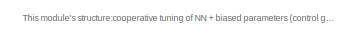
[diagram: root canvas - part 1/7, top center region]
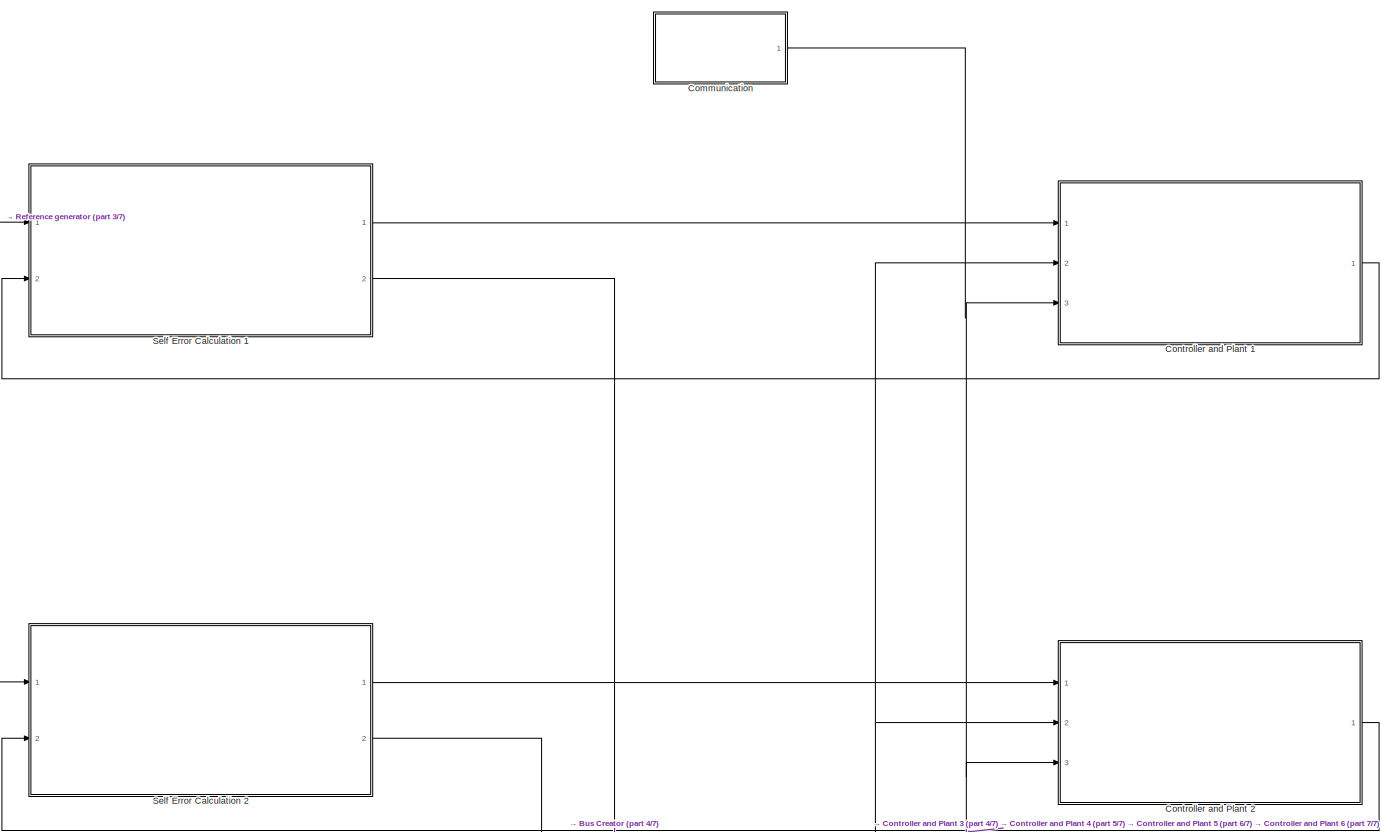
[diagram: root canvas - part 2/7, top center region]
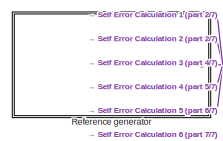
[diagram: root canvas - part 3/7, top left region]
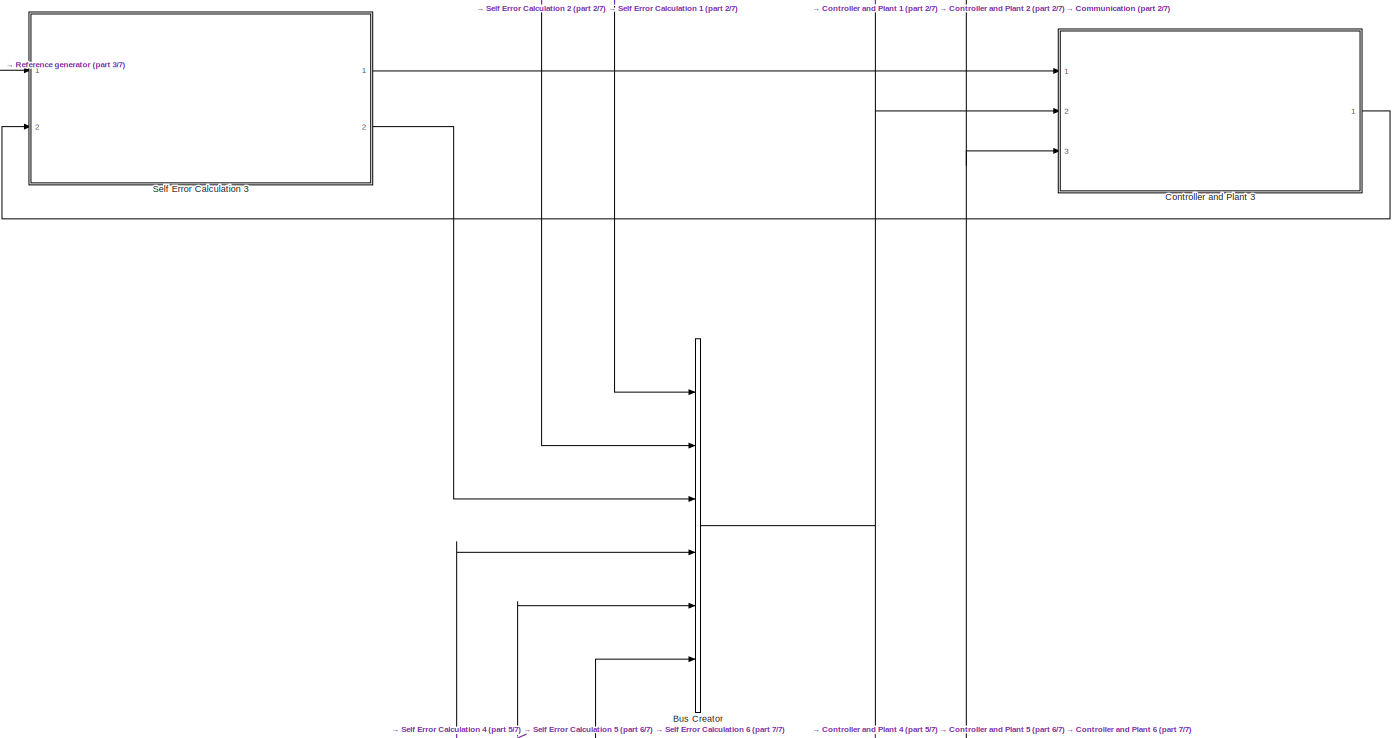
[diagram: root canvas - part 4/7, central region]
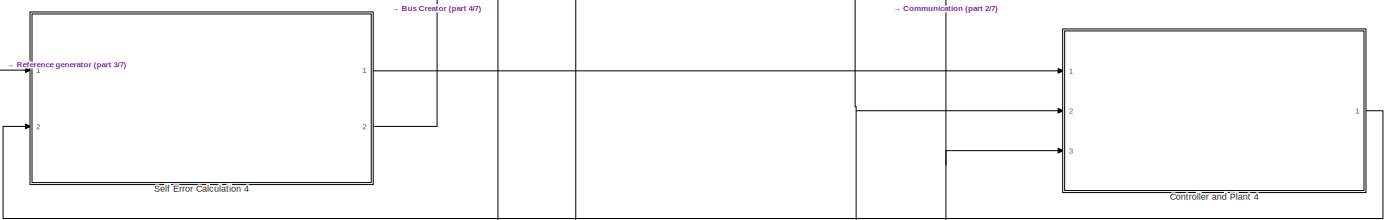
[diagram: root canvas - part 5/7, central region]
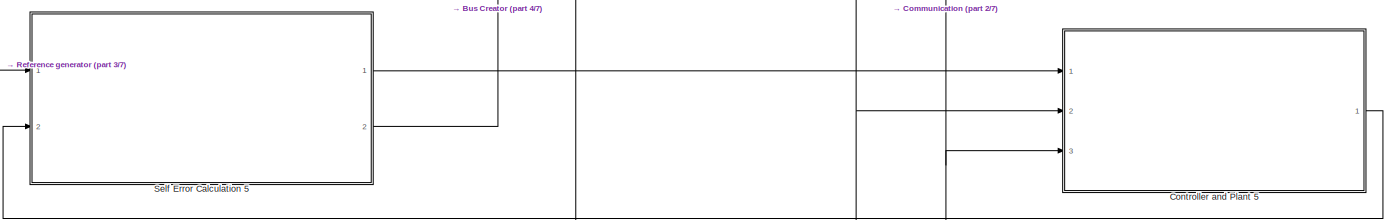
[diagram: root canvas - part 6/7, bottom center region]
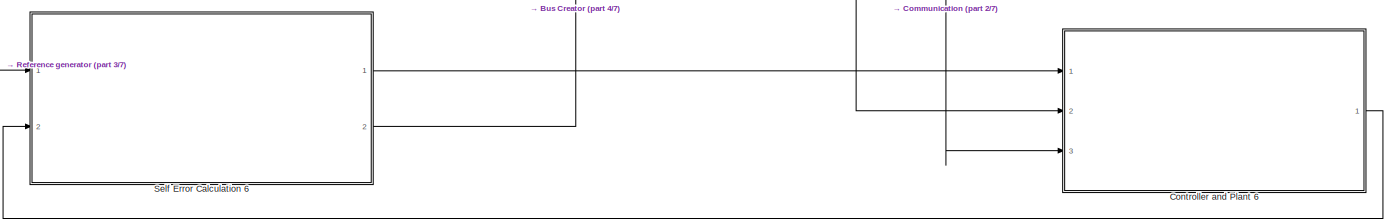
[diagram: root canvas - part 7/7, bottom center region]
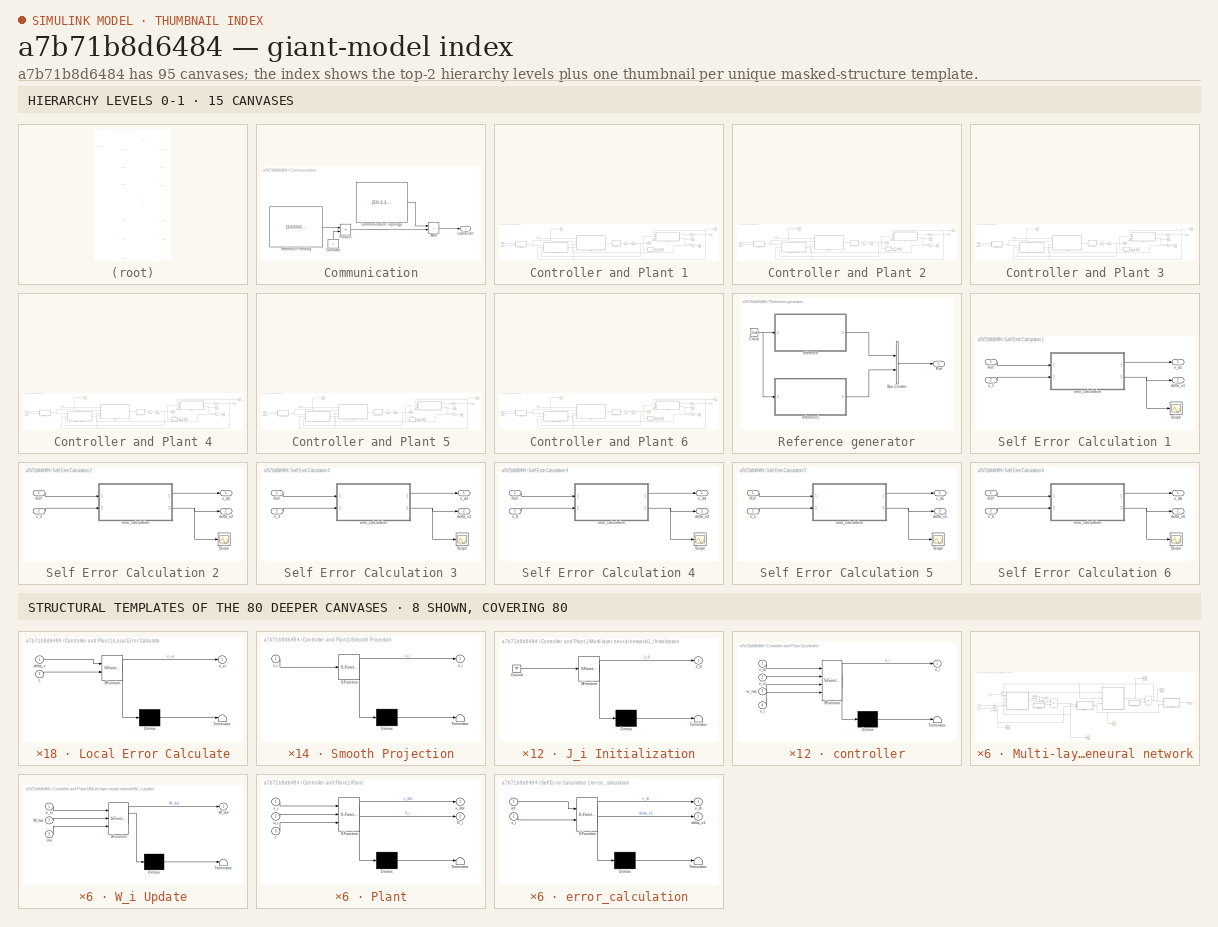
[diagram: thumbnail index - top-2 hierarchy levels (15 canvases) + 8 structural-template representatives of the remaining 80 canvases]
MODEL slx_a7b71b8d6484
KIND model
CONFIG AbsTol = auto
CONFIG EnableMultiTasking = off
CONFIG FixedStep = 0.005
CONFIG MaxStep = auto
CONFIG MinStep = auto
CONFIG RelTol = 1e-3
CONFIG SampleTimeConstraint = Unconstrained
CONFIG SolverName = ode5
CONFIG StartTime = 0.0
CONFIG StopTime = 40
BLOCK [BusCreator] Bus Creator
  DisplayOption = bar
  InheritFromInputs = on
  Inputs = 6
  Ports = [6, 1]
BLOCK [SubSystem] Communication
  Ports = [0, 1]
  RequestExecContextInheritance = off
BLOCK [Sum] Communication/Add
  IconShape = rectangular
  Ports = [2, 1]
BLOCK [Constant] Communication/Communication Topology
  Value = [2,0,-1,-1,0,0;-1,1,0,0,0,0;0,-1,2,-1,0,0;-1,0,0,3,-1,-1;0,0,0,-1,1,0;-1,0,0,0,0,1]
  VectorParams1D = off
BLOCK [Constant] Communication/Constant
  NameLocation = right
  Value = 2
  VectorParams1D = off
BLOCK [Outport] Communication/Laplacian
  VectorParamsAs1DForOutWhenUnconnected = off
BLOCK [Product] Communication/Product
  Ports = [2, 1]
BLOCK [Constant] Communication/Reference Feeding
  Value = [1,0,0,0,0,0;0,1,0,0,0,0;0,0,1,0,0,0;0,0,0,1,0,0;0,0,0,0,1,0;0,0,0,0,0,1]
  VectorParams1D = off
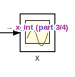
[diagram: Controller and Plant 1 - part 1/4, top right region]
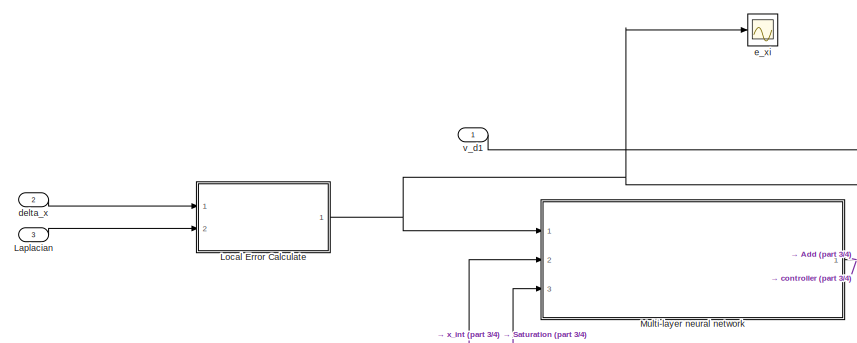
[diagram: Controller and Plant 1 - part 2/4, left side, full height]
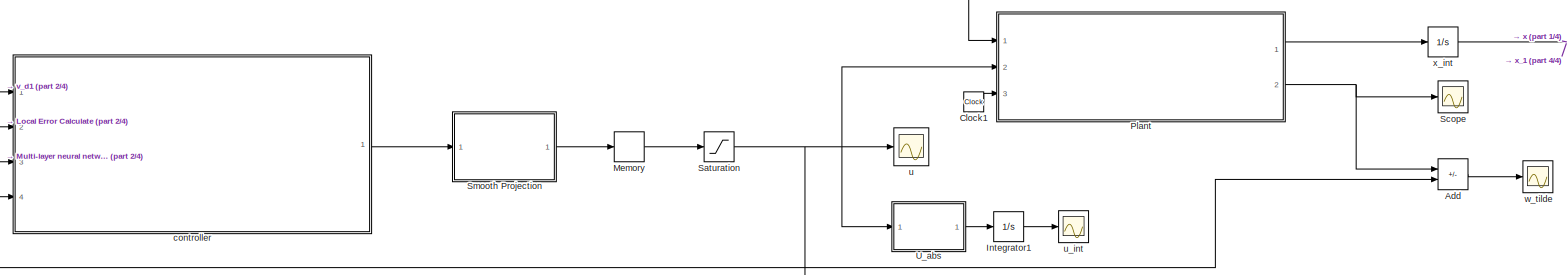
[diagram: Controller and Plant 1 - part 3/4, central region]
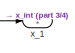
[diagram: Controller and Plant 1 - part 4/4, top right region]
BLOCK [SubSystem] Controller and Plant 1
  Ports = [3, 1]
  RequestExecContextInheritance = off
BLOCK [Sum] Controller and Plant 1/Add
  IconShape = rectangular
  Inputs = +-
  Ports = [2, 1]
BLOCK [Clock] Controller and Plant 1/Clock1
BLOCK [Integrator] Controller and Plant 1/Integrator1
  Ports = [1, 1]
BLOCK [Inport] Controller and Plant 1/Laplacian
  Port = 3
BLOCK [SubSystem] Controller and Plant 1/Local Error Calculate
  ErrorFcn = Stateflow.Translate.translate
  PermitHierarchicalResolution = ExplicitOnly
  Ports = [2, 1]
  RequestExecContextInheritance = off
  SFBlockType = MATLAB Function
  TreatAsAtomicUnit = on
BLOCK [Demux] Controller and Plant 1/Local Error Calculate/ Demux 
  Outputs = 1
  Ports = [1, 1]
BLOCK [S-Function] Controller and Plant 1/Local Error Calculate/ SFunction 
  EnableBusSupport = off
  FunctionName = sf_sfun
  PortCounts = [2 2]
  Ports = [2, 2]
  SFcnIsStateOwnerBlock = off
  SFunctionDeploymentMode = off
  Tag = Stateflow S-Function 13
BLOCK [Terminator] Controller and Plant 1/Local Error Calculate/ Terminator 
BLOCK [Inport] Controller and Plant 1/Local Error Calculate/L
  Port = 2
BLOCK [Inport] Controller and Plant 1/Local Error Calculate/delta_x
BLOCK [Outport] Controller and Plant 1/Local Error Calculate/e_xi
BLOCK [Memory] Controller and Plant 1/Memory
  InitialCondition = [0;0;0]
BLOCK [SubSystem] Controller and Plant 1/Multi-layer neural network
  Ports = [3, 1]
  RequestExecContextInheritance = off
BLOCK [BusCreator] Controller and Plant 1/Multi-layer neural network/Bus Creator
  DisplayOption = bar
  InheritFromInputs = on
  Inputs = 2
  Ports = [2, 1]
BLOCK [Constant] Controller and Plant 1/Multi-layer neural network/Constant
  Value = zeros(6,5)
BLOCK [SubSystem] Controller and Plant 1/Multi-layer neural network/First layer
  ErrorFcn = Stateflow.Translate.translate
  PermitHierarchicalResolution = ExplicitOnly
  Ports = [2, 1]
  RequestExecContextInheritance = off
  SFBlockType = MATLAB Function
  TreatAsAtomicUnit = on
BLOCK [Demux] Controller and Plant 1/Multi-layer neural network/First layer/ Demux 
  Outputs = 1
  Ports = [1, 1]
BLOCK [S-Function] Controller and Plant 1/Multi-layer neural network/First layer/ SFunction 
  EnableBusSupport = off
  FunctionName = sf_sfun
  PortCounts = [2 2]
  Ports = [2, 2]
  SFcnIsStateOwnerBlock = off
  SFunctionDeploymentMode = off
  Tag = Stateflow S-Function 10
BLOCK [Terminator] Controller and Plant 1/Multi-layer neural network/First layer/ Terminator 
BLOCK [Inport] Controller and Plant 1/Multi-layer neural network/First layer/J_hat
BLOCK [Outport] Controller and Plant 1/Multi-layer neural network/First layer/mu
BLOCK [Inport] Controller and Plant 1/Multi-layer neural network/First layer/x_bar
  Port = 2
BLOCK [Scope] Controller and Plant 1/Multi-layer neural network/J_hat
  Floating = off
  NumInputPorts = 1
  Ports = [1]
  ScopeSpecificationString = Simulink.scopes.TimeScopeBlockCfg('CurrentConfiguration', extmgr.ConfigurationSet(extmgr.Configuration('Core','General UI',true),extmgr.Configuration('Core','Source UI',true),extmgr.Configuration('Sources','WiredSimulink',true,'DataLoggingVariableName','J_hat'),extmgr.Configuration('Visuals','Time Domain',true,'SerializedDisplays',{struct('MinYLimReal','-0.08115','MaxYLimReal','1.08745','YLabelRea...<+1684ch>  <repeated x6 — deduplicated; at blocks: J_hat>
BLOCK [Integrator] Controller and Plant 1/Multi-layer neural network/J_i
  InitialConditionSource = external
  Ports = [2, 1]
BLOCK [SubSystem] Controller and Plant 1/Multi-layer neural network/J_i Initialization
  ErrorFcn = Stateflow.Translate.translate
  PermitHierarchicalResolution = ExplicitOnly
  Ports = [0, 1]
  RequestExecContextInheritance = off
  SFBlockType = MATLAB Function
  TreatAsAtomicUnit = on
BLOCK [Demux] Controller and Plant 1/Multi-layer neural network/J_i Initialization/ Demux 
  Outputs = 1
  Ports = [1, 1]
BLOCK [Ground] Controller and Plant 1/Multi-layer neural network/J_i Initialization/ Ground 
BLOCK [S-Function] Controller and Plant 1/Multi-layer neural network/J_i Initialization/ SFunction 
  EnableBusSupport = off
  FunctionName = sf_sfun
  PortCounts = [1 2]
  Ports = [1, 2]
  SFcnIsStateOwnerBlock = off
  SFunctionDeploymentMode = off
  Tag = Stateflow S-Function 6
BLOCK [Terminator] Controller and Plant 1/Multi-layer neural network/J_i Initialization/ Terminator 
BLOCK [Outport] Controller and Plant 1/Multi-layer neural network/J_i Initialization/J_0
BLOCK [SubSystem] Controller and Plant 1/Multi-layer neural network/J_i Update
  ErrorFcn = Stateflow.Translate.translate
  PermitHierarchicalResolution = ExplicitOnly
  Ports = [4, 1]
  RequestExecContextInheritance = off
  SFBlockType = MATLAB Function
  TreatAsAtomicUnit = on
BLOCK [Demux] Controller and Plant 1/Multi-layer neural network/J_i Update/ Demux 
  Outputs = 1
  Ports = [1, 1]
BLOCK [S-Function] Controller and Plant 1/Multi-layer neural network/J_i Update/ SFunction 
  EnableBusSupport = off
  FunctionName = sf_sfun
  PortCounts = [4 2]
  Ports = [4, 2]
  SFcnIsStateOwnerBlock = off
  SFunctionDeploymentMode = off
  Tag = Stateflow S-Function 8
BLOCK [Terminator] Controller and Plant 1/Multi-layer neural network/J_i Update/ Terminator 
BLOCK [Outport] Controller and Plant 1/Multi-layer neural network/J_i Update/J_dot
BLOCK [Inport] Controller and Plant 1/Multi-layer neural network/J_i Update/J_hat
  Port = 3
BLOCK [Inport] Controller and Plant 1/Multi-layer neural network/J_i Update/W_hat
  Port = 2
BLOCK [Inport] Controller and Plant 1/Multi-layer neural network/J_i Update/e_xi
BLOCK [Inport] Controller and Plant 1/Multi-layer neural network/J_i Update/x_bar
  Port = 4
BLOCK [ManualSwitch] Controller and Plant 1/Multi-layer neural network/Manual Switch
  CurrentSetting = 0
BLOCK [Scope] Controller and Plant 1/Multi-layer neural network/Scope
  Floating = off
  NumInputPorts = 1
  Ports = [1]
  ScopeSpecificationString = Simulink.scopes.TimeScopeBlockCfg('CurrentConfiguration', extmgr.ConfigurationSet(extmgr.Configuration('Core','General UI',true),extmgr.Configuration('Core','Source UI',true),extmgr.Configuration('Sources','WiredSimulink',true,'DataLoggingVariableName','ScopeData1'),extmgr.Configuration('Visuals','Time Domain',true,'SerializedDisplays',{struct('MinYLimReal','-1.1342','MaxYLimReal','7.79753','YLabe...<+1403ch>  <repeated x6 — deduplicated; at blocks: Scope>
BLOCK [Scope] Controller and Plant 1/Multi-layer neural network/Scope1
  Floating = off
  NumInputPorts = 1
  Ports = [1]
  ScopeSpecificationString = Simulink.scopes.TimeScopeBlockCfg('CurrentConfiguration', extmgr.ConfigurationSet(extmgr.Configuration('Core','General UI',true),extmgr.Configuration('Core','Source UI',true),extmgr.Configuration('Sources','WiredSimulink',true,'DataLoggingVariableName','ScopeData5'),extmgr.Configuration('Visuals','Time Domain',true,'SerializedDisplays',{struct('MinYLimReal','-4.74986','MaxYLimReal','3.09617','YLab...<+1588ch>  <repeated x6 — deduplicated; at blocks: Scope1>
BLOCK [SubSystem] Controller and Plant 1/Multi-layer neural network/Second layer
  ErrorFcn = Stateflow.Translate.translate
  PermitHierarchicalResolution = ExplicitOnly
  Ports = [2, 1]
  RequestExecContextInheritance = off
  SFBlockType = MATLAB Function
  TreatAsAtomicUnit = on
BLOCK [Demux] Controller and Plant 1/Multi-layer neural network/Second layer/ Demux 
  Outputs = 1
  Ports = [1, 1]
BLOCK [S-Function] Controller and Plant 1/Multi-layer neural network/Second layer/ SFunction 
  EnableBusSupport = off
  FunctionName = sf_sfun
  PortCounts = [2 2]
  Ports = [2, 2]
  SFcnIsStateOwnerBlock = off
  SFunctionDeploymentMode = off
  Tag = Stateflow S-Function 11
BLOCK [Terminator] Controller and Plant 1/Multi-layer neural network/Second layer/ Terminator 
BLOCK [Inport] Controller and Plant 1/Multi-layer neural network/Second layer/W_hat
BLOCK [Inport] Controller and Plant 1/Multi-layer neural network/Second layer/mu
  Port = 2
BLOCK [Outport] Controller and Plant 1/Multi-layer neural network/Second layer/w_hat
BLOCK [Scope] Controller and Plant 1/Multi-layer neural network/W_hat
  Floating = off
  NumInputPorts = 1
  Ports = [1]
  ScopeSpecificationString = Simulink.scopes.TimeScopeBlockCfg('CurrentConfiguration', extmgr.ConfigurationSet(extmgr.Configuration('Core','General UI',true),extmgr.Configuration('Core','Source UI',true),extmgr.Configuration('Sources','WiredSimulink',true,'DataLoggingVariableName','ScopeData2'),extmgr.Configuration('Visuals','Time Domain',true,'SerializedDisplays',{struct('MinYLimReal','-0.74764','MaxYLimReal','0.61798','YLab...<+1527ch>  <repeated x6 — deduplicated; at blocks: W_hat>
BLOCK [Integrator] Controller and Plant 1/Multi-layer neural network/W_i
  InitialConditionSource = external
  Ports = [2, 1]
BLOCK [SubSystem] Controller and Plant 1/Multi-layer neural network/W_i Initialization
  ErrorFcn = Stateflow.Translate.translate
  PermitHierarchicalResolution = ExplicitOnly
  Ports = [0, 1]
  RequestExecContextInheritance = off
  SFBlockType = MATLAB Function
  TreatAsAtomicUnit = on
BLOCK [Demux] Controller and Plant 1/Multi-layer neural network/W_i Initialization/ Demux 
  Outputs = 1
  Ports = [1, 1]
BLOCK [Ground] Controller and Plant 1/Multi-layer neural network/W_i Initialization/ Ground 
BLOCK [S-Function] Controller and Plant 1/Multi-layer neural network/W_i Initialization/ SFunction 
  EnableBusSupport = off
  FunctionName = sf_sfun
  PortCounts = [1 2]
  Ports = [1, 2]
  SFcnIsStateOwnerBlock = off
  SFunctionDeploymentMode = off
  Tag = Stateflow S-Function 7
BLOCK [Terminator] Controller and Plant 1/Multi-layer neural network/W_i Initialization/ Terminator 
BLOCK [Outport] Controller and Plant 1/Multi-layer neural network/W_i Initialization/W_0
BLOCK [SubSystem] Controller and Plant 1/Multi-layer neural network/W_i Update
  ErrorFcn = Stateflow.Translate.translate
  PermitHierarchicalResolution = ExplicitOnly
  Ports = [3, 1]
  RequestExecContextInheritance = off
  SFBlockType = MATLAB Function
  TreatAsAtomicUnit = on
BLOCK [Demux] Controller and Plant 1/Multi-layer neural network/W_i Update/ Demux 
  Outputs = 1
  Ports = [1, 1]
BLOCK [S-Function] Controller and Plant 1/Multi-layer neural network/W_i Update/ SFunction 
  EnableBusSupport = off
  FunctionName = sf_sfun
  PortCounts = [3 2]
  Ports = [3, 2]
  SFcnIsStateOwnerBlock = off
  SFunctionDeploymentMode = off
  Tag = Stateflow S-Function 9
BLOCK [Terminator] Controller and Plant 1/Multi-layer neural network/W_i Update/ Terminator 
BLOCK [Outport] Controller and Plant 1/Multi-layer neural network/W_i Update/W_dot
BLOCK [Inport] Controller and Plant 1/Multi-layer neural network/W_i Update/W_hat
  Port = 2
BLOCK [Inport] Controller and Plant 1/Multi-layer neural network/W_i Update/e_xi
BLOCK [Inport] Controller and Plant 1/Multi-layer neural network/W_i Update/mu
  Port = 3
BLOCK [Inport] Controller and Plant 1/Multi-layer neural network/e_xi
BLOCK [Scope] Controller and Plant 1/Multi-layer neural network/mu
  Floating = off
  NumInputPorts = 1
  Ports = [1]
  ScopeSpecificationString = Simulink.scopes.TimeScopeBlockCfg('CurrentConfiguration', extmgr.ConfigurationSet(extmgr.Configuration('Core','General UI',true),extmgr.Configuration('Core','Source UI',true),extmgr.Configuration('Sources','WiredSimulink',true,'DataLoggingVariableName','mu','DataLoggingSaveFormat','Array'),extmgr.Configuration('Visuals','Time Domain',true,'SerializedDisplays',{struct('MinYLimReal','-1.24779','MaxY...<+1485ch>
BLOCK [Inport] Controller and Plant 1/Multi-layer neural network/u_i
  Port = 3
  PortDimensions = [3,1]
BLOCK [Outport] Controller and Plant 1/Multi-layer neural network/w_hat
BLOCK [Inport] Controller and Plant 1/Multi-layer neural network/x_i
  Port = 2
  PortDimensions = [3,1]
BLOCK [SubSystem] Controller and Plant 1/Plant
  ErrorFcn = Stateflow.Translate.translate
  PermitHierarchicalResolution = ExplicitOnly
  Ports = [3, 2]
  RequestExecContextInheritance = off
  SFBlockType = MATLAB Function
  TreatAsAtomicUnit = on
BLOCK [Demux] Controller and Plant 1/Plant/ Demux 
  Outputs = 1
  Ports = [1, 1]
BLOCK [S-Function] Controller and Plant 1/Plant/ SFunction 
  EnableBusSupport = off
  FunctionName = sf_sfun
  PortCounts = [3 3]
  Ports = [3, 3]
  SFcnIsStateOwnerBlock = off
  SFunctionDeploymentMode = off
  Tag = Stateflow S-Function 2
BLOCK [Terminator] Controller and Plant 1/Plant/ Terminator 
BLOCK [Outport] Controller and Plant 1/Plant/E_i
  Port = 2
BLOCK [Inport] Controller and Plant 1/Plant/t
  Port = 3
BLOCK [Inport] Controller and Plant 1/Plant/u_i
  Port = 2
BLOCK [Outport] Controller and Plant 1/Plant/x_dot
BLOCK [Inport] Controller and Plant 1/Plant/x_i
BLOCK [Saturate] Controller and Plant 1/Saturation
  LowerLimit = LowerLimit
  UpperLimit = UpperLimit
BLOCK [Scope] Controller and Plant 1/Scope
  Floating = off
  NumInputPorts = 1
  Ports = [1]
  ScopeSpecificationString = Simulink.scopes.TimeScopeBlockCfg('CurrentConfiguration', extmgr.ConfigurationSet(extmgr.Configuration('Core','General UI',true),extmgr.Configuration('Core','Source UI',true),extmgr.Configuration('Sources','WiredSimulink',true,'DataLoggingVariableName','ScopeData1'),extmgr.Configuration('Visuals','Time Domain',true,'SerializedDisplays',{struct('MinYLimReal','-0.26875','MaxYLimReal','0.91875','YLab...<+1378ch>  <repeated x5 — deduplicated; at blocks: Scope>
BLOCK [SubSystem] Controller and Plant 1/Smooth Projection
  ErrorFcn = Stateflow.Translate.translate
  PermitHierarchicalResolution = ExplicitOnly
  Ports = [1, 1]
  RequestExecContextInheritance = off
  SFBlockType = MATLAB Function
  TreatAsAtomicUnit = on
BLOCK [Demux] Controller and Plant 1/Smooth Projection/ Demux 
  Outputs = 1
  Ports = [1, 1]
BLOCK [S-Function] Controller and Plant 1/Smooth Projection/ SFunction 
  EnableBusSupport = off
  FunctionName = sf_sfun
  PortCounts = [1 2]
  Ports = [1, 2]
  SFcnIsStateOwnerBlock = off
  SFunctionDeploymentMode = off
  Tag = Stateflow S-Function 12
BLOCK [Terminator] Controller and Plant 1/Smooth Projection/ Terminator 
BLOCK [Outport] Controller and Plant 1/Smooth Projection/u_i
BLOCK [Inport] Controller and Plant 1/Smooth Projection/u_i 
BLOCK [SubSystem] Controller and Plant 1/U_abs
  ErrorFcn = Stateflow.Translate.translate
  PermitHierarchicalResolution = ExplicitOnly
  Ports = [1, 1]
  RequestExecContextInheritance = off
  SFBlockType = MATLAB Function
  TreatAsAtomicUnit = on
BLOCK [Demux] Controller and Plant 1/U_abs/ Demux 
  Outputs = 1
  Ports = [1, 1]
BLOCK [S-Function] Controller and Plant 1/U_abs/ SFunction 
  EnableBusSupport = off
  FunctionName = sf_sfun
  PortCounts = [1 2]
  Ports = [1, 2]
  SFcnIsStateOwnerBlock = off
  SFunctionDeploymentMode = off
  Tag = Stateflow S-Function 75
BLOCK [Terminator] Controller and Plant 1/U_abs/ Terminator 
BLOCK [Inport] Controller and Plant 1/U_abs/u_i
BLOCK [Outport] Controller and Plant 1/U_abs/u_int
BLOCK [SubSystem] Controller and Plant 1/controller
  ErrorFcn = Stateflow.Translate.translate
  PermitHierarchicalResolution = ExplicitOnly
  Ports = [4, 1]
  RequestExecContextInheritance = off
  SFBlockType = MATLAB Function
  TreatAsAtomicUnit = on
BLOCK [Demux] Controller and Plant 1/controller/ Demux 
  Outputs = 1
  Ports = [1, 1]
BLOCK [S-Function] Controller and Plant 1/controller/ SFunction 
  EnableBusSupport = off
  FunctionName = sf_sfun
  PortCounts = [4 2]
  Ports = [4, 2]
  SFcnIsStateOwnerBlock = off
  SFunctionDeploymentMode = off
  Tag = Stateflow S-Function 1
BLOCK [Terminator] Controller and Plant 1/controller/ Terminator 
BLOCK [Inport] Controller and Plant 1/controller/e_xi
  Port = 2
BLOCK [Outport] Controller and Plant 1/controller/u_i
BLOCK [Inport] Controller and Plant 1/controller/v_di
BLOCK [Inport] Controller and Plant 1/controller/w_hat
  Port = 3
BLOCK [Inport] Controller and Plant 1/controller/x_i
  Port = 4
BLOCK [Inport] Controller and Plant 1/delta_x
  Port = 2
BLOCK [Scope] Controller and Plant 1/e_xi
  Floating = off
  NumInputPorts = 1
  Ports = [1]
  ScopeSpecificationString = Simulink.scopes.TimeScopeBlockCfg('CurrentConfiguration', extmgr.ConfigurationSet(extmgr.Configuration('Core','General UI',true),extmgr.Configuration('Core','Source UI',true),extmgr.Configuration('Sources','WiredSimulink',true,'DataLoggingVariableName','e_x1_1','DataLogging',true,'DataLoggingSaveFormat','Array'),extmgr.Configuration('Visuals','Time Domain',true,'SerializedDisplays',{struct('MinYLi...<+1572ch>
BLOCK [Scope] Controller and Plant 1/u
  Floating = off
  NumInputPorts = 1
  Ports = [1]
  ScopeSpecificationString = Simulink.scopes.TimeScopeBlockCfg('CurrentConfiguration', extmgr.ConfigurationSet(extmgr.Configuration('Core','General UI',true),extmgr.Configuration('Core','Source UI',true),extmgr.Configuration('Sources','WiredSimulink',true,'DataLoggingVariableName','u_1_1','DataLogging',true,'DataLoggingSaveFormat','Array'),extmgr.Configuration('Visuals','Time Domain',true,'SerializedDisplays',{struct('MinYLim...<+1522ch>
BLOCK [Scope] Controller and Plant 1/u_int
  Floating = off
  NumInputPorts = 1
  Ports = [1]
  ScopeSpecificationString = Simulink.scopes.TimeScopeBlockCfg('CurrentConfiguration', extmgr.ConfigurationSet(extmgr.Configuration('Core','General UI',true),extmgr.Configuration('Core','Source UI',true),extmgr.Configuration('Sources','WiredSimulink',true,'DataLoggingVariableName','u_int_1_1','DataLogging',true,'DataLoggingSaveFormat','Array'),extmgr.Configuration('Visuals','Time Domain',true,'SerializedDisplays',{struct('Min...<+1367ch>
BLOCK [Inport] Controller and Plant 1/v_d1
BLOCK [Scope] Controller and Plant 1/w_tilde
  Floating = off
  NumInputPorts = 1
  Ports = [1]
  ScopeSpecificationString = Simulink.scopes.TimeScopeBlockCfg('CurrentConfiguration', extmgr.ConfigurationSet(extmgr.Configuration('Core','General UI',true),extmgr.Configuration('Core','Source UI',true),extmgr.Configuration('Sources','WiredSimulink',true,'DataLoggingVariableName','w_tilde_1_1','DataLogging',true,'DataLoggingSaveFormat','Array'),extmgr.Configuration('Visuals','Time Domain',true,'SerializedDisplays',{struct('M...<+1542ch>
BLOCK [Scope] Controller and Plant 1/x
  Floating = off
  NumInputPorts = 1
  Ports = [1]
  ScopeSpecificationString = Simulink.scopes.TimeScopeBlockCfg('CurrentConfiguration', extmgr.ConfigurationSet(extmgr.Configuration('Core','General UI',true),extmgr.Configuration('Core','Source UI',true),extmgr.Configuration('Sources','WiredSimulink',true,'DataLoggingVariableName','x_1_1','DataLogging',true,'DataLoggingSaveFormat','Array'),extmgr.Configuration('Visuals','Time Domain',true,'SerializedDisplays',{struct('MinYLim...<+1544ch>
BLOCK [Outport] Controller and Plant 1/x_1
BLOCK [Integrator] Controller and Plant 1/x_int
  InitialCondition = InitialCondition
  Ports = [1, 1]
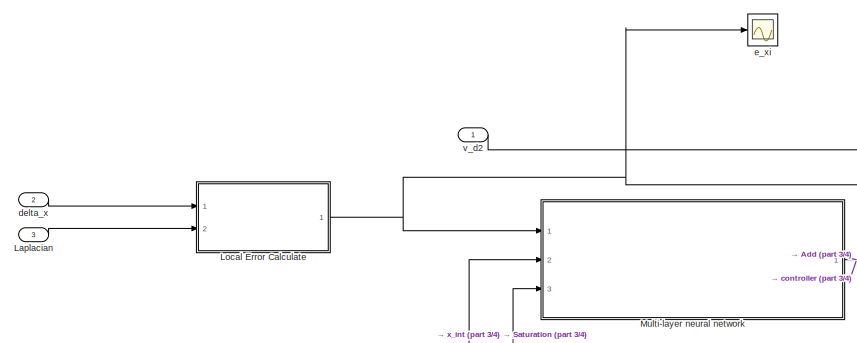
[diagram: Controller and Plant 2 - part 1/4, left side, full height]
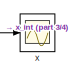
[diagram: Controller and Plant 2 - part 2/4, top right region]
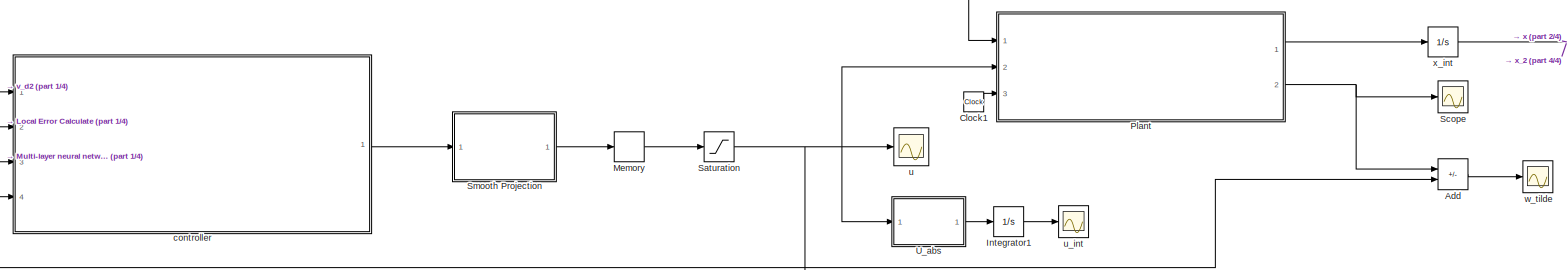
[diagram: Controller and Plant 2 - part 3/4, central region]
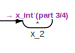
[diagram: Controller and Plant 2 - part 4/4, top right region]
BLOCK [SubSystem] Controller and Plant 2
  Ports = [3, 1]
  RequestExecContextInheritance = off
BLOCK [Sum] Controller and Plant 2/Add
  IconShape = rectangular
  Inputs = +-
  Ports = [2, 1]
BLOCK [Clock] Controller and Plant 2/Clock1
BLOCK [Integrator] Controller and Plant 2/Integrator1
  Ports = [1, 1]
BLOCK [Inport] Controller and Plant 2/Laplacian
  Port = 3
BLOCK [SubSystem] Controller and Plant 2/Local Error Calculate
  ErrorFcn = Stateflow.Translate.translate
  PermitHierarchicalResolution = ExplicitOnly
  Ports = [2, 1]
  RequestExecContextInheritance = off
  SFBlockType = MATLAB Function
  TreatAsAtomicUnit = on
BLOCK [Demux] Controller and Plant 2/Local Error Calculate/ Demux 
  Outputs = 1
  Ports = [1, 1]
BLOCK [S-Function] Controller and Plant 2/Local Error Calculate/ SFunction 
  EnableBusSupport = off
  FunctionName = sf_sfun
  PortCounts = [2 2]
  Ports = [2, 2]
  SFcnIsStateOwnerBlock = off
  SFunctionDeploymentMode = off
  Tag = Stateflow S-Function 14
BLOCK [Terminator] Controller and Plant 2/Local Error Calculate/ Terminator 
BLOCK [Inport] Controller and Plant 2/Local Error Calculate/L
  Port = 2
BLOCK [Inport] Controller and Plant 2/Local Error Calculate/delta_x
BLOCK [Outport] Controller and Plant 2/Local Error Calculate/e_xi
BLOCK [Memory] Controller and Plant 2/Memory
  InitialCondition = [0;0;0]
BLOCK [SubSystem] Controller and Plant 2/Multi-layer neural network
  Ports = [3, 1]
  RequestExecContextInheritance = off
BLOCK [BusCreator] Controller and Plant 2/Multi-layer neural network/Bus Creator
  DisplayOption = bar
  InheritFromInputs = on
  Inputs = 2
  Ports = [2, 1]
BLOCK [Constant] Controller and Plant 2/Multi-layer neural network/Constant
  Value = zeros(6,5)
BLOCK [SubSystem] Controller and Plant 2/Multi-layer neural network/First layer
  ErrorFcn = Stateflow.Translate.translate
  PermitHierarchicalResolution = ExplicitOnly
  Ports = [2, 1]
  RequestExecContextInheritance = off
  SFBlockType = MATLAB Function
  TreatAsAtomicUnit = on
BLOCK [Demux] Controller and Plant 2/Multi-layer neural network/First layer/ Demux 
  Outputs = 1
  Ports = [1, 1]
BLOCK [S-Function] Controller and Plant 2/Multi-layer neural network/First layer/ SFunction 
  EnableBusSupport = off
  FunctionName = sf_sfun
  PortCounts = [2 2]
  Ports = [2, 2]
  SFcnIsStateOwnerBlock = off
  SFunctionDeploymentMode = off
  Tag = Stateflow S-Function 15
BLOCK [Terminator] Controller and Plant 2/Multi-layer neural network/First layer/ Terminator 
BLOCK [Inport] Controller and Plant 2/Multi-layer neural network/First layer/J_hat
BLOCK [Outport] Controller and Plant 2/Multi-layer neural network/First layer/mu
BLOCK [Inport] Controller and Plant 2/Multi-layer neural network/First layer/x_bar
  Port = 2
BLOCK [Scope] Controller and Plant 2/Multi-layer neural network/J_hat
  Floating = off
  NumInputPorts = 1
  Ports = [1]
BLOCK [Integrator] Controller and Plant 2/Multi-layer neural network/J_i
  InitialConditionSource = external
  Ports = [2, 1]
BLOCK [SubSystem] Controller and Plant 2/Multi-layer neural network/J_i Initialization
  ErrorFcn = Stateflow.Translate.translate
  PermitHierarchicalResolution = ExplicitOnly
  Ports = [0, 1]
  RequestExecContextInheritance = off
  SFBlockType = MATLAB Function
  TreatAsAtomicUnit = on
BLOCK [Demux] Controller and Plant 2/Multi-layer neural network/J_i Initialization/ Demux 
  Outputs = 1
  Ports = [1, 1]
BLOCK [Ground] Controller and Plant 2/Multi-layer neural network/J_i Initialization/ Ground 
BLOCK [S-Function] Controller and Plant 2/Multi-layer neural network/J_i Initialization/ SFunction 
  EnableBusSupport = off
  FunctionName = sf_sfun
  PortCounts = [1 2]
  Ports = [1, 2]
  SFcnIsStateOwnerBlock = off
  SFunctionDeploymentMode = off
  Tag = Stateflow S-Function 16
BLOCK [Terminator] Controller and Plant 2/Multi-layer neural network/J_i Initialization/ Terminator 
BLOCK [Outport] Controller and Plant 2/Multi-layer neural network/J_i Initialization/J_0
BLOCK [SubSystem] Controller and Plant 2/Multi-layer neural network/J_i Update
  ErrorFcn = Stateflow.Translate.translate
  PermitHierarchicalResolution = ExplicitOnly
  Ports = [4, 1]
  RequestExecContextInheritance = off
  SFBlockType = MATLAB Function
  TreatAsAtomicUnit = on
BLOCK [Demux] Controller and Plant 2/Multi-layer neural network/J_i Update/ Demux 
  Outputs = 1
  Ports = [1, 1]
BLOCK [S-Function] Controller and Plant 2/Multi-layer neural network/J_i Update/ SFunction 
  EnableBusSupport = off
  FunctionName = sf_sfun
  PortCounts = [4 2]
  Ports = [4, 2]
  SFcnIsStateOwnerBlock = off
  SFunctionDeploymentMode = off
  Tag = Stateflow S-Function 17
BLOCK [Terminator] Controller and Plant 2/Multi-layer neural network/J_i Update/ Terminator 
BLOCK [Outport] Controller and Plant 2/Multi-layer neural network/J_i Update/J_dot
BLOCK [Inport] Controller and Plant 2/Multi-layer neural network/J_i Update/J_hat
  Port = 3
BLOCK [Inport] Controller and Plant 2/Multi-layer neural network/J_i Update/W_hat
  Port = 2
BLOCK [Inport] Controller and Plant 2/Multi-layer neural network/J_i Update/e_xi
BLOCK [Inport] Controller and Plant 2/Multi-layer neural network/J_i Update/x_bar
  Port = 4
BLOCK [ManualSwitch] Controller and Plant 2/Multi-layer neural network/Manual Switch
  CurrentSetting = 0
BLOCK [Scope] Controller and Plant 2/Multi-layer neural network/Scope
  Floating = off
  NumInputPorts = 1
  Ports = [1]
BLOCK [Scope] Controller and Plant 2/Multi-layer neural network/Scope1
  Floating = off
  NumInputPorts = 1
  Ports = [1]
BLOCK [SubSystem] Controller and Plant 2/Multi-layer neural network/Second layer
  ErrorFcn = Stateflow.Translate.translate
  PermitHierarchicalResolution = ExplicitOnly
  Ports = [2, 1]
  RequestExecContextInheritance = off
  SFBlockType = MATLAB Function
  TreatAsAtomicUnit = on
BLOCK [Demux] Controller and Plant 2/Multi-layer neural network/Second layer/ Demux 
  Outputs = 1
  Ports = [1, 1]
BLOCK [S-Function] Controller and Plant 2/Multi-layer neural network/Second layer/ SFunction 
  EnableBusSupport = off
  FunctionName = sf_sfun
  PortCounts = [2 2]
  Ports = [2, 2]
  SFcnIsStateOwnerBlock = off
  SFunctionDeploymentMode = off
  Tag = Stateflow S-Function 18
BLOCK [Terminator] Controller and Plant 2/Multi-layer neural network/Second layer/ Terminator 
BLOCK [Inport] Controller and Plant 2/Multi-layer neural network/Second layer/W_hat
BLOCK [Inport] Controller and Plant 2/Multi-layer neural network/Second layer/mu
  Port = 2
BLOCK [Outport] Controller and Plant 2/Multi-layer neural network/Second layer/w_hat
BLOCK [Scope] Controller and Plant 2/Multi-layer neural network/W_hat
  Floating = off
  NumInputPorts = 1
  Ports = [1]
BLOCK [Integrator] Controller and Plant 2/Multi-layer neural network/W_i
  InitialConditionSource = external
  Ports = [2, 1]
BLOCK [SubSystem] Controller and Plant 2/Multi-layer neural network/W_i Initialization
  ErrorFcn = Stateflow.Translate.translate
  PermitHierarchicalResolution = ExplicitOnly
  Ports = [0, 1]
  RequestExecContextInheritance = off
  SFBlockType = MATLAB Function
  TreatAsAtomicUnit = on
BLOCK [Demux] Controller and Plant 2/Multi-layer neural network/W_i Initialization/ Demux 
  Outputs = 1
  Ports = [1, 1]
BLOCK [Ground] Controller and Plant 2/Multi-layer neural network/W_i Initialization/ Ground 
BLOCK [S-Function] Controller and Plant 2/Multi-layer neural network/W_i Initialization/ SFunction 
  EnableBusSupport = off
  FunctionName = sf_sfun
  PortCounts = [1 2]
  Ports = [1, 2]
  SFcnIsStateOwnerBlock = off
  SFunctionDeploymentMode = off
  Tag = Stateflow S-Function 19
BLOCK [Terminator] Controller and Plant 2/Multi-layer neural network/W_i Initialization/ Terminator 
BLOCK [Outport] Controller and Plant 2/Multi-layer neural network/W_i Initialization/W_0
BLOCK [SubSystem] Controller and Plant 2/Multi-layer neural network/W_i Update
  ErrorFcn = Stateflow.Translate.translate
  PermitHierarchicalResolution = ExplicitOnly
  Ports = [3, 1]
  RequestExecContextInheritance = off
  SFBlockType = MATLAB Function
  TreatAsAtomicUnit = on
BLOCK [Demux] Controller and Plant 2/Multi-layer neural network/W_i Update/ Demux 
  Outputs = 1
  Ports = [1, 1]
BLOCK [S-Function] Controller and Plant 2/Multi-layer neural network/W_i Update/ SFunction 
  EnableBusSupport = off
  FunctionName = sf_sfun
  PortCounts = [3 2]
  Ports = [3, 2]
  SFcnIsStateOwnerBlock = off
  SFunctionDeploymentMode = off
  Tag = Stateflow S-Function 20
BLOCK [Terminator] Controller and Plant 2/Multi-layer neural network/W_i Update/ Terminator 
BLOCK [Outport] Controller and Plant 2/Multi-layer neural network/W_i Update/W_dot
BLOCK [Inport] Controller and Plant 2/Multi-layer neural network/W_i Update/W_hat
  Port = 2
BLOCK [Inport] Controller and Plant 2/Multi-layer neural network/W_i Update/e_xi
BLOCK [Inport] Controller and Plant 2/Multi-layer neural network/W_i Update/mu
  Port = 3
BLOCK [Inport] Controller and Plant 2/Multi-layer neural network/e_xi
BLOCK [Scope] Controller and Plant 2/Multi-layer neural network/mu
  Floating = off
  NumInputPorts = 1
  Ports = [1]
  ScopeSpecificationString = Simulink.scopes.TimeScopeBlockCfg('CurrentConfiguration', extmgr.ConfigurationSet(extmgr.Configuration('Core','General UI',true),extmgr.Configuration('Core','Source UI',true),extmgr.Configuration('Sources','WiredSimulink',true,'DataLoggingVariableName','mu','DataLoggingSaveFormat','Array'),extmgr.Configuration('Visuals','Time Domain',true,'SerializedDisplays',{struct('MinYLimReal','-1.24452','MaxY...<+1485ch>
BLOCK [Inport] Controller and Plant 2/Multi-layer neural network/u_i
  Port = 3
  PortDimensions = [3,1]
BLOCK [Outport] Controller and Plant 2/Multi-layer neural network/w_hat
BLOCK [Inport] Controller and Plant 2/Multi-layer neural network/x_i
  Port = 2
  PortDimensions = [3,1]
BLOCK [SubSystem] Controller and Plant 2/Plant
  ErrorFcn = Stateflow.Translate.translate
  PermitHierarchicalResolution = ExplicitOnly
  Ports = [3, 2]
  RequestExecContextInheritance = off
  SFBlockType = MATLAB Function
  TreatAsAtomicUnit = on
BLOCK [Demux] Controller and Plant 2/Plant/ Demux 
  Outputs = 1
  Ports = [1, 1]
BLOCK [S-Function] Controller and Plant 2/Plant/ SFunction 
  EnableBusSupport = off
  FunctionName = sf_sfun
  PortCounts = [3 3]
  Ports = [3, 3]
  SFcnIsStateOwnerBlock = off
  SFunctionDeploymentMode = off
  Tag = Stateflow S-Function 21
BLOCK [Terminator] Controller and Plant 2/Plant/ Terminator 
BLOCK [Outport] Controller and Plant 2/Plant/E_i
  Port = 2
BLOCK [Inport] Controller and Plant 2/Plant/t
  Port = 3
BLOCK [Inport] Controller and Plant 2/Plant/u_i
  Port = 2
BLOCK [Outport] Controller and Plant 2/Plant/x_dot
BLOCK [Inport] Controller and Plant 2/Plant/x_i
BLOCK [Saturate] Controller and Plant 2/Saturation
  LowerLimit = LowerLimit
  UpperLimit = UpperLimit
BLOCK [Scope] Controller and Plant 2/Scope
  Floating = off
  NumInputPorts = 1
  Ports = [1]
BLOCK [SubSystem] Controller and Plant 2/Smooth Projection
  ErrorFcn = Stateflow.Translate.translate
  PermitHierarchicalResolution = ExplicitOnly
  Ports = [1, 1]
  RequestExecContextInheritance = off
  SFBlockType = MATLAB Function
  TreatAsAtomicUnit = on
BLOCK [Demux] Controller and Plant 2/Smooth Projection/ Demux 
  Outputs = 1
  Ports = [1, 1]
BLOCK [S-Function] Controller and Plant 2/Smooth Projection/ SFunction 
  EnableBusSupport = off
  FunctionName = sf_sfun
  PortCounts = [1 2]
  Ports = [1, 2]
  SFcnIsStateOwnerBlock = off
  SFunctionDeploymentMode = off
  Tag = Stateflow S-Function 23
BLOCK [Terminator] Controller and Plant 2/Smooth Projection/ Terminator 
BLOCK [Outport] Controller and Plant 2/Smooth Projection/u_i
BLOCK [Inport] Controller and Plant 2/Smooth Projection/u_i 
BLOCK [SubSystem] Controller and Plant 2/U_abs
  ErrorFcn = Stateflow.Translate.translate
  PermitHierarchicalResolution = ExplicitOnly
  Ports = [1, 1]
  RequestExecContextInheritance = off
  SFBlockType = MATLAB Function
  TreatAsAtomicUnit = on
BLOCK [Demux] Controller and Plant 2/U_abs/ Demux 
  Outputs = 1
  Ports = [1, 1]
BLOCK [S-Function] Controller and Plant 2/U_abs/ SFunction 
  EnableBusSupport = off
  FunctionName = sf_sfun
  PortCounts = [1 2]
  Ports = [1, 2]
  SFcnIsStateOwnerBlock = off
  SFunctionDeploymentMode = off
  Tag = Stateflow S-Function 69
BLOCK [Terminator] Controller and Plant 2/U_abs/ Terminator 
BLOCK [Inport] Controller and Plant 2/U_abs/u_i
BLOCK [Outport] Controller and Plant 2/U_abs/u_int
BLOCK [SubSystem] Controller and Plant 2/controller
  ErrorFcn = Stateflow.Translate.translate
  PermitHierarchicalResolution = ExplicitOnly
  Ports = [4, 1]
  RequestExecContextInheritance = off
  SFBlockType = MATLAB Function
  TreatAsAtomicUnit = on
BLOCK [Demux] Controller and Plant 2/controller/ Demux 
  Outputs = 1
  Ports = [1, 1]
BLOCK [S-Function] Controller and Plant 2/controller/ SFunction 
  EnableBusSupport = off
  FunctionName = sf_sfun
  PortCounts = [4 2]
  Ports = [4, 2]
  SFcnIsStateOwnerBlock = off
  SFunctionDeploymentMode = off
  Tag = Stateflow S-Function 24
BLOCK [Terminator] Controller and Plant 2/controller/ Terminator 
BLOCK [Inport] Controller and Plant 2/controller/e_xi
  Port = 2
BLOCK [Outport] Controller and Plant 2/controller/u_i
BLOCK [Inport] Controller and Plant 2/controller/v_di
BLOCK [Inport] Controller and Plant 2/controller/w_hat
  Port = 3
BLOCK [Inport] Controller and Plant 2/controller/x_i
  Port = 4
BLOCK [Inport] Controller and Plant 2/delta_x
  Port = 2
BLOCK [Scope] Controller and Plant 2/e_xi
  Floating = off
  NumInputPorts = 1
  Ports = [1]
  ScopeSpecificationString = Simulink.scopes.TimeScopeBlockCfg('CurrentConfiguration', extmgr.ConfigurationSet(extmgr.Configuration('Core','General UI',true),extmgr.Configuration('Core','Source UI',true),extmgr.Configuration('Sources','WiredSimulink',true,'DataLoggingVariableName','e_x2_1','DataLogging',true,'DataLoggingSaveFormat','Array'),extmgr.Configuration('Visuals','Time Domain',true,'SerializedDisplays',{struct('MinYLi...<+1572ch>
BLOCK [Scope] Controller and Plant 2/u
  Floating = off
  NumInputPorts = 1
  Ports = [1]
  ScopeSpecificationString = Simulink.scopes.TimeScopeBlockCfg('CurrentConfiguration', extmgr.ConfigurationSet(extmgr.Configuration('Core','General UI',true),extmgr.Configuration('Core','Source UI',true),extmgr.Configuration('Sources','WiredSimulink',true,'DataLoggingVariableName','u_2_1','DataLogging',true,'DataLoggingSaveFormat','Array'),extmgr.Configuration('Visuals','Time Domain',true,'SerializedDisplays',{struct('MinYLim...<+1534ch>
BLOCK [Scope] Controller and Plant 2/u_int
  Floating = off
  NumInputPorts = 1
  Ports = [1]
  ScopeSpecificationString = Simulink.scopes.TimeScopeBlockCfg('CurrentConfiguration', extmgr.ConfigurationSet(extmgr.Configuration('Core','General UI',true),extmgr.Configuration('Core','Source UI',true),extmgr.Configuration('Sources','WiredSimulink',true,'DataLoggingVariableName','u_int_2_1','DataLogging',true,'DataLoggingSaveFormat','Array'),extmgr.Configuration('Visuals','Time Domain',true,'SerializedDisplays',{struct('Min...<+1367ch>
BLOCK [Inport] Controller and Plant 2/v_d2
BLOCK [Scope] Controller and Plant 2/w_tilde
  Floating = off
  NumInputPorts = 1
  Ports = [1]
  ScopeSpecificationString = Simulink.scopes.TimeScopeBlockCfg('CurrentConfiguration', extmgr.ConfigurationSet(extmgr.Configuration('Core','General UI',true),extmgr.Configuration('Core','Source UI',true),extmgr.Configuration('Sources','WiredSimulink',true,'DataLoggingVariableName','w_tilde_2_1','DataLogging',true,'DataLoggingSaveFormat','Array'),extmgr.Configuration('Visuals','Time Domain',true,'SerializedDisplays',{struct('M...<+1537ch>
BLOCK [Scope] Controller and Plant 2/x
  Floating = off
  NumInputPorts = 1
  Ports = [1]
  ScopeSpecificationString = Simulink.scopes.TimeScopeBlockCfg('CurrentConfiguration', extmgr.ConfigurationSet(extmgr.Configuration('Core','General UI',true),extmgr.Configuration('Core','Source UI',true),extmgr.Configuration('Sources','WiredSimulink',true,'DataLoggingVariableName','x_2','DataLogging',true,'DataLoggingSaveFormat','Array'),extmgr.Configuration('Visuals','Time Domain',true,'SerializedDisplays',{struct('MinYLimRe...<+1542ch>
BLOCK [Outport] Controller and Plant 2/x_2
BLOCK [Integrator] Controller and Plant 2/x_int
  InitialCondition = InitialCondition
  Ports = [1, 1]
BLOCK [SubSystem] Controller and Plant 3
  Ports = [3, 1]
  RequestExecContextInheritance = off
BLOCK [Sum] Controller and Plant 3/Add
  IconShape = rectangular
  Inputs = +-
  Ports = [2, 1]
BLOCK [Clock] Controller and Plant 3/Clock1
BLOCK [Integrator] Controller and Plant 3/Integrator1
  Ports = [1, 1]
BLOCK [Inport] Controller and Plant 3/Laplacian
  Port = 3
BLOCK [SubSystem] Controller and Plant 3/Local Error Calculate
  ErrorFcn = Stateflow.Translate.translate
  PermitHierarchicalResolution = ExplicitOnly
  Ports = [2, 1]
  RequestExecContextInheritance = off
  SFBlockType = MATLAB Function
  TreatAsAtomicUnit = on
BLOCK [Demux] Controller and Plant 3/Local Error Calculate/ Demux 
  Outputs = 1
  Ports = [1, 1]
BLOCK [S-Function] Controller and Plant 3/Local Error Calculate/ SFunction 
  EnableBusSupport = off
  FunctionName = sf_sfun
  PortCounts = [2 2]
  Ports = [2, 2]
  SFcnIsStateOwnerBlock = off
  SFunctionDeploymentMode = off
  Tag = Stateflow S-Function 25
BLOCK [Terminator] Controller and Plant 3/Local Error Calculate/ Terminator 
BLOCK [Inport] Controller and Plant 3/Local Error Calculate/L
  Port = 2
BLOCK [Inport] Controller and Plant 3/Local Error Calculate/delta_x
BLOCK [Outport] Controller and Plant 3/Local Error Calculate/e_xi
BLOCK [Memory] Controller and Plant 3/Memory
  InitialCondition = [0;0;0]
BLOCK [SubSystem] Controller and Plant 3/Multi-layer neural network
  Ports = [3, 1]
  RequestExecContextInheritance = off
BLOCK [BusCreator] Controller and Plant 3/Multi-layer neural network/Bus Creator
  DisplayOption = bar
  InheritFromInputs = on
  Inputs = 2
  Ports = [2, 1]
BLOCK [Constant] Controller and Plant 3/Multi-layer neural network/Constant
  Value = zeros(6,5)
BLOCK [SubSystem] Controller and Plant 3/Multi-layer neural network/First layer
  ErrorFcn = Stateflow.Translate.translate
  PermitHierarchicalResolution = ExplicitOnly
  Ports = [2, 1]
  RequestExecContextInheritance = off
  SFBlockType = MATLAB Function
  TreatAsAtomicUnit = on
BLOCK [Demux] Controller and Plant 3/Multi-layer neural network/First layer/ Demux 
  Outputs = 1
  Ports = [1, 1]
BLOCK [S-Function] Controller and Plant 3/Multi-layer neural network/First layer/ SFunction 
  EnableBusSupport = off
  FunctionName = sf_sfun
  PortCounts = [2 2]
  Ports = [2, 2]
  SFcnIsStateOwnerBlock = off
  SFunctionDeploymentMode = off
  Tag = Stateflow S-Function 26
BLOCK [Terminator] Controller and Plant 3/Multi-layer neural network/First layer/ Terminator 
BLOCK [Inport] Controller and Plant 3/Multi-layer neural network/First layer/J_hat
BLOCK [Outport] Controller and Plant 3/Multi-layer neural network/First layer/mu
BLOCK [Inport] Controller and Plant 3/Multi-layer neural network/First layer/x_bar
  Port = 2
BLOCK [Scope] Controller and Plant 3/Multi-layer neural network/J_hat
  Floating = off
  NumInputPorts = 1
  Ports = [1]
BLOCK [Integrator] Controller and Plant 3/Multi-layer neural network/J_i
  InitialConditionSource = external
  Ports = [2, 1]
BLOCK [SubSystem] Controller and Plant 3/Multi-layer neural network/J_i Initialization
  ErrorFcn = Stateflow.Translate.translate
  PermitHierarchicalResolution = ExplicitOnly
  Ports = [0, 1]
  RequestExecContextInheritance = off
  SFBlockType = MATLAB Function
  TreatAsAtomicUnit = on
BLOCK [Demux] Controller and Plant 3/Multi-layer neural network/J_i Initialization/ Demux 
  Outputs = 1
  Ports = [1, 1]
BLOCK [Ground] Controller and Plant 3/Multi-layer neural network/J_i Initialization/ Ground 
BLOCK [S-Function] Controller and Plant 3/Multi-layer neural network/J_i Initialization/ SFunction 
  EnableBusSupport = off
  FunctionName = sf_sfun
  PortCounts = [1 2]
  Ports = [1, 2]
  SFcnIsStateOwnerBlock = off
  SFunctionDeploymentMode = off
  Tag = Stateflow S-Function 27
BLOCK [Terminator] Controller and Plant 3/Multi-layer neural network/J_i Initialization/ Terminator 
BLOCK [Outport] Controller and Plant 3/Multi-layer neural network/J_i Initialization/J_0
BLOCK [SubSystem] Controller and Plant 3/Multi-layer neural network/J_i Update
  ErrorFcn = Stateflow.Translate.translate
  PermitHierarchicalResolution = ExplicitOnly
  Ports = [4, 1]
  RequestExecContextInheritance = off
  SFBlockType = MATLAB Function
  TreatAsAtomicUnit = on
BLOCK [Demux] Controller and Plant 3/Multi-layer neural network/J_i Update/ Demux 
  Outputs = 1
  Ports = [1, 1]
BLOCK [S-Function] Controller and Plant 3/Multi-layer neural network/J_i Update/ SFunction 
  EnableBusSupport = off
  FunctionName = sf_sfun
  PortCounts = [4 2]
  Ports = [4, 2]
  SFcnIsStateOwnerBlock = off
  SFunctionDeploymentMode = off
  Tag = Stateflow S-Function 28
BLOCK [Terminator] Controller and Plant 3/Multi-layer neural network/J_i Update/ Terminator 
BLOCK [Outport] Controller and Plant 3/Multi-layer neural network/J_i Update/J_dot
BLOCK [Inport] Controller and Plant 3/Multi-layer neural network/J_i Update/J_hat
  Port = 3
BLOCK [Inport] Controller and Plant 3/Multi-layer neural network/J_i Update/W_hat
  Port = 2
BLOCK [Inport] Controller and Plant 3/Multi-layer neural network/J_i Update/e_xi
BLOCK [Inport] Controller and Plant 3/Multi-layer neural network/J_i Update/x_bar
  Port = 4
BLOCK [ManualSwitch] Controller and Plant 3/Multi-layer neural network/Manual Switch
  CurrentSetting = 0
BLOCK [Scope] Controller and Plant 3/Multi-layer neural network/Scope
  Floating = off
  NumInputPorts = 1
  Ports = [1]
BLOCK [Scope] Controller and Plant 3/Multi-layer neural network/Scope1
  Floating = off
  NumInputPorts = 1
  Ports = [1]
BLOCK [SubSystem] Controller and Plant 3/Multi-layer neural network/Second layer
  ErrorFcn = Stateflow.Translate.translate
  PermitHierarchicalResolution = ExplicitOnly
  Ports = [2, 1]
  RequestExecContextInheritance = off
  SFBlockType = MATLAB Function
  TreatAsAtomicUnit = on
BLOCK [Demux] Controller and Plant 3/Multi-layer neural network/Second layer/ Demux 
  Outputs = 1
  Ports = [1, 1]
BLOCK [S-Function] Controller and Plant 3/Multi-layer neural network/Second layer/ SFunction 
  EnableBusSupport = off
  FunctionName = sf_sfun
  PortCounts = [2 2]
  Ports = [2, 2]
  SFcnIsStateOwnerBlock = off
  SFunctionDeploymentMode = off
  Tag = Stateflow S-Function 29
BLOCK [Terminator] Controller and Plant 3/Multi-layer neural network/Second layer/ Terminator 
BLOCK [Inport] Controller and Plant 3/Multi-layer neural network/Second layer/W_hat
BLOCK [Inport] Controller and Plant 3/Multi-layer neural network/Second layer/mu
  Port = 2
BLOCK [Outport] Controller and Plant 3/Multi-layer neural network/Second layer/w_hat
BLOCK [Scope] Controller and Plant 3/Multi-layer neural network/W_hat
  Floating = off
  NumInputPorts = 1
  Ports = [1]
BLOCK [Integrator] Controller and Plant 3/Multi-layer neural network/W_i
  InitialConditionSource = external
  Ports = [2, 1]
BLOCK [SubSystem] Controller and Plant 3/Multi-layer neural network/W_i Initialization
  ErrorFcn = Stateflow.Translate.translate
  PermitHierarchicalResolution = ExplicitOnly
  Ports = [0, 1]
  RequestExecContextInheritance = off
  SFBlockType = MATLAB Function
  TreatAsAtomicUnit = on
BLOCK [Demux] Controller and Plant 3/Multi-layer neural network/W_i Initialization/ Demux 
  Outputs = 1
  Ports = [1, 1]
BLOCK [Ground] Controller and Plant 3/Multi-layer neural network/W_i Initialization/ Ground 
BLOCK [S-Function] Controller and Plant 3/Multi-layer neural network/W_i Initialization/ SFunction 
  EnableBusSupport = off
  FunctionName = sf_sfun
  PortCounts = [1 2]
  Ports = [1, 2]
  SFcnIsStateOwnerBlock = off
  SFunctionDeploymentMode = off
  Tag = Stateflow S-Function 30
BLOCK [Terminator] Controller and Plant 3/Multi-layer neural network/W_i Initialization/ Terminator 
BLOCK [Outport] Controller and Plant 3/Multi-layer neural network/W_i Initialization/W_0
BLOCK [SubSystem] Controller and Plant 3/Multi-layer neural network/W_i Update
  ErrorFcn = Stateflow.Translate.translate
  PermitHierarchicalResolution = ExplicitOnly
  Ports = [3, 1]
  RequestExecContextInheritance = off
  SFBlockType = MATLAB Function
  TreatAsAtomicUnit = on
BLOCK [Demux] Controller and Plant 3/Multi-layer neural network/W_i Update/ Demux 
  Outputs = 1
  Ports = [1, 1]
BLOCK [S-Function] Controller and Plant 3/Multi-layer neural network/W_i Update/ SFunction 
  EnableBusSupport = off
  FunctionName = sf_sfun
  PortCounts = [3 2]
  Ports = [3, 2]
  SFcnIsStateOwnerBlock = off
  SFunctionDeploymentMode = off
  Tag = Stateflow S-Function 31
BLOCK [Terminator] Controller and Plant 3/Multi-layer neural network/W_i Update/ Terminator 
BLOCK [Outport] Controller and Plant 3/Multi-layer neural network/W_i Update/W_dot
BLOCK [Inport] Controller and Plant 3/Multi-layer neural network/W_i Update/W_hat
  Port = 2
BLOCK [Inport] Controller and Plant 3/Multi-layer neural network/W_i Update/e_xi
BLOCK [Inport] Controller and Plant 3/Multi-layer neural network/W_i Update/mu
  Port = 3
BLOCK [Inport] Controller and Plant 3/Multi-layer neural network/e_xi
BLOCK [Scope] Controller and Plant 3/Multi-layer neural network/mu
  Floating = off
  NumInputPorts = 1
  Ports = [1]
  ScopeSpecificationString = Simulink.scopes.TimeScopeBlockCfg('CurrentConfiguration', extmgr.ConfigurationSet(extmgr.Configuration('Core','General UI',true),extmgr.Configuration('Core','Source UI',true),extmgr.Configuration('Sources','WiredSimulink',true,'DataLoggingVariableName','mu','DataLoggingSaveFormat','Array'),extmgr.Configuration('Visuals','Time Domain',true,'SerializedDisplays',{struct('MinYLimReal','-1.24988','MaxY...<+1485ch>
BLOCK [Inport] Controller and Plant 3/Multi-layer neural network/u_i
  Port = 3
  PortDimensions = [3,1]
BLOCK [Outport] Controller and Plant 3/Multi-layer neural network/w_hat
BLOCK [Inport] Controller and Plant 3/Multi-layer neural network/x_i
  Port = 2
  PortDimensions = [3,1]
BLOCK [SubSystem] Controller and Plant 3/Plant
  ErrorFcn = Stateflow.Translate.translate
  PermitHierarchicalResolution = ExplicitOnly
  Ports = [3, 2]
  RequestExecContextInheritance = off
  SFBlockType = MATLAB Function
  TreatAsAtomicUnit = on
BLOCK [Demux] Controller and Plant 3/Plant/ Demux 
  Outputs = 1
  Ports = [1, 1]
BLOCK [S-Function] Controller and Plant 3/Plant/ SFunction 
  EnableBusSupport = off
  FunctionName = sf_sfun
  PortCounts = [3 3]
  Ports = [3, 3]
  SFcnIsStateOwnerBlock = off
  SFunctionDeploymentMode = off
  Tag = Stateflow S-Function 33
BLOCK [Terminator] Controller and Plant 3/Plant/ Terminator 
BLOCK [Outport] Controller and Plant 3/Plant/E_i
  Port = 2
BLOCK [Inport] Controller and Plant 3/Plant/t
  Port = 3
BLOCK [Inport] Controller and Plant 3/Plant/u_i
  Port = 2
BLOCK [Outport] Controller and Plant 3/Plant/x_dot
BLOCK [Inport] Controller and Plant 3/Plant/x_i
BLOCK [Saturate] Controller and Plant 3/Saturation
  LowerLimit = LowerLimit
  UpperLimit = UpperLimit
BLOCK [Scope] Controller and Plant 3/Scope
  Floating = off
  NumInputPorts = 1
  Ports = [1]
  ScopeSpecificationString = Simulink.scopes.TimeScopeBlockCfg('CurrentConfiguration', extmgr.ConfigurationSet(extmgr.Configuration('Core','General UI',true),extmgr.Configuration('Core','Source UI',true),extmgr.Configuration('Sources','WiredSimulink',true,'DataLoggingVariableName','ScopeData1'),extmgr.Configuration('Visuals','Time Domain',true,'SerializedDisplays',{struct('MinYLimReal','-0.26875','MaxYLimReal','0.91875','YLab...<+1417ch>
BLOCK [SubSystem] Controller and Plant 3/Smooth Projection
  ErrorFcn = Stateflow.Translate.translate
  PermitHierarchicalResolution = ExplicitOnly
  Ports = [1, 1]
  RequestExecContextInheritance = off
  SFBlockType = MATLAB Function
  TreatAsAtomicUnit = on
BLOCK [Demux] Controller and Plant 3/Smooth Projection/ Demux 
  Outputs = 1
  Ports = [1, 1]
BLOCK [S-Function] Controller and Plant 3/Smooth Projection/ SFunction 
  EnableBusSupport = off
  FunctionName = sf_sfun
  PortCounts = [1 2]
  Ports = [1, 2]
  SFcnIsStateOwnerBlock = off
  SFunctionDeploymentMode = off
  Tag = Stateflow S-Function 34
BLOCK [Terminator] Controller and Plant 3/Smooth Projection/ Terminator 
BLOCK [Outport] Controller and Plant 3/Smooth Projection/u_i
BLOCK [Inport] Controller and Plant 3/Smooth Projection/u_i 
BLOCK [SubSystem] Controller and Plant 3/U_abs
  ErrorFcn = Stateflow.Translate.translate
  PermitHierarchicalResolution = ExplicitOnly
  Ports = [1, 1]
  RequestExecContextInheritance = off
  SFBlockType = MATLAB Function
  TreatAsAtomicUnit = on
BLOCK [Demux] Controller and Plant 3/U_abs/ Demux 
  Outputs = 1
  Ports = [1, 1]
BLOCK [S-Function] Controller and Plant 3/U_abs/ SFunction 
  EnableBusSupport = off
  FunctionName = sf_sfun
  PortCounts = [1 2]
  Ports = [1, 2]
  SFcnIsStateOwnerBlock = off
  SFunctionDeploymentMode = off
  Tag = Stateflow S-Function 70
BLOCK [Terminator] Controller and Plant 3/U_abs/ Terminator 
BLOCK [Inport] Controller and Plant 3/U_abs/u_i
BLOCK [Outport] Controller and Plant 3/U_abs/u_int
BLOCK [SubSystem] Controller and Plant 3/controller
  ErrorFcn = Stateflow.Translate.translate
  PermitHierarchicalResolution = ExplicitOnly
  Ports = [4, 1]
  RequestExecContextInheritance = off
  SFBlockType = MATLAB Function
  TreatAsAtomicUnit = on
BLOCK [Demux] Controller and Plant 3/controller/ Demux 
  Outputs = 1
  Ports = [1, 1]
BLOCK [S-Function] Controller and Plant 3/controller/ SFunction 
  EnableBusSupport = off
  FunctionName = sf_sfun
  PortCounts = [4 2]
  Ports = [4, 2]
  SFcnIsStateOwnerBlock = off
  SFunctionDeploymentMode = off
  Tag = Stateflow S-Function 35
BLOCK [Terminator] Controller and Plant 3/controller/ Terminator 
BLOCK [Inport] Controller and Plant 3/controller/e_xi
  Port = 2
BLOCK [Outport] Controller and Plant 3/controller/u_i
BLOCK [Inport] Controller and Plant 3/controller/v_di
BLOCK [Inport] Controller and Plant 3/controller/w_hat
  Port = 3
BLOCK [Inport] Controller and Plant 3/controller/x_i
  Port = 4
BLOCK [Inport] Controller and Plant 3/delta_x
  Port = 2
BLOCK [Scope] Controller and Plant 3/e_xi
  Floating = off
  NumInputPorts = 1
  Ports = [1]
  ScopeSpecificationString = Simulink.scopes.TimeScopeBlockCfg('CurrentConfiguration', extmgr.ConfigurationSet(extmgr.Configuration('Core','General UI',true),extmgr.Configuration('Core','Source UI',true),extmgr.Configuration('Sources','WiredSimulink',true,'DataLoggingVariableName','e_x3_1','DataLogging',true,'DataLoggingSaveFormat','Array'),extmgr.Configuration('Visuals','Time Domain',true,'SerializedDisplays',{struct('MinYLi...<+1572ch>
BLOCK [Scope] Controller and Plant 3/u
  Floating = off
  NumInputPorts = 1
  Ports = [1]
  ScopeSpecificationString = Simulink.scopes.TimeScopeBlockCfg('CurrentConfiguration', extmgr.ConfigurationSet(extmgr.Configuration('Core','General UI',true),extmgr.Configuration('Core','Source UI',true),extmgr.Configuration('Sources','WiredSimulink',true,'DataLoggingVariableName','u_3_1','DataLogging',true,'DataLoggingSaveFormat','Array'),extmgr.Configuration('Visuals','Time Domain',true,'SerializedDisplays',{struct('MinYLim...<+1534ch>
BLOCK [Scope] Controller and Plant 3/u_int
  Floating = off
  NumInputPorts = 1
  Ports = [1]
  ScopeSpecificationString = Simulink.scopes.TimeScopeBlockCfg('CurrentConfiguration', extmgr.ConfigurationSet(extmgr.Configuration('Core','General UI',true),extmgr.Configuration('Core','Source UI',true),extmgr.Configuration('Sources','WiredSimulink',true,'DataLoggingVariableName','u_int_3_1','DataLogging',true,'DataLoggingSaveFormat','Array'),extmgr.Configuration('Visuals','Time Domain',true,'SerializedDisplays',{struct('Min...<+1367ch>
BLOCK [Inport] Controller and Plant 3/v_d3
BLOCK [Scope] Controller and Plant 3/w_tilde
  Floating = off
  NumInputPorts = 1
  Ports = [1]
  ScopeSpecificationString = Simulink.scopes.TimeScopeBlockCfg('CurrentConfiguration', extmgr.ConfigurationSet(extmgr.Configuration('Core','General UI',true),extmgr.Configuration('Core','Source UI',true),extmgr.Configuration('Sources','WiredSimulink',true,'DataLoggingVariableName','w_tilde_3_1','DataLogging',true,'DataLoggingSaveFormat','Array'),extmgr.Configuration('Visuals','Time Domain',true,'SerializedDisplays',{struct('M...<+1537ch>
BLOCK [Scope] Controller and Plant 3/x
  Floating = off
  NumInputPorts = 1
  Ports = [1]
  ScopeSpecificationString = Simulink.scopes.TimeScopeBlockCfg('CurrentConfiguration', extmgr.ConfigurationSet(extmgr.Configuration('Core','General UI',true),extmgr.Configuration('Core','Source UI',true),extmgr.Configuration('Sources','WiredSimulink',true,'DataLoggingVariableName','x_3_1','DataLogging',true,'DataLoggingSaveFormat','Array'),extmgr.Configuration('Visuals','Time Domain',true,'SerializedDisplays',{struct('MinYLim...<+1544ch>
BLOCK [Outport] Controller and Plant 3/x_3
BLOCK [Integrator] Controller and Plant 3/x_int
  InitialCondition = InitialCondition
  Ports = [1, 1]
BLOCK [SubSystem] Controller and Plant 4
  Ports = [3, 1]
  RequestExecContextInheritance = off
BLOCK [Sum] Controller and Plant 4/Add
  IconShape = rectangular
  Inputs = +-
  Ports = [2, 1]
BLOCK [Clock] Controller and Plant 4/Clock1
BLOCK [Integrator] Controller and Plant 4/Integrator1
  Ports = [1, 1]
BLOCK [Inport] Controller and Plant 4/Laplacian
  Port = 3
BLOCK [SubSystem] Controller and Plant 4/Local Error Calculate
  ErrorFcn = Stateflow.Translate.translate
  PermitHierarchicalResolution = ExplicitOnly
  Ports = [2, 1]
  RequestExecContextInheritance = off
  SFBlockType = MATLAB Function
  TreatAsAtomicUnit = on
BLOCK [Demux] Controller and Plant 4/Local Error Calculate/ Demux 
  Outputs = 1
  Ports = [1, 1]
BLOCK [S-Function] Controller and Plant 4/Local Error Calculate/ SFunction 
  EnableBusSupport = off
  FunctionName = sf_sfun
  PortCounts = [2 2]
  Ports = [2, 2]
  SFcnIsStateOwnerBlock = off
  SFunctionDeploymentMode = off
  Tag = Stateflow S-Function 36
BLOCK [Terminator] Controller and Plant 4/Local Error Calculate/ Terminator 
BLOCK [Inport] Controller and Plant 4/Local Error Calculate/L
  Port = 2
BLOCK [Inport] Controller and Plant 4/Local Error Calculate/delta_x
BLOCK [Outport] Controller and Plant 4/Local Error Calculate/e_xi
BLOCK [Memory] Controller and Plant 4/Memory
  InitialCondition = [0;0;0]
BLOCK [SubSystem] Controller and Plant 4/Multi-layer neural network
  Ports = [3, 1]
  RequestExecContextInheritance = off
BLOCK [BusCreator] Controller and Plant 4/Multi-layer neural network/Bus Creator
  DisplayOption = bar
  InheritFromInputs = on
  Inputs = 2
  Ports = [2, 1]
BLOCK [Constant] Controller and Plant 4/Multi-layer neural network/Constant
  Value = zeros(6,5)
BLOCK [SubSystem] Controller and Plant 4/Multi-layer neural network/First layer
  ErrorFcn = Stateflow.Translate.translate
  PermitHierarchicalResolution = ExplicitOnly
  Ports = [2, 1]
  RequestExecContextInheritance = off
  SFBlockType = MATLAB Function
  TreatAsAtomicUnit = on
BLOCK [Demux] Controller and Plant 4/Multi-layer neural network/First layer/ Demux 
  Outputs = 1
  Ports = [1, 1]
BLOCK [S-Function] Controller and Plant 4/Multi-layer neural network/First layer/ SFunction 
  EnableBusSupport = off
  FunctionName = sf_sfun
  PortCounts = [2 2]
  Ports = [2, 2]
  SFcnIsStateOwnerBlock = off
  SFunctionDeploymentMode = off
  Tag = Stateflow S-Function 37
BLOCK [Terminator] Controller and Plant 4/Multi-layer neural network/First layer/ Terminator 
BLOCK [Inport] Controller and Plant 4/Multi-layer neural network/First layer/J_hat
BLOCK [Outport] Controller and Plant 4/Multi-layer neural network/First layer/mu
BLOCK [Inport] Controller and Plant 4/Multi-layer neural network/First layer/x_bar
  Port = 2
BLOCK [Scope] Controller and Plant 4/Multi-layer neural network/J_hat
  Floating = off
  NumInputPorts = 1
  Ports = [1]
BLOCK [Integrator] Controller and Plant 4/Multi-layer neural network/J_i
  InitialConditionSource = external
  Ports = [2, 1]
BLOCK [SubSystem] Controller and Plant 4/Multi-layer neural network/J_i Initialization
  ErrorFcn = Stateflow.Translate.translate
  PermitHierarchicalResolution = ExplicitOnly
  Ports = [0, 1]
  RequestExecContextInheritance = off
  SFBlockType = MATLAB Function
  TreatAsAtomicUnit = on
BLOCK [Demux] Controller and Plant 4/Multi-layer neural network/J_i Initialization/ Demux 
  Outputs = 1
  Ports = [1, 1]
BLOCK [Ground] Controller and Plant 4/Multi-layer neural network/J_i Initialization/ Ground 
BLOCK [S-Function] Controller and Plant 4/Multi-layer neural network/J_i Initialization/ SFunction 
  EnableBusSupport = off
  FunctionName = sf_sfun
  PortCounts = [1 2]
  Ports = [1, 2]
  SFcnIsStateOwnerBlock = off
  SFunctionDeploymentMode = off
  Tag = Stateflow S-Function 38
BLOCK [Terminator] Controller and Plant 4/Multi-layer neural network/J_i Initialization/ Terminator 
BLOCK [Outport] Controller and Plant 4/Multi-layer neural network/J_i Initialization/J_0
BLOCK [SubSystem] Controller and Plant 4/Multi-layer neural network/J_i Update
  ErrorFcn = Stateflow.Translate.translate
  PermitHierarchicalResolution = ExplicitOnly
  Ports = [4, 1]
  RequestExecContextInheritance = off
  SFBlockType = MATLAB Function
  TreatAsAtomicUnit = on
BLOCK [Demux] Controller and Plant 4/Multi-layer neural network/J_i Update/ Demux 
  Outputs = 1
  Ports = [1, 1]
BLOCK [S-Function] Controller and Plant 4/Multi-layer neural network/J_i Update/ SFunction 
  EnableBusSupport = off
  FunctionName = sf_sfun
  PortCounts = [4 2]
  Ports = [4, 2]
  SFcnIsStateOwnerBlock = off
  SFunctionDeploymentMode = off
  Tag = Stateflow S-Function 39
BLOCK [Terminator] Controller and Plant 4/Multi-layer neural network/J_i Update/ Terminator 
BLOCK [Outport] Controller and Plant 4/Multi-layer neural network/J_i Update/J_dot
BLOCK [Inport] Controller and Plant 4/Multi-layer neural network/J_i Update/J_hat
  Port = 3
BLOCK [Inport] Controller and Plant 4/Multi-layer neural network/J_i Update/W_hat
  Port = 2
BLOCK [Inport] Controller and Plant 4/Multi-layer neural network/J_i Update/e_xi
BLOCK [Inport] Controller and Plant 4/Multi-layer neural network/J_i Update/x_bar
  Port = 4
BLOCK [ManualSwitch] Controller and Plant 4/Multi-layer neural network/Manual Switch
  CurrentSetting = 0
BLOCK [Scope] Controller and Plant 4/Multi-layer neural network/Scope
  Floating = off
  NumInputPorts = 1
  Ports = [1]
BLOCK [Scope] Controller and Plant 4/Multi-layer neural network/Scope1
  Floating = off
  NumInputPorts = 1
  Ports = [1]
BLOCK [SubSystem] Controller and Plant 4/Multi-layer neural network/Second layer
  ErrorFcn = Stateflow.Translate.translate
  PermitHierarchicalResolution = ExplicitOnly
  Ports = [2, 1]
  RequestExecContextInheritance = off
  SFBlockType = MATLAB Function
  TreatAsAtomicUnit = on
BLOCK [Demux] Controller and Plant 4/Multi-layer neural network/Second layer/ Demux 
  Outputs = 1
  Ports = [1, 1]
BLOCK [S-Function] Controller and Plant 4/Multi-layer neural network/Second layer/ SFunction 
  EnableBusSupport = off
  FunctionName = sf_sfun
  PortCounts = [2 2]
  Ports = [2, 2]
  SFcnIsStateOwnerBlock = off
  SFunctionDeploymentMode = off
  Tag = Stateflow S-Function 40
BLOCK [Terminator] Controller and Plant 4/Multi-layer neural network/Second layer/ Terminator 
BLOCK [Inport] Controller and Plant 4/Multi-layer neural network/Second layer/W_hat
BLOCK [Inport] Controller and Plant 4/Multi-layer neural network/Second layer/mu
  Port = 2
BLOCK [Outport] Controller and Plant 4/Multi-layer neural network/Second layer/w_hat
BLOCK [Scope] Controller and Plant 4/Multi-layer neural network/W_hat
  Floating = off
  NumInputPorts = 1
  Ports = [1]
BLOCK [Integrator] Controller and Plant 4/Multi-layer neural network/W_i
  InitialConditionSource = external
  Ports = [2, 1]
BLOCK [SubSystem] Controller and Plant 4/Multi-layer neural network/W_i Initialization
  ErrorFcn = Stateflow.Translate.translate
  PermitHierarchicalResolution = ExplicitOnly
  Ports = [0, 1]
  RequestExecContextInheritance = off
  SFBlockType = MATLAB Function
  TreatAsAtomicUnit = on
BLOCK [Demux] Controller and Plant 4/Multi-layer neural network/W_i Initialization/ Demux 
  Outputs = 1
  Ports = [1, 1]
BLOCK [Ground] Controller and Plant 4/Multi-layer neural network/W_i Initialization/ Ground 
BLOCK [S-Function] Controller and Plant 4/Multi-layer neural network/W_i Initialization/ SFunction 
  EnableBusSupport = off
  FunctionName = sf_sfun
  PortCounts = [1 2]
  Ports = [1, 2]
  SFcnIsStateOwnerBlock = off
  SFunctionDeploymentMode = off
  Tag = Stateflow S-Function 41
BLOCK [Terminator] Controller and Plant 4/Multi-layer neural network/W_i Initialization/ Terminator 
BLOCK [Outport] Controller and Plant 4/Multi-layer neural network/W_i Initialization/W_0
BLOCK [SubSystem] Controller and Plant 4/Multi-layer neural network/W_i Update
  ErrorFcn = Stateflow.Translate.translate
  PermitHierarchicalResolution = ExplicitOnly
  Ports = [3, 1]
  RequestExecContextInheritance = off
  SFBlockType = MATLAB Function
  TreatAsAtomicUnit = on
BLOCK [Demux] Controller and Plant 4/Multi-layer neural network/W_i Update/ Demux 
  Outputs = 1
  Ports = [1, 1]
BLOCK [S-Function] Controller and Plant 4/Multi-layer neural network/W_i Update/ SFunction 
  EnableBusSupport = off
  FunctionName = sf_sfun
  PortCounts = [3 2]
  Ports = [3, 2]
  SFcnIsStateOwnerBlock = off
  SFunctionDeploymentMode = off
  Tag = Stateflow S-Function 43
BLOCK [Terminator] Controller and Plant 4/Multi-layer neural network/W_i Update/ Terminator 
BLOCK [Outport] Controller and Plant 4/Multi-layer neural network/W_i Update/W_dot
BLOCK [Inport] Controller and Plant 4/Multi-layer neural network/W_i Update/W_hat
  Port = 2
BLOCK [Inport] Controller and Plant 4/Multi-layer neural network/W_i Update/e_xi
BLOCK [Inport] Controller and Plant 4/Multi-layer neural network/W_i Update/mu
  Port = 3
BLOCK [Inport] Controller and Plant 4/Multi-layer neural network/e_xi
BLOCK [Scope] Controller and Plant 4/Multi-layer neural network/mu
  Floating = off
  NumInputPorts = 1
  Ports = [1]
  ScopeSpecificationString = Simulink.scopes.TimeScopeBlockCfg('CurrentConfiguration', extmgr.ConfigurationSet(extmgr.Configuration('Core','General UI',true),extmgr.Configuration('Core','Source UI',true),extmgr.Configuration('Sources','WiredSimulink',true,'DataLoggingVariableName','mu','DataLoggingSaveFormat','Array'),extmgr.Configuration('Visuals','Time Domain',true,'SerializedDisplays',{struct('MinYLimReal','-1.24926','MaxY...<+1485ch>
BLOCK [Inport] Controller and Plant 4/Multi-layer neural network/u_i
  Port = 3
  PortDimensions = [3,1]
BLOCK [Outport] Controller and Plant 4/Multi-layer neural network/w_hat
BLOCK [Inport] Controller and Plant 4/Multi-layer neural network/x_i
  Port = 2
  PortDimensions = [3,1]
BLOCK [SubSystem] Controller and Plant 4/Plant
  ErrorFcn = Stateflow.Translate.translate
  PermitHierarchicalResolution = ExplicitOnly
  Ports = [3, 2]
  RequestExecContextInheritance = off
  SFBlockType = MATLAB Function
  TreatAsAtomicUnit = on
BLOCK [Demux] Controller and Plant 4/Plant/ Demux 
  Outputs = 1
  Ports = [1, 1]
BLOCK [S-Function] Controller and Plant 4/Plant/ SFunction 
  EnableBusSupport = off
  FunctionName = sf_sfun
  PortCounts = [3 3]
  Ports = [3, 3]
  SFcnIsStateOwnerBlock = off
  SFunctionDeploymentMode = off
  Tag = Stateflow S-Function 44
BLOCK [Terminator] Controller and Plant 4/Plant/ Terminator 
BLOCK [Outport] Controller and Plant 4/Plant/E_i
  Port = 2
BLOCK [Inport] Controller and Plant 4/Plant/t
  Port = 3
BLOCK [Inport] Controller and Plant 4/Plant/u_i
  Port = 2
BLOCK [Outport] Controller and Plant 4/Plant/x_dot
BLOCK [Inport] Controller and Plant 4/Plant/x_i
BLOCK [Saturate] Controller and Plant 4/Saturation
  LowerLimit = LowerLimit
  UpperLimit = UpperLimit
BLOCK [Scope] Controller and Plant 4/Scope
  Floating = off
  NumInputPorts = 1
  Ports = [1]
BLOCK [SubSystem] Controller and Plant 4/Smooth Projection
  ErrorFcn = Stateflow.Translate.translate
  PermitHierarchicalResolution = ExplicitOnly
  Ports = [1, 1]
  RequestExecContextInheritance = off
  SFBlockType = MATLAB Function
  TreatAsAtomicUnit = on
BLOCK [Demux] Controller and Plant 4/Smooth Projection/ Demux 
  Outputs = 1
  Ports = [1, 1]
BLOCK [S-Function] Controller and Plant 4/Smooth Projection/ SFunction 
  EnableBusSupport = off
  FunctionName = sf_sfun
  PortCounts = [1 2]
  Ports = [1, 2]
  SFcnIsStateOwnerBlock = off
  SFunctionDeploymentMode = off
  Tag = Stateflow S-Function 45
BLOCK [Terminator] Controller and Plant 4/Smooth Projection/ Terminator 
BLOCK [Outport] Controller and Plant 4/Smooth Projection/u_i
BLOCK [Inport] Controller and Plant 4/Smooth Projection/u_i 
BLOCK [SubSystem] Controller and Plant 4/U_abs
  ErrorFcn = Stateflow.Translate.translate
  PermitHierarchicalResolution = ExplicitOnly
  Ports = [1, 1]
  RequestExecContextInheritance = off
  SFBlockType = MATLAB Function
  TreatAsAtomicUnit = on
BLOCK [Demux] Controller and Plant 4/U_abs/ Demux 
  Outputs = 1
  Ports = [1, 1]
BLOCK [S-Function] Controller and Plant 4/U_abs/ SFunction 
  EnableBusSupport = off
  FunctionName = sf_sfun
  PortCounts = [1 2]
  Ports = [1, 2]
  SFcnIsStateOwnerBlock = off
  SFunctionDeploymentMode = off
  Tag = Stateflow S-Function 71
BLOCK [Terminator] Controller and Plant 4/U_abs/ Terminator 
BLOCK [Inport] Controller and Plant 4/U_abs/u_i
BLOCK [Outport] Controller and Plant 4/U_abs/u_int
BLOCK [SubSystem] Controller and Plant 4/controller
  ErrorFcn = Stateflow.Translate.translate
  PermitHierarchicalResolution = ExplicitOnly
  Ports = [4, 1]
  RequestExecContextInheritance = off
  SFBlockType = MATLAB Function
  TreatAsAtomicUnit = on
BLOCK [Demux] Controller and Plant 4/controller/ Demux 
  Outputs = 1
  Ports = [1, 1]
BLOCK [S-Function] Controller and Plant 4/controller/ SFunction 
  EnableBusSupport = off
  FunctionName = sf_sfun
  PortCounts = [4 2]
  Ports = [4, 2]
  SFcnIsStateOwnerBlock = off
  SFunctionDeploymentMode = off
  Tag = Stateflow S-Function 46
BLOCK [Terminator] Controller and Plant 4/controller/ Terminator 
BLOCK [Inport] Controller and Plant 4/controller/e_xi
  Port = 2
BLOCK [Outport] Controller and Plant 4/controller/u_i
BLOCK [Inport] Controller and Plant 4/controller/v_di
BLOCK [Inport] Controller and Plant 4/controller/w_hat
  Port = 3
BLOCK [Inport] Controller and Plant 4/controller/x_i
  Port = 4
BLOCK [Inport] Controller and Plant 4/delta_x
  Port = 2
BLOCK [Scope] Controller and Plant 4/e_xi
  Floating = off
  NumInputPorts = 1
  Ports = [1]
  ScopeSpecificationString = Simulink.scopes.TimeScopeBlockCfg('CurrentConfiguration', extmgr.ConfigurationSet(extmgr.Configuration('Core','General UI',true),extmgr.Configuration('Core','Source UI',true),extmgr.Configuration('Sources','WiredSimulink',true,'DataLoggingVariableName','e_x4_1','DataLogging',true,'DataLoggingSaveFormat','Array'),extmgr.Configuration('Visuals','Time Domain',true,'SerializedDisplays',{struct('MinYLi...<+1572ch>
BLOCK [Scope] Controller and Plant 4/u
  Floating = off
  NumInputPorts = 1
  Ports = [1]
  ScopeSpecificationString = Simulink.scopes.TimeScopeBlockCfg('CurrentConfiguration', extmgr.ConfigurationSet(extmgr.Configuration('Core','General UI',true),extmgr.Configuration('Core','Source UI',true),extmgr.Configuration('Sources','WiredSimulink',true,'DataLoggingVariableName','u_4_1','DataLogging',true,'DataLoggingSaveFormat','Array'),extmgr.Configuration('Visuals','Time Domain',true,'SerializedDisplays',{struct('MinYLim...<+1534ch>
BLOCK [Scope] Controller and Plant 4/u_int
  Floating = off
  NumInputPorts = 1
  Ports = [1]
  ScopeSpecificationString = Simulink.scopes.TimeScopeBlockCfg('CurrentConfiguration', extmgr.ConfigurationSet(extmgr.Configuration('Core','General UI',true),extmgr.Configuration('Core','Source UI',true),extmgr.Configuration('Sources','WiredSimulink',true,'DataLoggingVariableName','u_int_4_1','DataLogging',true,'DataLoggingSaveFormat','Array'),extmgr.Configuration('Visuals','Time Domain',true,'SerializedDisplays',{struct('Min...<+1367ch>
BLOCK [Inport] Controller and Plant 4/v_d4
BLOCK [Scope] Controller and Plant 4/w_tilde
  Floating = off
  NumInputPorts = 1
  Ports = [1]
  ScopeSpecificationString = Simulink.scopes.TimeScopeBlockCfg('CurrentConfiguration', extmgr.ConfigurationSet(extmgr.Configuration('Core','General UI',true),extmgr.Configuration('Core','Source UI',true),extmgr.Configuration('Sources','WiredSimulink',true,'DataLoggingVariableName','w_tilde_4_1','DataLogging',true,'DataLoggingSaveFormat','Array'),extmgr.Configuration('Visuals','Time Domain',true,'SerializedDisplays',{struct('M...<+1537ch>
BLOCK [Scope] Controller and Plant 4/x
  Floating = off
  NumInputPorts = 1
  Ports = [1]
  ScopeSpecificationString = Simulink.scopes.TimeScopeBlockCfg('CurrentConfiguration', extmgr.ConfigurationSet(extmgr.Configuration('Core','General UI',true),extmgr.Configuration('Core','Source UI',true),extmgr.Configuration('Sources','WiredSimulink',true,'DataLoggingVariableName','x_4_1','DataLogging',true,'DataLoggingSaveFormat','Array'),extmgr.Configuration('Visuals','Time Domain',true,'SerializedDisplays',{struct('MinYLim...<+1544ch>
BLOCK [Outport] Controller and Plant 4/x_4
BLOCK [Integrator] Controller and Plant 4/x_int
  InitialCondition = InitialCondition
  Ports = [1, 1]
BLOCK [SubSystem] Controller and Plant 5
  Ports = [3, 1]
  RequestExecContextInheritance = off
BLOCK [Sum] Controller and Plant 5/Add
  IconShape = rectangular
  Inputs = +-
  Ports = [2, 1]
BLOCK [Clock] Controller and Plant 5/Clock1
BLOCK [Integrator] Controller and Plant 5/Integrator1
  Ports = [1, 1]
BLOCK [Inport] Controller and Plant 5/Laplacian
  Port = 3
BLOCK [SubSystem] Controller and Plant 5/Local Error Calculate
  ErrorFcn = Stateflow.Translate.translate
  PermitHierarchicalResolution = ExplicitOnly
  Ports = [2, 1]
  RequestExecContextInheritance = off
  SFBlockType = MATLAB Function
  TreatAsAtomicUnit = on
BLOCK [Demux] Controller and Plant 5/Local Error Calculate/ Demux 
  Outputs = 1
  Ports = [1, 1]
BLOCK [S-Function] Controller and Plant 5/Local Error Calculate/ SFunction 
  EnableBusSupport = off
  FunctionName = sf_sfun
  PortCounts = [2 2]
  Ports = [2, 2]
  SFcnIsStateOwnerBlock = off
  SFunctionDeploymentMode = off
  Tag = Stateflow S-Function 47
BLOCK [Terminator] Controller and Plant 5/Local Error Calculate/ Terminator 
BLOCK [Inport] Controller and Plant 5/Local Error Calculate/L
  Port = 2
BLOCK [Inport] Controller and Plant 5/Local Error Calculate/delta_x
BLOCK [Outport] Controller and Plant 5/Local Error Calculate/e_xi
BLOCK [Memory] Controller and Plant 5/Memory
  InitialCondition = [0;0;0]
BLOCK [SubSystem] Controller and Plant 5/Multi-layer neural network
  Ports = [3, 1]
  RequestExecContextInheritance = off
BLOCK [BusCreator] Controller and Plant 5/Multi-layer neural network/Bus Creator
  DisplayOption = bar
  InheritFromInputs = on
  Inputs = 2
  Ports = [2, 1]
BLOCK [Constant] Controller and Plant 5/Multi-layer neural network/Constant
  Value = zeros(6,5)
BLOCK [SubSystem] Controller and Plant 5/Multi-layer neural network/First layer
  ErrorFcn = Stateflow.Translate.translate
  PermitHierarchicalResolution = ExplicitOnly
  Ports = [2, 1]
  RequestExecContextInheritance = off
  SFBlockType = MATLAB Function
  TreatAsAtomicUnit = on
BLOCK [Demux] Controller and Plant 5/Multi-layer neural network/First layer/ Demux 
  Outputs = 1
  Ports = [1, 1]
BLOCK [S-Function] Controller and Plant 5/Multi-layer neural network/First layer/ SFunction 
  EnableBusSupport = off
  FunctionName = sf_sfun
  PortCounts = [2 2]
  Ports = [2, 2]
  SFcnIsStateOwnerBlock = off
  SFunctionDeploymentMode = off
  Tag = Stateflow S-Function 48
BLOCK [Terminator] Controller and Plant 5/Multi-layer neural network/First layer/ Terminator 
BLOCK [Inport] Controller and Plant 5/Multi-layer neural network/First layer/J_hat
BLOCK [Outport] Controller and Plant 5/Multi-layer neural network/First layer/mu
BLOCK [Inport] Controller and Plant 5/Multi-layer neural network/First layer/x_bar
  Port = 2
BLOCK [Scope] Controller and Plant 5/Multi-layer neural network/J_hat
  Floating = off
  NumInputPorts = 1
  Ports = [1]
BLOCK [Integrator] Controller and Plant 5/Multi-layer neural network/J_i
  InitialConditionSource = external
  Ports = [2, 1]
BLOCK [SubSystem] Controller and Plant 5/Multi-layer neural network/J_i Initialization
  ErrorFcn = Stateflow.Translate.translate
  PermitHierarchicalResolution = ExplicitOnly
  Ports = [0, 1]
  RequestExecContextInheritance = off
  SFBlockType = MATLAB Function
  TreatAsAtomicUnit = on
BLOCK [Demux] Controller and Plant 5/Multi-layer neural network/J_i Initialization/ Demux 
  Outputs = 1
  Ports = [1, 1]
BLOCK [Ground] Controller and Plant 5/Multi-layer neural network/J_i Initialization/ Ground 
BLOCK [S-Function] Controller and Plant 5/Multi-layer neural network/J_i Initialization/ SFunction 
  EnableBusSupport = off
  FunctionName = sf_sfun
  PortCounts = [1 2]
  Ports = [1, 2]
  SFcnIsStateOwnerBlock = off
  SFunctionDeploymentMode = off
  Tag = Stateflow S-Function 49
BLOCK [Terminator] Controller and Plant 5/Multi-layer neural network/J_i Initialization/ Terminator 
BLOCK [Outport] Controller and Plant 5/Multi-layer neural network/J_i Initialization/J_0
BLOCK [SubSystem] Controller and Plant 5/Multi-layer neural network/J_i Update
  ErrorFcn = Stateflow.Translate.translate
  PermitHierarchicalResolution = ExplicitOnly
  Ports = [4, 1]
  RequestExecContextInheritance = off
  SFBlockType = MATLAB Function
  TreatAsAtomicUnit = on
BLOCK [Demux] Controller and Plant 5/Multi-layer neural network/J_i Update/ Demux 
  Outputs = 1
  Ports = [1, 1]
BLOCK [S-Function] Controller and Plant 5/Multi-layer neural network/J_i Update/ SFunction 
  EnableBusSupport = off
  FunctionName = sf_sfun
  PortCounts = [4 2]
  Ports = [4, 2]
  SFcnIsStateOwnerBlock = off
  SFunctionDeploymentMode = off
  Tag = Stateflow S-Function 50
BLOCK [Terminator] Controller and Plant 5/Multi-layer neural network/J_i Update/ Terminator 
BLOCK [Outport] Controller and Plant 5/Multi-layer neural network/J_i Update/J_dot
BLOCK [Inport] Controller and Plant 5/Multi-layer neural network/J_i Update/J_hat
  Port = 3
BLOCK [Inport] Controller and Plant 5/Multi-layer neural network/J_i Update/W_hat
  Port = 2
BLOCK [Inport] Controller and Plant 5/Multi-layer neural network/J_i Update/e_xi
BLOCK [Inport] Controller and Plant 5/Multi-layer neural network/J_i Update/x_bar
  Port = 4
BLOCK [ManualSwitch] Controller and Plant 5/Multi-layer neural network/Manual Switch
  CurrentSetting = 0
BLOCK [Scope] Controller and Plant 5/Multi-layer neural network/Scope
  Floating = off
  NumInputPorts = 1
  Ports = [1]
BLOCK [Scope] Controller and Plant 5/Multi-layer neural network/Scope1
  Floating = off
  NumInputPorts = 1
  Ports = [1]
BLOCK [SubSystem] Controller and Plant 5/Multi-layer neural network/Second layer
  ErrorFcn = Stateflow.Translate.translate
  PermitHierarchicalResolution = ExplicitOnly
  Ports = [2, 1]
  RequestExecContextInheritance = off
  SFBlockType = MATLAB Function
  TreatAsAtomicUnit = on
BLOCK [Demux] Controller and Plant 5/Multi-layer neural network/Second layer/ Demux 
  Outputs = 1
  Ports = [1, 1]
BLOCK [S-Function] Controller and Plant 5/Multi-layer neural network/Second layer/ SFunction 
  EnableBusSupport = off
  FunctionName = sf_sfun
  PortCounts = [2 2]
  Ports = [2, 2]
  SFcnIsStateOwnerBlock = off
  SFunctionDeploymentMode = off
  Tag = Stateflow S-Function 51
BLOCK [Terminator] Controller and Plant 5/Multi-layer neural network/Second layer/ Terminator 
BLOCK [Inport] Controller and Plant 5/Multi-layer neural network/Second layer/W_hat
BLOCK [Inport] Controller and Plant 5/Multi-layer neural network/Second layer/mu
  Port = 2
BLOCK [Outport] Controller and Plant 5/Multi-layer neural network/Second layer/w_hat
BLOCK [Scope] Controller and Plant 5/Multi-layer neural network/W_hat
  Floating = off
  NumInputPorts = 1
  Ports = [1]
BLOCK [Integrator] Controller and Plant 5/Multi-layer neural network/W_i
  InitialConditionSource = external
  Ports = [2, 1]
BLOCK [SubSystem] Controller and Plant 5/Multi-layer neural network/W_i Initialization
  ErrorFcn = Stateflow.Translate.translate
  PermitHierarchicalResolution = ExplicitOnly
  Ports = [0, 1]
  RequestExecContextInheritance = off
  SFBlockType = MATLAB Function
  TreatAsAtomicUnit = on
BLOCK [Demux] Controller and Plant 5/Multi-layer neural network/W_i Initialization/ Demux 
  Outputs = 1
  Ports = [1, 1]
BLOCK [Ground] Controller and Plant 5/Multi-layer neural network/W_i Initialization/ Ground 
BLOCK [S-Function] Controller and Plant 5/Multi-layer neural network/W_i Initialization/ SFunction 
  EnableBusSupport = off
  FunctionName = sf_sfun
  PortCounts = [1 2]
  Ports = [1, 2]
  SFcnIsStateOwnerBlock = off
  SFunctionDeploymentMode = off
  Tag = Stateflow S-Function 53
BLOCK [Terminator] Controller and Plant 5/Multi-layer neural network/W_i Initialization/ Terminator 
BLOCK [Outport] Controller and Plant 5/Multi-layer neural network/W_i Initialization/W_0
BLOCK [SubSystem] Controller and Plant 5/Multi-layer neural network/W_i Update
  ErrorFcn = Stateflow.Translate.translate
  PermitHierarchicalResolution = ExplicitOnly
  Ports = [3, 1]
  RequestExecContextInheritance = off
  SFBlockType = MATLAB Function
  TreatAsAtomicUnit = on
BLOCK [Demux] Controller and Plant 5/Multi-layer neural network/W_i Update/ Demux 
  Outputs = 1
  Ports = [1, 1]
BLOCK [S-Function] Controller and Plant 5/Multi-layer neural network/W_i Update/ SFunction 
  EnableBusSupport = off
  FunctionName = sf_sfun
  PortCounts = [3 2]
  Ports = [3, 2]
  SFcnIsStateOwnerBlock = off
  SFunctionDeploymentMode = off
  Tag = Stateflow S-Function 54
BLOCK [Terminator] Controller and Plant 5/Multi-layer neural network/W_i Update/ Terminator 
BLOCK [Outport] Controller and Plant 5/Multi-layer neural network/W_i Update/W_dot
BLOCK [Inport] Controller and Plant 5/Multi-layer neural network/W_i Update/W_hat
  Port = 2
BLOCK [Inport] Controller and Plant 5/Multi-layer neural network/W_i Update/e_xi
BLOCK [Inport] Controller and Plant 5/Multi-layer neural network/W_i Update/mu
  Port = 3
BLOCK [Inport] Controller and Plant 5/Multi-layer neural network/e_xi
BLOCK [Scope] Controller and Plant 5/Multi-layer neural network/mu
  Floating = off
  NumInputPorts = 1
  Ports = [1]
  ScopeSpecificationString = Simulink.scopes.TimeScopeBlockCfg('CurrentConfiguration', extmgr.ConfigurationSet(extmgr.Configuration('Core','General UI',true),extmgr.Configuration('Core','Source UI',true),extmgr.Configuration('Sources','WiredSimulink',true,'DataLoggingVariableName','mu','DataLoggingSaveFormat','Array'),extmgr.Configuration('Visuals','Time Domain',true,'SerializedDisplays',{struct('MinYLimReal','-1.24967','MaxY...<+1485ch>
BLOCK [Inport] Controller and Plant 5/Multi-layer neural network/u_i
  Port = 3
  PortDimensions = [3,1]
BLOCK [Outport] Controller and Plant 5/Multi-layer neural network/w_hat
BLOCK [Inport] Controller and Plant 5/Multi-layer neural network/x_i
  Port = 2
  PortDimensions = [3,1]
BLOCK [SubSystem] Controller and Plant 5/Plant
  ErrorFcn = Stateflow.Translate.translate
  PermitHierarchicalResolution = ExplicitOnly
  Ports = [3, 2]
  RequestExecContextInheritance = off
  SFBlockType = MATLAB Function
  TreatAsAtomicUnit = on
BLOCK [Demux] Controller and Plant 5/Plant/ Demux 
  Outputs = 1
  Ports = [1, 1]
BLOCK [S-Function] Controller and Plant 5/Plant/ SFunction 
  EnableBusSupport = off
  FunctionName = sf_sfun
  PortCounts = [3 3]
  Ports = [3, 3]
  SFcnIsStateOwnerBlock = off
  SFunctionDeploymentMode = off
  Tag = Stateflow S-Function 55
BLOCK [Terminator] Controller and Plant 5/Plant/ Terminator 
BLOCK [Outport] Controller and Plant 5/Plant/E_i
  Port = 2
BLOCK [Inport] Controller and Plant 5/Plant/t
  Port = 3
BLOCK [Inport] Controller and Plant 5/Plant/u_i
  Port = 2
BLOCK [Outport] Controller and Plant 5/Plant/x_dot
BLOCK [Inport] Controller and Plant 5/Plant/x_i
BLOCK [Saturate] Controller and Plant 5/Saturation
  LowerLimit = LowerLimit
  UpperLimit = UpperLimit
BLOCK [Scope] Controller and Plant 5/Scope
  Floating = off
  NumInputPorts = 1
  Ports = [1]
BLOCK [SubSystem] Controller and Plant 5/Smooth Projection
  ErrorFcn = Stateflow.Translate.translate
  PermitHierarchicalResolution = ExplicitOnly
  Ports = [1, 1]
  RequestExecContextInheritance = off
  SFBlockType = MATLAB Function
  TreatAsAtomicUnit = on
BLOCK [Demux] Controller and Plant 5/Smooth Projection/ Demux 
  Outputs = 1
  Ports = [1, 1]
BLOCK [S-Function] Controller and Plant 5/Smooth Projection/ SFunction 
  EnableBusSupport = off
  FunctionName = sf_sfun
  PortCounts = [1 2]
  Ports = [1, 2]
  SFcnIsStateOwnerBlock = off
  SFunctionDeploymentMode = off
  Tag = Stateflow S-Function 56
BLOCK [Terminator] Controller and Plant 5/Smooth Projection/ Terminator 
BLOCK [Outport] Controller and Plant 5/Smooth Projection/u_i
BLOCK [Inport] Controller and Plant 5/Smooth Projection/u_i 
BLOCK [SubSystem] Controller and Plant 5/U_abs
  ErrorFcn = Stateflow.Translate.translate
  PermitHierarchicalResolution = ExplicitOnly
  Ports = [1, 1]
  RequestExecContextInheritance = off
  SFBlockType = MATLAB Function
  TreatAsAtomicUnit = on
BLOCK [Demux] Controller and Plant 5/U_abs/ Demux 
  Outputs = 1
  Ports = [1, 1]
BLOCK [S-Function] Controller and Plant 5/U_abs/ SFunction 
  EnableBusSupport = off
  FunctionName = sf_sfun
  PortCounts = [1 2]
  Ports = [1, 2]
  SFcnIsStateOwnerBlock = off
  SFunctionDeploymentMode = off
  Tag = Stateflow S-Function 72
BLOCK [Terminator] Controller and Plant 5/U_abs/ Terminator 
BLOCK [Inport] Controller and Plant 5/U_abs/u_i
BLOCK [Outport] Controller and Plant 5/U_abs/u_int
BLOCK [SubSystem] Controller and Plant 5/controller
  ErrorFcn = Stateflow.Translate.translate
  PermitHierarchicalResolution = ExplicitOnly
  Ports = [4, 1]
  RequestExecContextInheritance = off
  SFBlockType = MATLAB Function
  TreatAsAtomicUnit = on
BLOCK [Demux] Controller and Plant 5/controller/ Demux 
  Outputs = 1
  Ports = [1, 1]
BLOCK [S-Function] Controller and Plant 5/controller/ SFunction 
  EnableBusSupport = off
  FunctionName = sf_sfun
  PortCounts = [4 2]
  Ports = [4, 2]
  SFcnIsStateOwnerBlock = off
  SFunctionDeploymentMode = off
  Tag = Stateflow S-Function 57
BLOCK [Terminator] Controller and Plant 5/controller/ Terminator 
BLOCK [Inport] Controller and Plant 5/controller/e_xi
  Port = 2
BLOCK [Outport] Controller and Plant 5/controller/u_i
BLOCK [Inport] Controller and Plant 5/controller/v_di
BLOCK [Inport] Controller and Plant 5/controller/w_hat
  Port = 3
BLOCK [Inport] Controller and Plant 5/controller/x_i
  Port = 4
BLOCK [Inport] Controller and Plant 5/delta_x
  Port = 2
BLOCK [Scope] Controller and Plant 5/e_xi
  Floating = off
  NumInputPorts = 1
  Ports = [1]
  ScopeSpecificationString = Simulink.scopes.TimeScopeBlockCfg('CurrentConfiguration', extmgr.ConfigurationSet(extmgr.Configuration('Core','General UI',true),extmgr.Configuration('Core','Source UI',true),extmgr.Configuration('Sources','WiredSimulink',true,'DataLoggingVariableName','e_x5_1','DataLogging',true,'DataLoggingSaveFormat','Array'),extmgr.Configuration('Visuals','Time Domain',true,'SerializedDisplays',{struct('MinYLi...<+1572ch>
BLOCK [Scope] Controller and Plant 5/u
  Floating = off
  NumInputPorts = 1
  Ports = [1]
  ScopeSpecificationString = Simulink.scopes.TimeScopeBlockCfg('CurrentConfiguration', extmgr.ConfigurationSet(extmgr.Configuration('Core','General UI',true),extmgr.Configuration('Core','Source UI',true),extmgr.Configuration('Sources','WiredSimulink',true,'DataLoggingVariableName','u_5_1','DataLogging',true,'DataLoggingSaveFormat','Array'),extmgr.Configuration('Visuals','Time Domain',true,'SerializedDisplays',{struct('MinYLim...<+1534ch>
BLOCK [Scope] Controller and Plant 5/u_int
  Floating = off
  NumInputPorts = 1
  Ports = [1]
  ScopeSpecificationString = Simulink.scopes.TimeScopeBlockCfg('CurrentConfiguration', extmgr.ConfigurationSet(extmgr.Configuration('Core','General UI',true),extmgr.Configuration('Core','Source UI',true),extmgr.Configuration('Sources','WiredSimulink',true,'DataLoggingVariableName','u_int_5_1','DataLogging',true,'DataLoggingSaveFormat','Array'),extmgr.Configuration('Visuals','Time Domain',true,'SerializedDisplays',{struct('Min...<+1367ch>
BLOCK [Inport] Controller and Plant 5/v_d5
BLOCK [Scope] Controller and Plant 5/w_tilde
  Floating = off
  NumInputPorts = 1
  Ports = [1]
  ScopeSpecificationString = Simulink.scopes.TimeScopeBlockCfg('CurrentConfiguration', extmgr.ConfigurationSet(extmgr.Configuration('Core','General UI',true),extmgr.Configuration('Core','Source UI',true),extmgr.Configuration('Sources','WiredSimulink',true,'DataLoggingVariableName','w_tilde_5_1','DataLogging',true,'DataLoggingSaveFormat','Array'),extmgr.Configuration('Visuals','Time Domain',true,'SerializedDisplays',{struct('M...<+1537ch>
BLOCK [Scope] Controller and Plant 5/x
  Floating = off
  NumInputPorts = 1
  Ports = [1]
  ScopeSpecificationString = Simulink.scopes.TimeScopeBlockCfg('CurrentConfiguration', extmgr.ConfigurationSet(extmgr.Configuration('Core','General UI',true),extmgr.Configuration('Core','Source UI',true),extmgr.Configuration('Sources','WiredSimulink',true,'DataLoggingVariableName','x_5_1','DataLogging',true,'DataLoggingSaveFormat','Array'),extmgr.Configuration('Visuals','Time Domain',true,'SerializedDisplays',{struct('MinYLim...<+1544ch>
BLOCK [Outport] Controller and Plant 5/x_5
BLOCK [Integrator] Controller and Plant 5/x_int
  InitialCondition = InitialCondition
  Ports = [1, 1]
BLOCK [SubSystem] Controller and Plant 6
  Ports = [3, 1]
  RequestExecContextInheritance = off
BLOCK [Sum] Controller and Plant 6/Add
  IconShape = rectangular
  Inputs = +-
  Ports = [2, 1]
BLOCK [Clock] Controller and Plant 6/Clock1
BLOCK [Integrator] Controller and Plant 6/Integrator1
  Ports = [1, 1]
BLOCK [Inport] Controller and Plant 6/Laplacian
  Port = 3
BLOCK [SubSystem] Controller and Plant 6/Local Error Calculate
  ErrorFcn = Stateflow.Translate.translate
  PermitHierarchicalResolution = ExplicitOnly
  Ports = [2, 1]
  RequestExecContextInheritance = off
  SFBlockType = MATLAB Function
  TreatAsAtomicUnit = on
BLOCK [Demux] Controller and Plant 6/Local Error Calculate/ Demux 
  Outputs = 1
  Ports = [1, 1]
BLOCK [S-Function] Controller and Plant 6/Local Error Calculate/ SFunction 
  EnableBusSupport = off
  FunctionName = sf_sfun
  PortCounts = [2 2]
  Ports = [2, 2]
  SFcnIsStateOwnerBlock = off
  SFunctionDeploymentMode = off
  Tag = Stateflow S-Function 58
BLOCK [Terminator] Controller and Plant 6/Local Error Calculate/ Terminator 
BLOCK [Inport] Controller and Plant 6/Local Error Calculate/L
  Port = 2
BLOCK [Inport] Controller and Plant 6/Local Error Calculate/delta_x
BLOCK [Outport] Controller and Plant 6/Local Error Calculate/e_xi
BLOCK [Memory] Controller and Plant 6/Memory
  InitialCondition = [0;0;0]
BLOCK [SubSystem] Controller and Plant 6/Multi-layer neural network
  Ports = [3, 1]
  RequestExecContextInheritance = off
BLOCK [BusCreator] Controller and Plant 6/Multi-layer neural network/Bus Creator
  DisplayOption = bar
  InheritFromInputs = on
  Inputs = 2
  Ports = [2, 1]
BLOCK [Constant] Controller and Plant 6/Multi-layer neural network/Constant
  Value = zeros(6,5)
BLOCK [SubSystem] Controller and Plant 6/Multi-layer neural network/First layer
  ErrorFcn = Stateflow.Translate.translate
  PermitHierarchicalResolution = ExplicitOnly
  Ports = [2, 1]
  RequestExecContextInheritance = off
  SFBlockType = MATLAB Function
  TreatAsAtomicUnit = on
BLOCK [Demux] Controller and Plant 6/Multi-layer neural network/First layer/ Demux 
  Outputs = 1
  Ports = [1, 1]
BLOCK [S-Function] Controller and Plant 6/Multi-layer neural network/First layer/ SFunction 
  EnableBusSupport = off
  FunctionName = sf_sfun
  PortCounts = [2 2]
  Ports = [2, 2]
  SFcnIsStateOwnerBlock = off
  SFunctionDeploymentMode = off
  Tag = Stateflow S-Function 59
BLOCK [Terminator] Controller and Plant 6/Multi-layer neural network/First layer/ Terminator 
BLOCK [Inport] Controller and Plant 6/Multi-layer neural network/First layer/J_hat
BLOCK [Outport] Controller and Plant 6/Multi-layer neural network/First layer/mu
BLOCK [Inport] Controller and Plant 6/Multi-layer neural network/First layer/x_bar
  Port = 2
BLOCK [Scope] Controller and Plant 6/Multi-layer neural network/J_hat
  Floating = off
  NumInputPorts = 1
  Ports = [1]
BLOCK [Integrator] Controller and Plant 6/Multi-layer neural network/J_i
  InitialConditionSource = external
  Ports = [2, 1]
BLOCK [SubSystem] Controller and Plant 6/Multi-layer neural network/J_i Initialization
  ErrorFcn = Stateflow.Translate.translate
  PermitHierarchicalResolution = ExplicitOnly
  Ports = [0, 1]
  RequestExecContextInheritance = off
  SFBlockType = MATLAB Function
  TreatAsAtomicUnit = on
BLOCK [Demux] Controller and Plant 6/Multi-layer neural network/J_i Initialization/ Demux 
  Outputs = 1
  Ports = [1, 1]
BLOCK [Ground] Controller and Plant 6/Multi-layer neural network/J_i Initialization/ Ground 
BLOCK [S-Function] Controller and Plant 6/Multi-layer neural network/J_i Initialization/ SFunction 
  EnableBusSupport = off
  FunctionName = sf_sfun
  PortCounts = [1 2]
  Ports = [1, 2]
  SFcnIsStateOwnerBlock = off
  SFunctionDeploymentMode = off
  Tag = Stateflow S-Function 60
BLOCK [Terminator] Controller and Plant 6/Multi-layer neural network/J_i Initialization/ Terminator 
BLOCK [Outport] Controller and Plant 6/Multi-layer neural network/J_i Initialization/J_0
BLOCK [SubSystem] Controller and Plant 6/Multi-layer neural network/J_i Update
  ErrorFcn = Stateflow.Translate.translate
  PermitHierarchicalResolution = ExplicitOnly
  Ports = [4, 1]
  RequestExecContextInheritance = off
  SFBlockType = MATLAB Function
  TreatAsAtomicUnit = on
BLOCK [Demux] Controller and Plant 6/Multi-layer neural network/J_i Update/ Demux 
  Outputs = 1
  Ports = [1, 1]
BLOCK [S-Function] Controller and Plant 6/Multi-layer neural network/J_i Update/ SFunction 
  EnableBusSupport = off
  FunctionName = sf_sfun
  PortCounts = [4 2]
  Ports = [4, 2]
  SFcnIsStateOwnerBlock = off
  SFunctionDeploymentMode = off
  Tag = Stateflow S-Function 61
BLOCK [Terminator] Controller and Plant 6/Multi-layer neural network/J_i Update/ Terminator 
BLOCK [Outport] Controller and Plant 6/Multi-layer neural network/J_i Update/J_dot
BLOCK [Inport] Controller and Plant 6/Multi-layer neural network/J_i Update/J_hat
  Port = 3
BLOCK [Inport] Controller and Plant 6/Multi-layer neural network/J_i Update/W_hat
  Port = 2
BLOCK [Inport] Controller and Plant 6/Multi-layer neural network/J_i Update/e_xi
BLOCK [Inport] Controller and Plant 6/Multi-layer neural network/J_i Update/x_bar
  Port = 4
BLOCK [ManualSwitch] Controller and Plant 6/Multi-layer neural network/Manual Switch
  CurrentSetting = 0
BLOCK [Scope] Controller and Plant 6/Multi-layer neural network/Scope
  Floating = off
  NumInputPorts = 1
  Ports = [1]
BLOCK [Scope] Controller and Plant 6/Multi-layer neural network/Scope1
  Floating = off
  NumInputPorts = 1
  Ports = [1]
BLOCK [SubSystem] Controller and Plant 6/Multi-layer neural network/Second layer
  ErrorFcn = Stateflow.Translate.translate
  PermitHierarchicalResolution = ExplicitOnly
  Ports = [2, 1]
  RequestExecContextInheritance = off
  SFBlockType = MATLAB Function
  TreatAsAtomicUnit = on
BLOCK [Demux] Controller and Plant 6/Multi-layer neural network/Second layer/ Demux 
  Outputs = 1
  Ports = [1, 1]
BLOCK [S-Function] Controller and Plant 6/Multi-layer neural network/Second layer/ SFunction 
  EnableBusSupport = off
  FunctionName = sf_sfun
  PortCounts = [2 2]
  Ports = [2, 2]
  SFcnIsStateOwnerBlock = off
  SFunctionDeploymentMode = off
  Tag = Stateflow S-Function 63
BLOCK [Terminator] Controller and Plant 6/Multi-layer neural network/Second layer/ Terminator 
BLOCK [Inport] Controller and Plant 6/Multi-layer neural network/Second layer/W_hat
BLOCK [Inport] Controller and Plant 6/Multi-layer neural network/Second layer/mu
  Port = 2
BLOCK [Outport] Controller and Plant 6/Multi-layer neural network/Second layer/w_hat
BLOCK [Scope] Controller and Plant 6/Multi-layer neural network/W_hat
  Floating = off
  NumInputPorts = 1
  Ports = [1]
BLOCK [Integrator] Controller and Plant 6/Multi-layer neural network/W_i
  InitialConditionSource = external
  Ports = [2, 1]
BLOCK [SubSystem] Controller and Plant 6/Multi-layer neural network/W_i Initialization
  ErrorFcn = Stateflow.Translate.translate
  PermitHierarchicalResolution = ExplicitOnly
  Ports = [0, 1]
  RequestExecContextInheritance = off
  SFBlockType = MATLAB Function
  TreatAsAtomicUnit = on
BLOCK [Demux] Controller and Plant 6/Multi-layer neural network/W_i Initialization/ Demux 
  Outputs = 1
  Ports = [1, 1]
BLOCK [Ground] Controller and Plant 6/Multi-layer neural network/W_i Initialization/ Ground 
BLOCK [S-Function] Controller and Plant 6/Multi-layer neural network/W_i Initialization/ SFunction 
  EnableBusSupport = off
  FunctionName = sf_sfun
  PortCounts = [1 2]
  Ports = [1, 2]
  SFcnIsStateOwnerBlock = off
  SFunctionDeploymentMode = off
  Tag = Stateflow S-Function 64
BLOCK [Terminator] Controller and Plant 6/Multi-layer neural network/W_i Initialization/ Terminator 
BLOCK [Outport] Controller and Plant 6/Multi-layer neural network/W_i Initialization/W_0
BLOCK [SubSystem] Controller and Plant 6/Multi-layer neural network/W_i Update
  ErrorFcn = Stateflow.Translate.translate
  PermitHierarchicalResolution = ExplicitOnly
  Ports = [3, 1]
  RequestExecContextInheritance = off
  SFBlockType = MATLAB Function
  TreatAsAtomicUnit = on
BLOCK [Demux] Controller and Plant 6/Multi-layer neural network/W_i Update/ Demux 
  Outputs = 1
  Ports = [1, 1]
BLOCK [S-Function] Controller and Plant 6/Multi-layer neural network/W_i Update/ SFunction 
  EnableBusSupport = off
  FunctionName = sf_sfun
  PortCounts = [3 2]
  Ports = [3, 2]
  SFcnIsStateOwnerBlock = off
  SFunctionDeploymentMode = off
  Tag = Stateflow S-Function 65
BLOCK [Terminator] Controller and Plant 6/Multi-layer neural network/W_i Update/ Terminator 
BLOCK [Outport] Controller and Plant 6/Multi-layer neural network/W_i Update/W_dot
BLOCK [Inport] Controller and Plant 6/Multi-layer neural network/W_i Update/W_hat
  Port = 2
BLOCK [Inport] Controller and Plant 6/Multi-layer neural network/W_i Update/e_xi
BLOCK [Inport] Controller and Plant 6/Multi-layer neural network/W_i Update/mu
  Port = 3
BLOCK [Inport] Controller and Plant 6/Multi-layer neural network/e_xi
BLOCK [Scope] Controller and Plant 6/Multi-layer neural network/mu
  Floating = off
  NumInputPorts = 1
  Ports = [1]
  ScopeSpecificationString = Simulink.scopes.TimeScopeBlockCfg('CurrentConfiguration', extmgr.ConfigurationSet(extmgr.Configuration('Core','General UI',true),extmgr.Configuration('Core','Source UI',true),extmgr.Configuration('Sources','WiredSimulink',true,'DataLoggingVariableName','mu','DataLoggingSaveFormat','Array'),extmgr.Configuration('Visuals','Time Domain',true,'SerializedDisplays',{struct('MinYLimReal','-1.23263','MaxY...<+1485ch>
BLOCK [Inport] Controller and Plant 6/Multi-layer neural network/u_i
  Port = 3
  PortDimensions = [3,1]
BLOCK [Outport] Controller and Plant 6/Multi-layer neural network/w_hat
BLOCK [Inport] Controller and Plant 6/Multi-layer neural network/x_i
  Port = 2
  PortDimensions = [3,1]
BLOCK [SubSystem] Controller and Plant 6/Plant
  ErrorFcn = Stateflow.Translate.translate
  PermitHierarchicalResolution = ExplicitOnly
  Ports = [3, 2]
  RequestExecContextInheritance = off
  SFBlockType = MATLAB Function
  TreatAsAtomicUnit = on
BLOCK [Demux] Controller and Plant 6/Plant/ Demux 
  Outputs = 1
  Ports = [1, 1]
BLOCK [S-Function] Controller and Plant 6/Plant/ SFunction 
  EnableBusSupport = off
  FunctionName = sf_sfun
  PortCounts = [3 3]
  Ports = [3, 3]
  SFcnIsStateOwnerBlock = off
  SFunctionDeploymentMode = off
  Tag = Stateflow S-Function 66
BLOCK [Terminator] Controller and Plant 6/Plant/ Terminator 
BLOCK [Outport] Controller and Plant 6/Plant/E_i
  Port = 2
BLOCK [Inport] Controller and Plant 6/Plant/t
  Port = 3
BLOCK [Inport] Controller and Plant 6/Plant/u_i
  Port = 2
BLOCK [Outport] Controller and Plant 6/Plant/x_dot
BLOCK [Inport] Controller and Plant 6/Plant/x_i
BLOCK [Saturate] Controller and Plant 6/Saturation
  LowerLimit = LowerLimit
  UpperLimit = UpperLimit
BLOCK [Scope] Controller and Plant 6/Scope
  Floating = off
  NumInputPorts = 1
  Ports = [1]
BLOCK [SubSystem] Controller and Plant 6/Smooth Projection
  ErrorFcn = Stateflow.Translate.translate
  PermitHierarchicalResolution = ExplicitOnly
  Ports = [1, 1]
  RequestExecContextInheritance = off
  SFBlockType = MATLAB Function
  TreatAsAtomicUnit = on
BLOCK [Demux] Controller and Plant 6/Smooth Projection/ Demux 
  Outputs = 1
  Ports = [1, 1]
BLOCK [S-Function] Controller and Plant 6/Smooth Projection/ SFunction 
  EnableBusSupport = off
  FunctionName = sf_sfun
  PortCounts = [1 2]
  Ports = [1, 2]
  SFcnIsStateOwnerBlock = off
  SFunctionDeploymentMode = off
  Tag = Stateflow S-Function 67
BLOCK [Terminator] Controller and Plant 6/Smooth Projection/ Terminator 
BLOCK [Outport] Controller and Plant 6/Smooth Projection/u_i
BLOCK [Inport] Controller and Plant 6/Smooth Projection/u_i 
BLOCK [SubSystem] Controller and Plant 6/U_abs
  ErrorFcn = Stateflow.Translate.translate
  PermitHierarchicalResolution = ExplicitOnly
  Ports = [1, 1]
  RequestExecContextInheritance = off
  SFBlockType = MATLAB Function
  TreatAsAtomicUnit = on
BLOCK [Demux] Controller and Plant 6/U_abs/ Demux 
  Outputs = 1
  Ports = [1, 1]
BLOCK [S-Function] Controller and Plant 6/U_abs/ SFunction 
  EnableBusSupport = off
  FunctionName = sf_sfun
  PortCounts = [1 2]
  Ports = [1, 2]
  SFcnIsStateOwnerBlock = off
  SFunctionDeploymentMode = off
  Tag = Stateflow S-Function 73
BLOCK [Terminator] Controller and Plant 6/U_abs/ Terminator 
BLOCK [Inport] Controller and Plant 6/U_abs/u_i
BLOCK [Outport] Controller and Plant 6/U_abs/u_int
BLOCK [SubSystem] Controller and Plant 6/controller
  ErrorFcn = Stateflow.Translate.translate
  PermitHierarchicalResolution = ExplicitOnly
  Ports = [4, 1]
  RequestExecContextInheritance = off
  SFBlockType = MATLAB Function
  TreatAsAtomicUnit = on
BLOCK [Demux] Controller and Plant 6/controller/ Demux 
  Outputs = 1
  Ports = [1, 1]
BLOCK [S-Function] Controller and Plant 6/controller/ SFunction 
  EnableBusSupport = off
  FunctionName = sf_sfun
  PortCounts = [4 2]
  Ports = [4, 2]
  SFcnIsStateOwnerBlock = off
  SFunctionDeploymentMode = off
  Tag = Stateflow S-Function 68
BLOCK [Terminator] Controller and Plant 6/controller/ Terminator 
BLOCK [Inport] Controller and Plant 6/controller/e_xi
  Port = 2
BLOCK [Outport] Controller and Plant 6/controller/u_i
BLOCK [Inport] Controller and Plant 6/controller/v_di
BLOCK [Inport] Controller and Plant 6/controller/w_hat
  Port = 3
BLOCK [Inport] Controller and Plant 6/controller/x_i
  Port = 4
BLOCK [Inport] Controller and Plant 6/delta_x
  Port = 2
BLOCK [Scope] Controller and Plant 6/e_xi
  Floating = off
  NumInputPorts = 1
  Ports = [1]
  ScopeSpecificationString = Simulink.scopes.TimeScopeBlockCfg('CurrentConfiguration', extmgr.ConfigurationSet(extmgr.Configuration('Core','General UI',true),extmgr.Configuration('Core','Source UI',true),extmgr.Configuration('Sources','WiredSimulink',true,'DataLoggingVariableName','e_x6_1','DataLogging',true,'DataLoggingSaveFormat','Array'),extmgr.Configuration('Visuals','Time Domain',true,'SerializedDisplays',{struct('MinYLi...<+1572ch>
BLOCK [Scope] Controller and Plant 6/u
  Floating = off
  NumInputPorts = 1
  Ports = [1]
  ScopeSpecificationString = Simulink.scopes.TimeScopeBlockCfg('CurrentConfiguration', extmgr.ConfigurationSet(extmgr.Configuration('Core','General UI',true),extmgr.Configuration('Core','Source UI',true),extmgr.Configuration('Sources','WiredSimulink',true,'DataLoggingVariableName','u_6_1','DataLogging',true,'DataLoggingSaveFormat','Array'),extmgr.Configuration('Visuals','Time Domain',true,'SerializedDisplays',{struct('MinYLim...<+1534ch>
BLOCK [Scope] Controller and Plant 6/u_int
  Floating = off
  NumInputPorts = 1
  Ports = [1]
  ScopeSpecificationString = Simulink.scopes.TimeScopeBlockCfg('CurrentConfiguration', extmgr.ConfigurationSet(extmgr.Configuration('Core','General UI',true),extmgr.Configuration('Core','Source UI',true),extmgr.Configuration('Sources','WiredSimulink',true,'DataLoggingVariableName','u_int_6_1','DataLogging',true,'DataLoggingSaveFormat','Array'),extmgr.Configuration('Visuals','Time Domain',true,'SerializedDisplays',{struct('Min...<+1367ch>
BLOCK [Inport] Controller and Plant 6/v_d6
BLOCK [Scope] Controller and Plant 6/w_tilde
  Floating = off
  NumInputPorts = 1
  Ports = [1]
  ScopeSpecificationString = Simulink.scopes.TimeScopeBlockCfg('CurrentConfiguration', extmgr.ConfigurationSet(extmgr.Configuration('Core','General UI',true),extmgr.Configuration('Core','Source UI',true),extmgr.Configuration('Sources','WiredSimulink',true,'DataLoggingVariableName','w_tilde_6_1','DataLogging',true,'DataLoggingSaveFormat','Array'),extmgr.Configuration('Visuals','Time Domain',true,'SerializedDisplays',{struct('M...<+1537ch>
BLOCK [Scope] Controller and Plant 6/x
  Floating = off
  NumInputPorts = 1
  Ports = [1]
  ScopeSpecificationString = Simulink.scopes.TimeScopeBlockCfg('CurrentConfiguration', extmgr.ConfigurationSet(extmgr.Configuration('Core','General UI',true),extmgr.Configuration('Core','Source UI',true),extmgr.Configuration('Sources','WiredSimulink',true,'DataLoggingVariableName','x_6_1','DataLogging',true,'DataLoggingSaveFormat','Array'),extmgr.Configuration('Visuals','Time Domain',true,'SerializedDisplays',{struct('MinYLim...<+1544ch>
BLOCK [Outport] Controller and Plant 6/x_6
BLOCK [Integrator] Controller and Plant 6/x_int
  InitialCondition = InitialCondition
  Ports = [1, 1]
BLOCK [SubSystem] Reference generator
  Ports = [0, 1]
  RequestExecContextInheritance = off
BLOCK [BusCreator] Reference generator/Bus Creator
  DisplayOption = bar
  InheritFromInputs = on
  Inputs = 2
  Ports = [2, 1]
BLOCK [Clock] Reference generator/Clock
BLOCK [Outport] Reference generator/Ref
BLOCK [SubSystem] Reference generator/reference
  ErrorFcn = Stateflow.Translate.translate
  PermitHierarchicalResolution = ExplicitOnly
  Ports = [1, 1]
  RequestExecContextInheritance = off
  SFBlockType = MATLAB Function
  TreatAsAtomicUnit = on
BLOCK [Demux] Reference generator/reference/ Demux 
  Outputs = 1
  Ports = [1, 1]
BLOCK [S-Function] Reference generator/reference/ SFunction 
  EnableBusSupport = off
  FunctionName = sf_sfun
  PortCounts = [1 2]
  Ports = [1, 2]
  SFcnIsStateOwnerBlock = off
  SFunctionDeploymentMode = off
  Tag = Stateflow S-Function 4
BLOCK [Terminator] Reference generator/reference/ Terminator 
BLOCK [Inport] Reference generator/reference/t
BLOCK [Outport] Reference generator/reference/xd
BLOCK [SubSystem] Reference generator/reference1
  ErrorFcn = Stateflow.Translate.translate
  PermitHierarchicalResolution = ExplicitOnly
  Ports = [1, 1]
  RequestExecContextInheritance = off
  SFBlockType = MATLAB Function
  TreatAsAtomicUnit = on
BLOCK [Demux] Reference generator/reference1/ Demux 
  Outputs = 1
  Ports = [1, 1]
BLOCK [S-Function] Reference generator/reference1/ SFunction 
  EnableBusSupport = off
  FunctionName = sf_sfun
  PortCounts = [1 2]
  Ports = [1, 2]
  SFcnIsStateOwnerBlock = off
  SFunctionDeploymentMode = off
  Tag = Stateflow S-Function 5
BLOCK [Terminator] Reference generator/reference1/ Terminator 
BLOCK [Inport] Reference generator/reference1/t
BLOCK [Outport] Reference generator/reference1/vd
BLOCK [SubSystem] Self Error Calculation 1
  Ports = [2, 2]
  RequestExecContextInheritance = off
BLOCK [Inport] Self Error Calculation 1/Ref
BLOCK [Scope] Self Error Calculation 1/Scope
  Floating = off
  NumInputPorts = 1
  Ports = [1]
  ScopeSpecificationString = Simulink.scopes.TimeScopeBlockCfg('CurrentConfiguration', extmgr.ConfigurationSet(extmgr.Configuration('Core','General UI',true),extmgr.Configuration('Core','Source UI',true),extmgr.Configuration('Sources','WiredSimulink',true,'DataLoggingVariableName','delta_x_1','DataLogging',true,'DataLoggingSaveFormat','Array'),extmgr.Configuration('Visuals','Time Domain',true,'SerializedDisplays',{struct('Min...<+1524ch>
BLOCK [Outport] Self Error Calculation 1/delta_x1
  Port = 2
BLOCK [SubSystem] Self Error Calculation 1/error_calculation
  ErrorFcn = Stateflow.Translate.translate
  PermitHierarchicalResolution = ExplicitOnly
  Ports = [2, 2]
  RequestExecContextInheritance = off
  SFBlockType = MATLAB Function
  TreatAsAtomicUnit = on
BLOCK [Demux] Self Error Calculation 1/error_calculation/ Demux 
  Outputs = 1
  Ports = [1, 1]
BLOCK [S-Function] Self Error Calculation 1/error_calculation/ SFunction 
  EnableBusSupport = off
  FunctionName = sf_sfun
  PortCounts = [2 3]
  Ports = [2, 3]
  SFcnIsStateOwnerBlock = off
  SFunctionDeploymentMode = off
  Tag = Stateflow S-Function 3
BLOCK [Terminator] Self Error Calculation 1/error_calculation/ Terminator 
BLOCK [Outport] Self Error Calculation 1/error_calculation/delta_x1
  Port = 2
BLOCK [Inport] Self Error Calculation 1/error_calculation/ref
BLOCK [Outport] Self Error Calculation 1/error_calculation/v_di
BLOCK [Inport] Self Error Calculation 1/error_calculation/x_i
  Port = 2
BLOCK [Outport] Self Error Calculation 1/v_d1
BLOCK [Inport] Self Error Calculation 1/x_1
  Port = 2
BLOCK [SubSystem] Self Error Calculation 2
  Ports = [2, 2]
  RequestExecContextInheritance = off
BLOCK [Inport] Self Error Calculation 2/Ref
BLOCK [Scope] Self Error Calculation 2/Scope
  Floating = off
  NumInputPorts = 1
  Ports = [1]
  ScopeSpecificationString = Simulink.scopes.TimeScopeBlockCfg('CurrentConfiguration', extmgr.ConfigurationSet(extmgr.Configuration('Core','General UI',true),extmgr.Configuration('Core','Source UI',true),extmgr.Configuration('Sources','WiredSimulink',true,'DataLoggingVariableName','delta_x_2','DataLogging',true,'DataLoggingSaveFormat','Array'),extmgr.Configuration('Visuals','Time Domain',true,'SerializedDisplays',{struct('Min...<+1499ch>
BLOCK [Outport] Self Error Calculation 2/delta_x2
  Port = 2
BLOCK [SubSystem] Self Error Calculation 2/error_calculation
  ErrorFcn = Stateflow.Translate.translate
  PermitHierarchicalResolution = ExplicitOnly
  Ports = [2, 2]
  RequestExecContextInheritance = off
  SFBlockType = MATLAB Function
  TreatAsAtomicUnit = on
BLOCK [Demux] Self Error Calculation 2/error_calculation/ Demux 
  Outputs = 1
  Ports = [1, 1]
BLOCK [S-Function] Self Error Calculation 2/error_calculation/ SFunction 
  EnableBusSupport = off
  FunctionName = sf_sfun
  PortCounts = [2 3]
  Ports = [2, 3]
  SFcnIsStateOwnerBlock = off
  SFunctionDeploymentMode = off
  Tag = Stateflow S-Function 22
BLOCK [Terminator] Self Error Calculation 2/error_calculation/ Terminator 
BLOCK [Outport] Self Error Calculation 2/error_calculation/delta_x2
  Port = 2
BLOCK [Inport] Self Error Calculation 2/error_calculation/ref
BLOCK [Outport] Self Error Calculation 2/error_calculation/v_di
BLOCK [Inport] Self Error Calculation 2/error_calculation/x_i
  Port = 2
BLOCK [Outport] Self Error Calculation 2/v_d2
BLOCK [Inport] Self Error Calculation 2/x_2
  Port = 2
BLOCK [SubSystem] Self Error Calculation 3
  Ports = [2, 2]
  RequestExecContextInheritance = off
BLOCK [Inport] Self Error Calculation 3/Ref
BLOCK [Scope] Self Error Calculation 3/Scope
  Floating = off
  NumInputPorts = 1
  Ports = [1]
  ScopeSpecificationString = Simulink.scopes.TimeScopeBlockCfg('CurrentConfiguration', extmgr.ConfigurationSet(extmgr.Configuration('Core','General UI',true),extmgr.Configuration('Core','Source UI',true),extmgr.Configuration('Sources','WiredSimulink',true,'DataLoggingVariableName','delta_x_3','DataLogging',true,'DataLoggingSaveFormat','Array'),extmgr.Configuration('Visuals','Time Domain',true,'SerializedDisplays',{struct('Min...<+1526ch>
BLOCK [Outport] Self Error Calculation 3/delta_x3
  Port = 2
BLOCK [SubSystem] Self Error Calculation 3/error_calculation
  ErrorFcn = Stateflow.Translate.translate
  PermitHierarchicalResolution = ExplicitOnly
  Ports = [2, 2]
  RequestExecContextInheritance = off
  SFBlockType = MATLAB Function
  TreatAsAtomicUnit = on
BLOCK [Demux] Self Error Calculation 3/error_calculation/ Demux 
  Outputs = 1
  Ports = [1, 1]
BLOCK [S-Function] Self Error Calculation 3/error_calculation/ SFunction 
  EnableBusSupport = off
  FunctionName = sf_sfun
  PortCounts = [2 3]
  Ports = [2, 3]
  SFcnIsStateOwnerBlock = off
  SFunctionDeploymentMode = off
  Tag = Stateflow S-Function 32
BLOCK [Terminator] Self Error Calculation 3/error_calculation/ Terminator 
BLOCK [Outport] Self Error Calculation 3/error_calculation/delta_x3
  Port = 2
BLOCK [Inport] Self Error Calculation 3/error_calculation/ref
BLOCK [Outport] Self Error Calculation 3/error_calculation/v_di
BLOCK [Inport] Self Error Calculation 3/error_calculation/x_i
  Port = 2
BLOCK [Outport] Self Error Calculation 3/v_d3
BLOCK [Inport] Self Error Calculation 3/x_3
  Port = 2
BLOCK [SubSystem] Self Error Calculation 4
  Ports = [2, 2]
  RequestExecContextInheritance = off
BLOCK [Inport] Self Error Calculation 4/Ref
BLOCK [Scope] Self Error Calculation 4/Scope
  Floating = off
  NumInputPorts = 1
  Ports = [1]
  ScopeSpecificationString = Simulink.scopes.TimeScopeBlockCfg('CurrentConfiguration', extmgr.ConfigurationSet(extmgr.Configuration('Core','General UI',true),extmgr.Configuration('Core','Source UI',true),extmgr.Configuration('Sources','WiredSimulink',true,'DataLoggingVariableName','delta_x_4','DataLogging',true,'DataLoggingSaveFormat','Array'),extmgr.Configuration('Visuals','Time Domain',true,'SerializedDisplays',{struct('Min...<+1499ch>
BLOCK [Outport] Self Error Calculation 4/delta_x4
  Port = 2
BLOCK [SubSystem] Self Error Calculation 4/error_calculation
  ErrorFcn = Stateflow.Translate.translate
  PermitHierarchicalResolution = ExplicitOnly
  Ports = [2, 2]
  RequestExecContextInheritance = off
  SFBlockType = MATLAB Function
  TreatAsAtomicUnit = on
BLOCK [Demux] Self Error Calculation 4/error_calculation/ Demux 
  Outputs = 1
  Ports = [1, 1]
BLOCK [S-Function] Self Error Calculation 4/error_calculation/ SFunction 
  EnableBusSupport = off
  FunctionName = sf_sfun
  PortCounts = [2 3]
  Ports = [2, 3]
  SFcnIsStateOwnerBlock = off
  SFunctionDeploymentMode = off
  Tag = Stateflow S-Function 42
BLOCK [Terminator] Self Error Calculation 4/error_calculation/ Terminator 
BLOCK [Outport] Self Error Calculation 4/error_calculation/delta_x4
  Port = 2
BLOCK [Inport] Self Error Calculation 4/error_calculation/ref
BLOCK [Outport] Self Error Calculation 4/error_calculation/v_di
BLOCK [Inport] Self Error Calculation 4/error_calculation/x_i
  Port = 2
BLOCK [Outport] Self Error Calculation 4/v_d4
BLOCK [Inport] Self Error Calculation 4/x_4
  Port = 2
BLOCK [SubSystem] Self Error Calculation 5
  Ports = [2, 2]
  RequestExecContextInheritance = off
BLOCK [Inport] Self Error Calculation 5/Ref
BLOCK [Scope] Self Error Calculation 5/Scope
  Floating = off
  NumInputPorts = 1
  Ports = [1]
  ScopeSpecificationString = Simulink.scopes.TimeScopeBlockCfg('CurrentConfiguration', extmgr.ConfigurationSet(extmgr.Configuration('Core','General UI',true),extmgr.Configuration('Core','Source UI',true),extmgr.Configuration('Sources','WiredSimulink',true,'DataLoggingVariableName','delta_x_5','DataLogging',true,'DataLoggingSaveFormat','Array'),extmgr.Configuration('Visuals','Time Domain',true,'SerializedDisplays',{struct('Min...<+1499ch>
BLOCK [Outport] Self Error Calculation 5/delta_x5
  Port = 2
BLOCK [SubSystem] Self Error Calculation 5/error_calculation
  ErrorFcn = Stateflow.Translate.translate
  PermitHierarchicalResolution = ExplicitOnly
  Ports = [2, 2]
  RequestExecContextInheritance = off
  SFBlockType = MATLAB Function
  TreatAsAtomicUnit = on
BLOCK [Demux] Self Error Calculation 5/error_calculation/ Demux 
  Outputs = 1
  Ports = [1, 1]
BLOCK [S-Function] Self Error Calculation 5/error_calculation/ SFunction 
  EnableBusSupport = off
  FunctionName = sf_sfun
  PortCounts = [2 3]
  Ports = [2, 3]
  SFcnIsStateOwnerBlock = off
  SFunctionDeploymentMode = off
  Tag = Stateflow S-Function 52
BLOCK [Terminator] Self Error Calculation 5/error_calculation/ Terminator 
BLOCK [Outport] Self Error Calculation 5/error_calculation/delta_x5
  Port = 2
BLOCK [Inport] Self Error Calculation 5/error_calculation/ref
BLOCK [Outport] Self Error Calculation 5/error_calculation/v_di
BLOCK [Inport] Self Error Calculation 5/error_calculation/x_i
  Port = 2
BLOCK [Outport] Self Error Calculation 5/v_d5
BLOCK [Inport] Self Error Calculation 5/x_5
  Port = 2
BLOCK [SubSystem] Self Error Calculation 6
  Ports = [2, 2]
  RequestExecContextInheritance = off
BLOCK [Inport] Self Error Calculation 6/Ref
BLOCK [Scope] Self Error Calculation 6/Scope
  Floating = off
  NumInputPorts = 1
  Ports = [1]
  ScopeSpecificationString = Simulink.scopes.TimeScopeBlockCfg('CurrentConfiguration', extmgr.ConfigurationSet(extmgr.Configuration('Core','General UI',true),extmgr.Configuration('Core','Source UI',true),extmgr.Configuration('Sources','WiredSimulink',true,'DataLoggingVariableName','delta_x_6','DataLogging',true,'DataLoggingSaveFormat','Array'),extmgr.Configuration('Visuals','Time Domain',true,'SerializedDisplays',{struct('Min...<+1499ch>
BLOCK [Outport] Self Error Calculation 6/delta_x6
  Port = 2
BLOCK [SubSystem] Self Error Calculation 6/error_calculation
  ErrorFcn = Stateflow.Translate.translate
  PermitHierarchicalResolution = ExplicitOnly
  Ports = [2, 2]
  RequestExecContextInheritance = off
  SFBlockType = MATLAB Function
  TreatAsAtomicUnit = on
BLOCK [Demux] Self Error Calculation 6/error_calculation/ Demux 
  Outputs = 1
  Ports = [1, 1]
BLOCK [S-Function] Self Error Calculation 6/error_calculation/ SFunction 
  EnableBusSupport = off
  FunctionName = sf_sfun
  PortCounts = [2 3]
  Ports = [2, 3]
  SFcnIsStateOwnerBlock = off
  SFunctionDeploymentMode = off
  Tag = Stateflow S-Function 62
BLOCK [Terminator] Self Error Calculation 6/error_calculation/ Terminator 
BLOCK [Outport] Self Error Calculation 6/error_calculation/delta_x6
  Port = 2
BLOCK [Inport] Self Error Calculation 6/error_calculation/ref
BLOCK [Outport] Self Error Calculation 6/error_calculation/v_di
BLOCK [Inport] Self Error Calculation 6/error_calculation/x_i
  Port = 2
BLOCK [Outport] Self Error Calculation 6/v_d6
BLOCK [Inport] Self Error Calculation 6/x_6
  Port = 2
ANNOTATION (root): This module's structure:cooperative tuning of NN + biased parameters (control gain matrix) + P controller + saturation
NET Bus Creator:1 -> Controller and Plant 1:2, Controller and Plant 2:2, Controller and Plant 3:2, Controller and Plant 4:2, Controller and Plant 5:2, Controller and Plant 6:2
LINE Communication/Add:1 -> Communication/Laplacian:1
LINE Communication/Communication Topology:1 -> Communication/Add:1
LINE Communication/Constant:1 -> Communication/Product:2
LINE Communication/Product:1 -> Communication/Add:2
LINE Communication/Reference Feeding:1 -> Communication/Product:1
NET Communication:1 -> Controller and Plant 1:3, Controller and Plant 2:3, Controller and Plant 3:3, Controller and Plant 4:3, Controller and Plant 5:3, Controller and Plant 6:3
LINE Controller and Plant 1/Add:1 -> Controller and Plant 1/w_tilde:1
LINE Controller and Plant 1/Clock1:1 -> Controller and Plant 1/Plant:3
LINE Controller and Plant 1/Integrator1:1 -> Controller and Plant 1/u_int:1
LINE Controller and Plant 1/Laplacian:1 -> Controller and Plant 1/Local Error Calculate:2
NET Controller and Plant 1/Local Error Calculate:1 -> Controller and Plant 1/Multi-layer neural network:1, Controller and Plant 1/controller:2, Controller and Plant 1/e_xi:1
LINE Controller and Plant 1/Memory:1 -> Controller and Plant 1/Saturation:1
NET Controller and Plant 1/Multi-layer neural network/Bus Creator:1 -> Controller and Plant 1/Multi-layer neural network/First layer:2, Controller and Plant 1/Multi-layer neural network/J_i Update:4, Controller and Plant 1/Multi-layer neural network/Scope:1
LINE Controller and Plant 1/Multi-layer neural network/Constant:1 -> Controller and Plant 1/Multi-layer neural network/Manual Switch:1
NET Controller and Plant 1/Multi-layer neural network/First layer:1 -> Controller and Plant 1/Multi-layer neural network/Second layer:2, Controller and Plant 1/Multi-layer neural network/W_i Update:3, Controller and Plant 1/Multi-layer neural network/mu:1
LINE Controller and Plant 1/Multi-layer neural network/J_i Initialization:1 -> Controller and Plant 1/Multi-layer neural network/J_i:2
LINE Controller and Plant 1/Multi-layer neural network/J_i Update:1 -> Controller and Plant 1/Multi-layer neural network/Manual Switch:2
NET Controller and Plant 1/Multi-layer neural network/J_i:1 -> Controller and Plant 1/Multi-layer neural network/First layer:1, Controller and Plant 1/Multi-layer neural network/J_hat:1, Controller and Plant 1/Multi-layer neural network/J_i Update:3
LINE Controller and Plant 1/Multi-layer neural network/Manual Switch:1 -> Controller and Plant 1/Multi-layer neural network/J_i:1
LINE Controller and Plant 1/Multi-layer neural network/Second layer:1 -> Controller and Plant 1/Multi-layer neural network/w_hat:1
LINE Controller and Plant 1/Multi-layer neural network/W_i Initialization:1 -> Controller and Plant 1/Multi-layer neural network/W_i:2
NET Controller and Plant 1/Multi-layer neural network/W_i Update:1 -> Controller and Plant 1/Multi-layer neural network/Scope1:1, Controller and Plant 1/Multi-layer neural network/W_i:1
NET Controller and Plant 1/Multi-layer neural network/W_i:1 -> Controller and Plant 1/Multi-layer neural network/J_i Update:2, Controller and Plant 1/Multi-layer neural network/Second layer:1, Controller and Plant 1/Multi-layer neural network/W_hat:1, Controller and Plant 1/Multi-layer neural network/W_i Update:2
NET Controller and Plant 1/Multi-layer neural network/e_xi:1 -> Controller and Plant 1/Multi-layer neural network/J_i Update:1, Controller and Plant 1/Multi-layer neural network/W_i Update:1
LINE Controller and Plant 1/Multi-layer neural network/u_i:1 -> Controller and Plant 1/Multi-layer neural network/Bus Creator:2
LINE Controller and Plant 1/Multi-layer neural network/x_i:1 -> Controller and Plant 1/Multi-layer neural network/Bus Creator:1
NET Controller and Plant 1/Multi-layer neural network:1 -> Controller and Plant 1/Add:2, Controller and Plant 1/controller:3
LINE Controller and Plant 1/Plant:1 -> Controller and Plant 1/x_int:1
NET Controller and Plant 1/Plant:2 -> Controller and Plant 1/Add:1, Controller and Plant 1/Scope:1
NET Controller and Plant 1/Saturation:1 -> Controller and Plant 1/Multi-layer neural network:3, Controller and Plant 1/Plant:2, Controller and Plant 1/U_abs:1, Controller and Plant 1/u:1
LINE Controller and Plant 1/Smooth Projection:1 -> Controller and Plant 1/Memory:1
LINE Controller and Plant 1/U_abs:1 -> Controller and Plant 1/Integrator1:1
LINE Controller and Plant 1/controller:1 -> Controller and Plant 1/Smooth Projection:1
LINE Controller and Plant 1/delta_x:1 -> Controller and Plant 1/Local Error Calculate:1
LINE Controller and Plant 1/v_d1:1 -> Controller and Plant 1/controller:1
NET Controller and Plant 1/x_int:1 -> Controller and Plant 1/Multi-layer neural network:2, Controller and Plant 1/Plant:1, Controller and Plant 1/controller:4, Controller and Plant 1/x:1, Controller and Plant 1/x_1:1
LINE Controller and Plant 1:1 -> Self Error Calculation 1:2
LINE Controller and Plant 2/Add:1 -> Controller and Plant 2/w_tilde:1
LINE Controller and Plant 2/Clock1:1 -> Controller and Plant 2/Plant:3
LINE Controller and Plant 2/Integrator1:1 -> Controller and Plant 2/u_int:1
LINE Controller and Plant 2/Laplacian:1 -> Controller and Plant 2/Local Error Calculate:2
NET Controller and Plant 2/Local Error Calculate:1 -> Controller and Plant 2/Multi-layer neural network:1, Controller and Plant 2/controller:2, Controller and Plant 2/e_xi:1
LINE Controller and Plant 2/Memory:1 -> Controller and Plant 2/Saturation:1
NET Controller and Plant 2/Multi-layer neural network/Bus Creator:1 -> Controller and Plant 2/Multi-layer neural network/First layer:2, Controller and Plant 2/Multi-layer neural network/J_i Update:4, Controller and Plant 2/Multi-layer neural network/Scope:1
LINE Controller and Plant 2/Multi-layer neural network/Constant:1 -> Controller and Plant 2/Multi-layer neural network/Manual Switch:1
NET Controller and Plant 2/Multi-layer neural network/First layer:1 -> Controller and Plant 2/Multi-layer neural network/Second layer:2, Controller and Plant 2/Multi-layer neural network/W_i Update:3, Controller and Plant 2/Multi-layer neural network/mu:1
LINE Controller and Plant 2/Multi-layer neural network/J_i Initialization:1 -> Controller and Plant 2/Multi-layer neural network/J_i:2
LINE Controller and Plant 2/Multi-layer neural network/J_i Update:1 -> Controller and Plant 2/Multi-layer neural network/Manual Switch:2
NET Controller and Plant 2/Multi-layer neural network/J_i:1 -> Controller and Plant 2/Multi-layer neural network/First layer:1, Controller and Plant 2/Multi-layer neural network/J_hat:1, Controller and Plant 2/Multi-layer neural network/J_i Update:3
LINE Controller and Plant 2/Multi-layer neural network/Manual Switch:1 -> Controller and Plant 2/Multi-layer neural network/J_i:1
LINE Controller and Plant 2/Multi-layer neural network/Second layer:1 -> Controller and Plant 2/Multi-layer neural network/w_hat:1
LINE Controller and Plant 2/Multi-layer neural network/W_i Initialization:1 -> Controller and Plant 2/Multi-layer neural network/W_i:2
NET Controller and Plant 2/Multi-layer neural network/W_i Update:1 -> Controller and Plant 2/Multi-layer neural network/Scope1:1, Controller and Plant 2/Multi-layer neural network/W_i:1
NET Controller and Plant 2/Multi-layer neural network/W_i:1 -> Controller and Plant 2/Multi-layer neural network/J_i Update:2, Controller and Plant 2/Multi-layer neural network/Second layer:1, Controller and Plant 2/Multi-layer neural network/W_hat:1, Controller and Plant 2/Multi-layer neural network/W_i Update:2
NET Controller and Plant 2/Multi-layer neural network/e_xi:1 -> Controller and Plant 2/Multi-layer neural network/J_i Update:1, Controller and Plant 2/Multi-layer neural network/W_i Update:1
LINE Controller and Plant 2/Multi-layer neural network/u_i:1 -> Controller and Plant 2/Multi-layer neural network/Bus Creator:2
LINE Controller and Plant 2/Multi-layer neural network/x_i:1 -> Controller and Plant 2/Multi-layer neural network/Bus Creator:1
NET Controller and Plant 2/Multi-layer neural network:1 -> Controller and Plant 2/Add:2, Controller and Plant 2/controller:3
LINE Controller and Plant 2/Plant:1 -> Controller and Plant 2/x_int:1
NET Controller and Plant 2/Plant:2 -> Controller and Plant 2/Add:1, Controller and Plant 2/Scope:1
NET Controller and Plant 2/Saturation:1 -> Controller and Plant 2/Multi-layer neural network:3, Controller and Plant 2/Plant:2, Controller and Plant 2/U_abs:1, Controller and Plant 2/u:1
LINE Controller and Plant 2/Smooth Projection:1 -> Controller and Plant 2/Memory:1
LINE Controller and Plant 2/U_abs:1 -> Controller and Plant 2/Integrator1:1
LINE Controller and Plant 2/controller:1 -> Controller and Plant 2/Smooth Projection:1
LINE Controller and Plant 2/delta_x:1 -> Controller and Plant 2/Local Error Calculate:1
LINE Controller and Plant 2/v_d2:1 -> Controller and Plant 2/controller:1
NET Controller and Plant 2/x_int:1 -> Controller and Plant 2/Multi-layer neural network:2, Controller and Plant 2/Plant:1, Controller and Plant 2/controller:4, Controller and Plant 2/x:1, Controller and Plant 2/x_2:1
LINE Controller and Plant 2:1 -> Self Error Calculation 2:2
LINE Controller and Plant 3/Add:1 -> Controller and Plant 3/w_tilde:1
LINE Controller and Plant 3/Clock1:1 -> Controller and Plant 3/Plant:3
LINE Controller and Plant 3/Integrator1:1 -> Controller and Plant 3/u_int:1
LINE Controller and Plant 3/Laplacian:1 -> Controller and Plant 3/Local Error Calculate:2
NET Controller and Plant 3/Local Error Calculate:1 -> Controller and Plant 3/Multi-layer neural network:1, Controller and Plant 3/controller:2, Controller and Plant 3/e_xi:1
LINE Controller and Plant 3/Memory:1 -> Controller and Plant 3/Saturation:1
NET Controller and Plant 3/Multi-layer neural network/Bus Creator:1 -> Controller and Plant 3/Multi-layer neural network/First layer:2, Controller and Plant 3/Multi-layer neural network/J_i Update:4, Controller and Plant 3/Multi-layer neural network/Scope:1
LINE Controller and Plant 3/Multi-layer neural network/Constant:1 -> Controller and Plant 3/Multi-layer neural network/Manual Switch:1
NET Controller and Plant 3/Multi-layer neural network/First layer:1 -> Controller and Plant 3/Multi-layer neural network/Second layer:2, Controller and Plant 3/Multi-layer neural network/W_i Update:3, Controller and Plant 3/Multi-layer neural network/mu:1
LINE Controller and Plant 3/Multi-layer neural network/J_i Initialization:1 -> Controller and Plant 3/Multi-layer neural network/J_i:2
LINE Controller and Plant 3/Multi-layer neural network/J_i Update:1 -> Controller and Plant 3/Multi-layer neural network/Manual Switch:2
NET Controller and Plant 3/Multi-layer neural network/J_i:1 -> Controller and Plant 3/Multi-layer neural network/First layer:1, Controller and Plant 3/Multi-layer neural network/J_hat:1, Controller and Plant 3/Multi-layer neural network/J_i Update:3
LINE Controller and Plant 3/Multi-layer neural network/Manual Switch:1 -> Controller and Plant 3/Multi-layer neural network/J_i:1
LINE Controller and Plant 3/Multi-layer neural network/Second layer:1 -> Controller and Plant 3/Multi-layer neural network/w_hat:1
LINE Controller and Plant 3/Multi-layer neural network/W_i Initialization:1 -> Controller and Plant 3/Multi-layer neural network/W_i:2
NET Controller and Plant 3/Multi-layer neural network/W_i Update:1 -> Controller and Plant 3/Multi-layer neural network/Scope1:1, Controller and Plant 3/Multi-layer neural network/W_i:1
NET Controller and Plant 3/Multi-layer neural network/W_i:1 -> Controller and Plant 3/Multi-layer neural network/J_i Update:2, Controller and Plant 3/Multi-layer neural network/Second layer:1, Controller and Plant 3/Multi-layer neural network/W_hat:1, Controller and Plant 3/Multi-layer neural network/W_i Update:2
NET Controller and Plant 3/Multi-layer neural network/e_xi:1 -> Controller and Plant 3/Multi-layer neural network/J_i Update:1, Controller and Plant 3/Multi-layer neural network/W_i Update:1
LINE Controller and Plant 3/Multi-layer neural network/u_i:1 -> Controller and Plant 3/Multi-layer neural network/Bus Creator:2
LINE Controller and Plant 3/Multi-layer neural network/x_i:1 -> Controller and Plant 3/Multi-layer neural network/Bus Creator:1
NET Controller and Plant 3/Multi-layer neural network:1 -> Controller and Plant 3/Add:2, Controller and Plant 3/controller:3
LINE Controller and Plant 3/Plant:1 -> Controller and Plant 3/x_int:1
NET Controller and Plant 3/Plant:2 -> Controller and Plant 3/Add:1, Controller and Plant 3/Scope:1
NET Controller and Plant 3/Saturation:1 -> Controller and Plant 3/Multi-layer neural network:3, Controller and Plant 3/Plant:2, Controller and Plant 3/U_abs:1, Controller and Plant 3/u:1
LINE Controller and Plant 3/Smooth Projection:1 -> Controller and Plant 3/Memory:1
LINE Controller and Plant 3/U_abs:1 -> Controller and Plant 3/Integrator1:1
LINE Controller and Plant 3/controller:1 -> Controller and Plant 3/Smooth Projection:1
LINE Controller and Plant 3/delta_x:1 -> Controller and Plant 3/Local Error Calculate:1
LINE Controller and Plant 3/v_d3:1 -> Controller and Plant 3/controller:1
NET Controller and Plant 3/x_int:1 -> Controller and Plant 3/Multi-layer neural network:2, Controller and Plant 3/Plant:1, Controller and Plant 3/controller:4, Controller and Plant 3/x:1, Controller and Plant 3/x_3:1
LINE Controller and Plant 3:1 -> Self Error Calculation 3:2
LINE Controller and Plant 4/Add:1 -> Controller and Plant 4/w_tilde:1
LINE Controller and Plant 4/Clock1:1 -> Controller and Plant 4/Plant:3
LINE Controller and Plant 4/Integrator1:1 -> Controller and Plant 4/u_int:1
LINE Controller and Plant 4/Laplacian:1 -> Controller and Plant 4/Local Error Calculate:2
NET Controller and Plant 4/Local Error Calculate:1 -> Controller and Plant 4/Multi-layer neural network:1, Controller and Plant 4/controller:2, Controller and Plant 4/e_xi:1
LINE Controller and Plant 4/Memory:1 -> Controller and Plant 4/Saturation:1
NET Controller and Plant 4/Multi-layer neural network/Bus Creator:1 -> Controller and Plant 4/Multi-layer neural network/First layer:2, Controller and Plant 4/Multi-layer neural network/J_i Update:4, Controller and Plant 4/Multi-layer neural network/Scope:1
LINE Controller and Plant 4/Multi-layer neural network/Constant:1 -> Controller and Plant 4/Multi-layer neural network/Manual Switch:1
NET Controller and Plant 4/Multi-layer neural network/First layer:1 -> Controller and Plant 4/Multi-layer neural network/Second layer:2, Controller and Plant 4/Multi-layer neural network/W_i Update:3, Controller and Plant 4/Multi-layer neural network/mu:1
LINE Controller and Plant 4/Multi-layer neural network/J_i Initialization:1 -> Controller and Plant 4/Multi-layer neural network/J_i:2
LINE Controller and Plant 4/Multi-layer neural network/J_i Update:1 -> Controller and Plant 4/Multi-layer neural network/Manual Switch:2
NET Controller and Plant 4/Multi-layer neural network/J_i:1 -> Controller and Plant 4/Multi-layer neural network/First layer:1, Controller and Plant 4/Multi-layer neural network/J_hat:1, Controller and Plant 4/Multi-layer neural network/J_i Update:3
LINE Controller and Plant 4/Multi-layer neural network/Manual Switch:1 -> Controller and Plant 4/Multi-layer neural network/J_i:1
LINE Controller and Plant 4/Multi-layer neural network/Second layer:1 -> Controller and Plant 4/Multi-layer neural network/w_hat:1
LINE Controller and Plant 4/Multi-layer neural network/W_i Initialization:1 -> Controller and Plant 4/Multi-layer neural network/W_i:2
NET Controller and Plant 4/Multi-layer neural network/W_i Update:1 -> Controller and Plant 4/Multi-layer neural network/Scope1:1, Controller and Plant 4/Multi-layer neural network/W_i:1
NET Controller and Plant 4/Multi-layer neural network/W_i:1 -> Controller and Plant 4/Multi-layer neural network/J_i Update:2, Controller and Plant 4/Multi-layer neural network/Second layer:1, Controller and Plant 4/Multi-layer neural network/W_hat:1, Controller and Plant 4/Multi-layer neural network/W_i Update:2
NET Controller and Plant 4/Multi-layer neural network/e_xi:1 -> Controller and Plant 4/Multi-layer neural network/J_i Update:1, Controller and Plant 4/Multi-layer neural network/W_i Update:1
LINE Controller and Plant 4/Multi-layer neural network/u_i:1 -> Controller and Plant 4/Multi-layer neural network/Bus Creator:2
LINE Controller and Plant 4/Multi-layer neural network/x_i:1 -> Controller and Plant 4/Multi-layer neural network/Bus Creator:1
NET Controller and Plant 4/Multi-layer neural network:1 -> Controller and Plant 4/Add:2, Controller and Plant 4/controller:3
LINE Controller and Plant 4/Plant:1 -> Controller and Plant 4/x_int:1
NET Controller and Plant 4/Plant:2 -> Controller and Plant 4/Add:1, Controller and Plant 4/Scope:1
NET Controller and Plant 4/Saturation:1 -> Controller and Plant 4/Multi-layer neural network:3, Controller and Plant 4/Plant:2, Controller and Plant 4/U_abs:1, Controller and Plant 4/u:1
LINE Controller and Plant 4/Smooth Projection:1 -> Controller and Plant 4/Memory:1
LINE Controller and Plant 4/U_abs:1 -> Controller and Plant 4/Integrator1:1
LINE Controller and Plant 4/controller:1 -> Controller and Plant 4/Smooth Projection:1
LINE Controller and Plant 4/delta_x:1 -> Controller and Plant 4/Local Error Calculate:1
LINE Controller and Plant 4/v_d4:1 -> Controller and Plant 4/controller:1
NET Controller and Plant 4/x_int:1 -> Controller and Plant 4/Multi-layer neural network:2, Controller and Plant 4/Plant:1, Controller and Plant 4/controller:4, Controller and Plant 4/x:1, Controller and Plant 4/x_4:1
LINE Controller and Plant 4:1 -> Self Error Calculation 4:2
LINE Controller and Plant 5/Add:1 -> Controller and Plant 5/w_tilde:1
LINE Controller and Plant 5/Clock1:1 -> Controller and Plant 5/Plant:3
LINE Controller and Plant 5/Integrator1:1 -> Controller and Plant 5/u_int:1
LINE Controller and Plant 5/Laplacian:1 -> Controller and Plant 5/Local Error Calculate:2
NET Controller and Plant 5/Local Error Calculate:1 -> Controller and Plant 5/Multi-layer neural network:1, Controller and Plant 5/controller:2, Controller and Plant 5/e_xi:1
LINE Controller and Plant 5/Memory:1 -> Controller and Plant 5/Saturation:1
NET Controller and Plant 5/Multi-layer neural network/Bus Creator:1 -> Controller and Plant 5/Multi-layer neural network/First layer:2, Controller and Plant 5/Multi-layer neural network/J_i Update:4, Controller and Plant 5/Multi-layer neural network/Scope:1
LINE Controller and Plant 5/Multi-layer neural network/Constant:1 -> Controller and Plant 5/Multi-layer neural network/Manual Switch:1
NET Controller and Plant 5/Multi-layer neural network/First layer:1 -> Controller and Plant 5/Multi-layer neural network/Second layer:2, Controller and Plant 5/Multi-layer neural network/W_i Update:3, Controller and Plant 5/Multi-layer neural network/mu:1
LINE Controller and Plant 5/Multi-layer neural network/J_i Initialization:1 -> Controller and Plant 5/Multi-layer neural network/J_i:2
LINE Controller and Plant 5/Multi-layer neural network/J_i Update:1 -> Controller and Plant 5/Multi-layer neural network/Manual Switch:2
NET Controller and Plant 5/Multi-layer neural network/J_i:1 -> Controller and Plant 5/Multi-layer neural network/First layer:1, Controller and Plant 5/Multi-layer neural network/J_hat:1, Controller and Plant 5/Multi-layer neural network/J_i Update:3
LINE Controller and Plant 5/Multi-layer neural network/Manual Switch:1 -> Controller and Plant 5/Multi-layer neural network/J_i:1
LINE Controller and Plant 5/Multi-layer neural network/Second layer:1 -> Controller and Plant 5/Multi-layer neural network/w_hat:1
LINE Controller and Plant 5/Multi-layer neural network/W_i Initialization:1 -> Controller and Plant 5/Multi-layer neural network/W_i:2
NET Controller and Plant 5/Multi-layer neural network/W_i Update:1 -> Controller and Plant 5/Multi-layer neural network/Scope1:1, Controller and Plant 5/Multi-layer neural network/W_i:1
NET Controller and Plant 5/Multi-layer neural network/W_i:1 -> Controller and Plant 5/Multi-layer neural network/J_i Update:2, Controller and Plant 5/Multi-layer neural network/Second layer:1, Controller and Plant 5/Multi-layer neural network/W_hat:1, Controller and Plant 5/Multi-layer neural network/W_i Update:2
NET Controller and Plant 5/Multi-layer neural network/e_xi:1 -> Controller and Plant 5/Multi-layer neural network/J_i Update:1, Controller and Plant 5/Multi-layer neural network/W_i Update:1
LINE Controller and Plant 5/Multi-layer neural network/u_i:1 -> Controller and Plant 5/Multi-layer neural network/Bus Creator:2
LINE Controller and Plant 5/Multi-layer neural network/x_i:1 -> Controller and Plant 5/Multi-layer neural network/Bus Creator:1
NET Controller and Plant 5/Multi-layer neural network:1 -> Controller and Plant 5/Add:2, Controller and Plant 5/controller:3
LINE Controller and Plant 5/Plant:1 -> Controller and Plant 5/x_int:1
NET Controller and Plant 5/Plant:2 -> Controller and Plant 5/Add:1, Controller and Plant 5/Scope:1
NET Controller and Plant 5/Saturation:1 -> Controller and Plant 5/Multi-layer neural network:3, Controller and Plant 5/Plant:2, Controller and Plant 5/U_abs:1, Controller and Plant 5/u:1
LINE Controller and Plant 5/Smooth Projection:1 -> Controller and Plant 5/Memory:1
LINE Controller and Plant 5/U_abs:1 -> Controller and Plant 5/Integrator1:1
LINE Controller and Plant 5/controller:1 -> Controller and Plant 5/Smooth Projection:1
LINE Controller and Plant 5/delta_x:1 -> Controller and Plant 5/Local Error Calculate:1
LINE Controller and Plant 5/v_d5:1 -> Controller and Plant 5/controller:1
NET Controller and Plant 5/x_int:1 -> Controller and Plant 5/Multi-layer neural network:2, Controller and Plant 5/Plant:1, Controller and Plant 5/controller:4, Controller and Plant 5/x:1, Controller and Plant 5/x_5:1
LINE Controller and Plant 5:1 -> Self Error Calculation 5:2
LINE Controller and Plant 6/Add:1 -> Controller and Plant 6/w_tilde:1
LINE Controller and Plant 6/Clock1:1 -> Controller and Plant 6/Plant:3
LINE Controller and Plant 6/Integrator1:1 -> Controller and Plant 6/u_int:1
LINE Controller and Plant 6/Laplacian:1 -> Controller and Plant 6/Local Error Calculate:2
NET Controller and Plant 6/Local Error Calculate:1 -> Controller and Plant 6/Multi-layer neural network:1, Controller and Plant 6/controller:2, Controller and Plant 6/e_xi:1
LINE Controller and Plant 6/Memory:1 -> Controller and Plant 6/Saturation:1
NET Controller and Plant 6/Multi-layer neural network/Bus Creator:1 -> Controller and Plant 6/Multi-layer neural network/First layer:2, Controller and Plant 6/Multi-layer neural network/J_i Update:4, Controller and Plant 6/Multi-layer neural network/Scope:1
LINE Controller and Plant 6/Multi-layer neural network/Constant:1 -> Controller and Plant 6/Multi-layer neural network/Manual Switch:1
NET Controller and Plant 6/Multi-layer neural network/First layer:1 -> Controller and Plant 6/Multi-layer neural network/Second layer:2, Controller and Plant 6/Multi-layer neural network/W_i Update:3, Controller and Plant 6/Multi-layer neural network/mu:1
LINE Controller and Plant 6/Multi-layer neural network/J_i Initialization:1 -> Controller and Plant 6/Multi-layer neural network/J_i:2
LINE Controller and Plant 6/Multi-layer neural network/J_i Update:1 -> Controller and Plant 6/Multi-layer neural network/Manual Switch:2
NET Controller and Plant 6/Multi-layer neural network/J_i:1 -> Controller and Plant 6/Multi-layer neural network/First layer:1, Controller and Plant 6/Multi-layer neural network/J_hat:1, Controller and Plant 6/Multi-layer neural network/J_i Update:3
LINE Controller and Plant 6/Multi-layer neural network/Manual Switch:1 -> Controller and Plant 6/Multi-layer neural network/J_i:1
LINE Controller and Plant 6/Multi-layer neural network/Second layer:1 -> Controller and Plant 6/Multi-layer neural network/w_hat:1
LINE Controller and Plant 6/Multi-layer neural network/W_i Initialization:1 -> Controller and Plant 6/Multi-layer neural network/W_i:2
NET Controller and Plant 6/Multi-layer neural network/W_i Update:1 -> Controller and Plant 6/Multi-layer neural network/Scope1:1, Controller and Plant 6/Multi-layer neural network/W_i:1
NET Controller and Plant 6/Multi-layer neural network/W_i:1 -> Controller and Plant 6/Multi-layer neural network/J_i Update:2, Controller and Plant 6/Multi-layer neural network/Second layer:1, Controller and Plant 6/Multi-layer neural network/W_hat:1, Controller and Plant 6/Multi-layer neural network/W_i Update:2
NET Controller and Plant 6/Multi-layer neural network/e_xi:1 -> Controller and Plant 6/Multi-layer neural network/J_i Update:1, Controller and Plant 6/Multi-layer neural network/W_i Update:1
LINE Controller and Plant 6/Multi-layer neural network/u_i:1 -> Controller and Plant 6/Multi-layer neural network/Bus Creator:2
LINE Controller and Plant 6/Multi-layer neural network/x_i:1 -> Controller and Plant 6/Multi-layer neural network/Bus Creator:1
NET Controller and Plant 6/Multi-layer neural network:1 -> Controller and Plant 6/Add:2, Controller and Plant 6/controller:3
LINE Controller and Plant 6/Plant:1 -> Controller and Plant 6/x_int:1
NET Controller and Plant 6/Plant:2 -> Controller and Plant 6/Add:1, Controller and Plant 6/Scope:1
NET Controller and Plant 6/Saturation:1 -> Controller and Plant 6/Multi-layer neural network:3, Controller and Plant 6/Plant:2, Controller and Plant 6/U_abs:1, Controller and Plant 6/u:1
LINE Controller and Plant 6/Smooth Projection:1 -> Controller and Plant 6/Memory:1
LINE Controller and Plant 6/U_abs:1 -> Controller and Plant 6/Integrator1:1
LINE Controller and Plant 6/controller:1 -> Controller and Plant 6/Smooth Projection:1
LINE Controller and Plant 6/delta_x:1 -> Controller and Plant 6/Local Error Calculate:1
LINE Controller and Plant 6/v_d6:1 -> Controller and Plant 6/controller:1
NET Controller and Plant 6/x_int:1 -> Controller and Plant 6/Multi-layer neural network:2, Controller and Plant 6/Plant:1, Controller and Plant 6/controller:4, Controller and Plant 6/x:1, Controller and Plant 6/x_6:1
LINE Controller and Plant 6:1 -> Self Error Calculation 6:2
LINE Reference generator/Bus Creator:1 -> Reference generator/Ref:1
NET Reference generator/Clock:1 -> Reference generator/reference1:1, Reference generator/reference:1
LINE Reference generator/reference1:1 -> Reference generator/Bus Creator:2
LINE Reference generator/reference:1 -> Reference generator/Bus Creator:1
NET Reference generator:1 -> Self Error Calculation 1:1, Self Error Calculation 2:1, Self Error Calculation 3:1, Self Error Calculation 4:1, Self Error Calculation 5:1, Self Error Calculation 6:1
LINE Self Error Calculation 1/Ref:1 -> Self Error Calculation 1/error_calculation:1
LINE Self Error Calculation 1/error_calculation:1 -> Self Error Calculation 1/v_d1:1
NET Self Error Calculation 1/error_calculation:2 -> Self Error Calculation 1/Scope:1, Self Error Calculation 1/delta_x1:1
LINE Self Error Calculation 1/x_1:1 -> Self Error Calculation 1/error_calculation:2
LINE Self Error Calculation 1:1 -> Controller and Plant 1:1
LINE Self Error Calculation 1:2 -> Bus Creator:1
LINE Self Error Calculation 2/Ref:1 -> Self Error Calculation 2/error_calculation:1
LINE Self Error Calculation 2/error_calculation:1 -> Self Error Calculation 2/v_d2:1
NET Self Error Calculation 2/error_calculation:2 -> Self Error Calculation 2/Scope:1, Self Error Calculation 2/delta_x2:1
LINE Self Error Calculation 2/x_2:1 -> Self Error Calculation 2/error_calculation:2
LINE Self Error Calculation 2:1 -> Controller and Plant 2:1
LINE Self Error Calculation 2:2 -> Bus Creator:2
LINE Self Error Calculation 3/Ref:1 -> Self Error Calculation 3/error_calculation:1
LINE Self Error Calculation 3/error_calculation:1 -> Self Error Calculation 3/v_d3:1
NET Self Error Calculation 3/error_calculation:2 -> Self Error Calculation 3/Scope:1, Self Error Calculation 3/delta_x3:1
LINE Self Error Calculation 3/x_3:1 -> Self Error Calculation 3/error_calculation:2
LINE Self Error Calculation 3:1 -> Controller and Plant 3:1
LINE Self Error Calculation 3:2 -> Bus Creator:3
LINE Self Error Calculation 4/Ref:1 -> Self Error Calculation 4/error_calculation:1
LINE Self Error Calculation 4/error_calculation:1 -> Self Error Calculation 4/v_d4:1
NET Self Error Calculation 4/error_calculation:2 -> Self Error Calculation 4/Scope:1, Self Error Calculation 4/delta_x4:1
LINE Self Error Calculation 4/x_4:1 -> Self Error Calculation 4/error_calculation:2
LINE Self Error Calculation 4:1 -> Controller and Plant 4:1
LINE Self Error Calculation 4:2 -> Bus Creator:4
LINE Self Error Calculation 5/Ref:1 -> Self Error Calculation 5/error_calculation:1
LINE Self Error Calculation 5/error_calculation:1 -> Self Error Calculation 5/v_d5:1
NET Self Error Calculation 5/error_calculation:2 -> Self Error Calculation 5/Scope:1, Self Error Calculation 5/delta_x5:1
LINE Self Error Calculation 5/x_5:1 -> Self Error Calculation 5/error_calculation:2
LINE Self Error Calculation 5:1 -> Controller and Plant 5:1
LINE Self Error Calculation 5:2 -> Bus Creator:5
LINE Self Error Calculation 6/Ref:1 -> Self Error Calculation 6/error_calculation:1
LINE Self Error Calculation 6/error_calculation:1 -> Self Error Calculation 6/v_d6:1
NET Self Error Calculation 6/error_calculation:2 -> Self Error Calculation 6/Scope:1, Self Error Calculation 6/delta_x6:1
LINE Self Error Calculation 6/x_6:1 -> Self Error Calculation 6/error_calculation:2
LINE Self Error Calculation 6:1 -> Controller and Plant 6:1
LINE Self Error Calculation 6:2 -> Bus Creator:6
note: NET lines group one-source signal fan-out (src -> all destinations, sorted); 1:1 wires keep LINE
CHART Controller and Plant 1/Smooth Projection states=1 transitions=1
  STATE_LABEL 'eML_blk_kernel()'
  STATE_LABEL 'SCRIPT:\nfunction u_i = fcn(u_i)\n\ntau_i = 0.24;\npsi = 0.01;\n\ndimension = 3;\n\nfor i = 1 : dimension\n   if abs(u_i(i)) <= tau_i\n       continue;\n   else\n       u_i(i) = sign(u_i(i)) * (tau_i + psi*exp((tau_i - abs(u_i(i)))/psi ));\n   end \nend\n\n\n\nend\n'  <repeated x6 — deduplicated; at blocks: Smooth Projection>
CHART Controller and Plant 1/Local Error Calculate states=1 transitions=1
  STATE_LABEL 'eML_blk_kernel()'
  STATE_LABEL 'SCRIPT:\nfunction e_xi = local_error(delta_x, L)\n\n%% Calculate the local formation tracking error from communication\n\ndimension = 3;\nserial_num = 1;\n\nL_i = kron(L(serial_num, :) , eye(dimension));\n\ne_xi = L_i * delta_x;\n\n\n\n\n\n\n\nend\n'
CHART Controller and Plant 2/Local Error Calculate states=1 transitions=1
  STATE_LABEL 'eML_blk_kernel()'
  STATE_LABEL 'SCRIPT:\nfunction e_xi = local_error(delta_x, L)\n\n%% Calculate the local formation tracking error from communication\n\ndimension = 3;\nserial_num = 2;\n\nL_i = kron(L(serial_num, :) , eye(dimension));\n\ne_xi = L_i * delta_x;\n\n\n\n\n\n\n\nend\n'
CHART Controller and Plant 2/Multi-layer neural network/First layer states=1 transitions=1
  STATE_LABEL 'eML_blk_kernel()'
  STATE_LABEL "SCRIPT:\nfunction mu = first_layer(J_hat, x_bar)\n\n%% From input layer to hidden layer\n% mu = tanh(J_hat * x_i)\n\nmu = tanh(J_hat' * x_bar);\n\nend"
CHART Controller and Plant 2/Multi-layer neural network/J_i Initialization states=1 transitions=1
  STATE_LABEL 'eML_blk_kernel()'
  STATE_LABEL 'SCRIPT:\nfunction J_0 = J_ini()\n\nn_1 = 5;\ndimension = 3;\n\nJ_0 = rand(2*dimension,n_1);\n\nend\n'
CHART Controller and Plant 2/Multi-layer neural network/J_i Update states=1 transitions=1
  STATE_LABEL 'eML_blk_kernel()'
  STATE_LABEL "SCRIPT:\nfunction J_dot = J_update(e_xi, W_hat, J_hat, x_bar)\n\n\neta_3 = 0.1;\neta_4 = 0.06;\n% eta_5 = 0.1;\n\nn_1 = 5;\n\nalpha = tanh(J_hat' * x_bar);\n\n% J_dot = eta_3 * sign(x_bar) * ( e_xi' * W_hat' * (eye(n_1) - diag(alpha.^2)) ) - eta_4 * norm(e_xi) * J_hat - eta_5  * J_hat; \n\nJ_dot = eta_3 * sign(x_bar) * ( e_xi' * W_hat' * (eye(n_1) - diag(alpha.^2)) ) - eta_4 * norm(e_xi) * J_hat; \n\n% J_dot = et...<+93ch>"  <repeated x6 — deduplicated; at blocks: J_i Update>
CHART Controller and Plant 1/controller states=1 transitions=1
  STATE_LABEL 'eML_blk_kernel()'
  STATE_LABEL 'SCRIPT:\nfunction u_i  = controller(v_di, e_xi, w_hat, x_i)\n\n\n%% basic data\nRadius_esti=[0.21;0.25;0.33;0.24;0.28;0.29];\n\nserial_num = 1;\ndimension = 3; \n\nR_hat=Radius_esti(serial_num);\n\ntheta = x_i(dimension);\nk_p = 3;\n\ng_i = [-sin(theta) -sin(pi/3 - theta) sin(pi/3 + theta);\n        cos(theta) -cos(pi/3 - theta) -cos(pi/3+ theta);\n        1/R_hat 1/R_hat 1/R_hat];\n\n%% First, we apply the smooth p...<+322ch>'
CHART Controller and Plant 2/Multi-layer neural network/Second layer states=1 transitions=1
  STATE_LABEL 'eML_blk_kernel()'
  STATE_LABEL "SCRIPT:\nfunction w_hat = second_layer(W_hat, mu)\n\n%% From hidden layer to output layer\n% w_hat = W_hat * mu(J_hat * x_i)\n\n\nw_hat = W_hat' * mu; \n\nend"
CHART Controller and Plant 2/Multi-layer neural network/W_i Initialization states=1 transitions=1
  STATE_LABEL 'eML_blk_kernel()'
  STATE_LABEL 'SCRIPT:\nfunction W_0 = W_ini()\n\nn_1 = 5;\ndimension = 3;\n\nW_0 = 0.05*zeros(n_1,dimension);\n% W_0 =randn(n, n_1);\n\nend\n'
CHART Controller and Plant 2/Multi-layer neural network/W_i Update states=1 transitions=1
  STATE_LABEL 'eML_blk_kernel()'
  STATE_LABEL "SCRIPT:\nfunction W_dot = W_update(e_xi, W_hat, mu)\n\n\neta_1 = 15;\neta_2 = 0.1;\n% eta_3 = 0.05;\n\n\n\n% W_dot = eta_1 * mu * e_xi' - eta_2* norm(e_xi) * W_hat - eta_3 * W_hat; \n\nW_dot = eta_1 * mu * e_xi' - eta_2* norm(e_xi) * W_hat; \n\n% W_dot = eta_1 * mu * e_xi' - eta_2 * W_hat; \n\nend\n"  <repeated x6 — deduplicated; at blocks: W_i Update>
CHART Controller and Plant 2/Plant states=1 transitions=1
  STATE_LABEL 'eML_blk_kernel()'
  STATE_LABEL 'SCRIPT:\nfunction [x_dot, E_i ] = model( x_i, u_i, t)\n\n%% First-order plants for robots\n\nRadius=[0.24;0.23;0.30;0.28;0.25;0.32];\nRadius_esti=[0.21;0.25;0.33;0.24;0.28;0.29];\n\nserial_num = 2;\ndimension = 3; \n\nR = Radius(serial_num);\nR_hat = Radius_esti(serial_num);\n\nx = x_i(1);\ny = x_i(2);\ntheta = x_i(3);\n\nw_i =  [0.02 * cos(0.5* t+ pi/2) + 0.03 * exp( -abs(x) - 1 ) ; 0.03 * sin(0.2*t) + 0.02*tanh(y...<+450ch>'
CHART Self Error Calculation 2/error_calculation states=1 transitions=1
  STATE_LABEL 'eML_blk_kernel()'
  STATE_LABEL 'SCRIPT:\nfunction [v_di, delta_x2] = error_cal(ref, x_i)\n\n%% Basic parameters\n\ndimension = 3;\nnum_agent = 6;\nserial_num = 2;\n\nx_d = ref(1+dimension*0:dimension*num_agent);\nv_d = ref(1+dimension*num_agent:2*dimension*num_agent);\n\nx_di = x_d( (serial_num - 1)*dimension+1 : serial_num*dimension );\nv_di = v_d( (serial_num - 1)*dimension+1 : serial_num*dimension );\n\n\n\ndelta_x2 = x_i - x_di;\n\n\nend\n\n\n'
CHART Controller and Plant 2/Smooth Projection states=1 transitions=1
  STATE_LABEL 'eML_blk_kernel()'
CHART Controller and Plant 2/controller states=1 transitions=1
  STATE_LABEL 'eML_blk_kernel()'
  STATE_LABEL 'SCRIPT:\nfunction u_i  = controller(v_di, e_xi, w_hat, x_i)\n\n\n%% basic data\nRadius_esti=[0.21;0.25;0.33;0.24;0.28;0.29];\n\nserial_num = 2;\ndimension = 3; \n\nR_hat=Radius_esti(serial_num);\n\ntheta = x_i(dimension);\nk_p = 3;\n\ng_i = [-sin(theta) -sin(pi/3 - theta) sin(pi/3 + theta);\n        cos(theta) -cos(pi/3 - theta) -cos(pi/3+ theta);\n        1/R_hat 1/R_hat 1/R_hat];\n\n%% First, we apply the smooth p...<+322ch>'
CHART Controller and Plant 3/Local Error Calculate states=1 transitions=1
  STATE_LABEL 'eML_blk_kernel()'
  STATE_LABEL 'SCRIPT:\nfunction e_xi = local_error(delta_x, L)\n\n%% Calculate the local formation tracking error from communication\n\ndimension = 3;\nserial_num = 3;\n\nL_i = kron(L(serial_num, :) , eye(dimension));\n\ne_xi = L_i * delta_x;\n\n\n\n\n\n\n\nend\n'
CHART Controller and Plant 3/Multi-layer neural network/First layer states=1 transitions=1
  STATE_LABEL 'eML_blk_kernel()'
  STATE_LABEL "SCRIPT:\nfunction mu = first_layer(J_hat, x_bar)\n\n%% From input layer to hidden layer\n% mu = tanh(J_hat * x_i)\n\nmu = tanh(J_hat' * x_bar);\n\nend"
CHART Controller and Plant 3/Multi-layer neural network/J_i Initialization states=1 transitions=1
  STATE_LABEL 'eML_blk_kernel()'
  STATE_LABEL 'SCRIPT:\nfunction J_0 = J_ini()\n\nn_1 = 5;\ndimension = 3;\n\nJ_0 = rand(2*dimension,n_1);\n\nend\n'
CHART Controller and Plant 3/Multi-layer neural network/J_i Update states=1 transitions=1
  STATE_LABEL 'eML_blk_kernel()'
CHART Controller and Plant 3/Multi-layer neural network/Second layer states=1 transitions=1
  STATE_LABEL 'eML_blk_kernel()'
  STATE_LABEL "SCRIPT:\nfunction w_hat = second_layer(W_hat, mu)\n\n%% From hidden layer to output layer\n% w_hat = W_hat * mu(J_hat * x_i)\n\n\nw_hat = W_hat' * mu; \n\nend"
CHART Controller and Plant 1/Plant states=1 transitions=1
  STATE_LABEL 'eML_blk_kernel()'
  STATE_LABEL 'SCRIPT:\nfunction [x_dot, E_i ] = model( x_i, u_i, t)\n\n%% First-order plants for robots\n\nRadius=[0.24;0.23;0.30;0.28;0.25;0.32];\nRadius_esti=[0.21;0.25;0.33;0.24;0.28;0.29];\n\nserial_num = 1;\ndimension = 3; \n\nR = Radius(serial_num);\nR_hat = Radius_esti(serial_num);\n\nx = x_i(1);\ny = x_i(2);\ntheta = x_i(3);\n\nw_i =  [0.02 * cos(0.5* t+ pi/2) + 0.03 * exp( -abs(x) - 1 ) ; 0.03 * sin(0.2*t) + 0.02*tanh(y...<+450ch>'
CHART Controller and Plant 3/Multi-layer neural network/W_i Initialization states=1 transitions=1
  STATE_LABEL 'eML_blk_kernel()'
  STATE_LABEL 'SCRIPT:\nfunction W_0 = W_ini()\n\nn_1 = 5;\ndimension = 3;\n\nW_0 = 0.05*zeros(n_1,dimension);\n% W_0 =randn(n, n_1);\n\nend\n'
CHART Controller and Plant 3/Multi-layer neural network/W_i Update states=1 transitions=1
  STATE_LABEL 'eML_blk_kernel()'
CHART Self Error Calculation 3/error_calculation states=1 transitions=1
  STATE_LABEL 'eML_blk_kernel()'
  STATE_LABEL 'SCRIPT:\nfunction [v_di, delta_x3] = error_cal(ref, x_i)\n\n%% Basic parameters\n\ndimension = 3;\nnum_agent = 6;\nserial_num = 3;\n\nx_d = ref(1+dimension*0:dimension*num_agent);\nv_d = ref(1+dimension*num_agent:2*dimension*num_agent);\n\nx_di = x_d( (serial_num - 1)*dimension+1 : serial_num*dimension );\nv_di = v_d( (serial_num - 1)*dimension+1 : serial_num*dimension );\n\n\n\ndelta_x3 = x_i - x_di;\n\n\nend\n\n\n'
CHART Controller and Plant 3/Plant states=1 transitions=1
  STATE_LABEL 'eML_blk_kernel()'
  STATE_LABEL 'SCRIPT:\nfunction [x_dot, E_i ] = model( x_i, u_i, t)\n\n%% First-order plants for robots\n\nRadius=[0.24;0.23;0.30;0.28;0.25;0.32];\nRadius_esti=[0.21;0.25;0.33;0.24;0.28;0.29];\n\nserial_num = 3;\ndimension = 3; \n\nR = Radius(serial_num);\nR_hat = Radius_esti(serial_num);\n\nx = x_i(1);\ny = x_i(2);\ntheta = x_i(3);\n\nw_i =  [0.02 * cos(0.5* t+ pi/2) + 0.03 * exp( -abs(x) - 1 ) ; 0.03 * sin(0.2*t) + 0.02*tanh(y...<+450ch>'
CHART Controller and Plant 3/Smooth Projection states=1 transitions=1
  STATE_LABEL 'eML_blk_kernel()'
CHART Controller and Plant 3/controller states=1 transitions=1
  STATE_LABEL 'eML_blk_kernel()'
  STATE_LABEL 'SCRIPT:\nfunction u_i  = controller(v_di, e_xi, w_hat, x_i)\n\n\n%% basic data\nRadius_esti=[0.21;0.25;0.33;0.24;0.28;0.29];\n\nserial_num = 3;\ndimension = 3; \n\nR_hat=Radius_esti(serial_num);\n\ntheta = x_i(dimension);\nk_p = 3;\n\ng_i = [-sin(theta) -sin(pi/3 - theta) sin(pi/3 + theta);\n        cos(theta) -cos(pi/3 - theta) -cos(pi/3+ theta);\n        1/R_hat 1/R_hat 1/R_hat];\n\n%% First, we apply the smooth p...<+321ch>'
CHART Controller and Plant 4/Local Error Calculate states=1 transitions=1
  STATE_LABEL 'eML_blk_kernel()'
  STATE_LABEL 'SCRIPT:\nfunction e_xi = local_error(delta_x, L)\n\n%% Calculate the local formation tracking error from communication\n\ndimension = 3;\nserial_num = 4;\n\nL_i = kron(L(serial_num, :) , eye(dimension));\n\ne_xi = L_i * delta_x;\n\n\n\n\n\n\n\nend\n'
CHART Controller and Plant 4/Multi-layer neural network/First layer states=1 transitions=1
  STATE_LABEL 'eML_blk_kernel()'
  STATE_LABEL "SCRIPT:\nfunction mu = first_layer(J_hat, x_bar)\n\n%% From input layer to hidden layer\n% mu = tanh(J_hat * x_i)\n\nmu = tanh(J_hat' * x_bar);\n\nend"
CHART Controller and Plant 4/Multi-layer neural network/J_i Initialization states=1 transitions=1
  STATE_LABEL 'eML_blk_kernel()'
  STATE_LABEL 'SCRIPT:\nfunction J_0 = J_ini()\n\nn_1 = 5;\ndimension = 3;\n\nJ_0 = rand(2*dimension,n_1);\n\nend\n'
CHART Controller and Plant 4/Multi-layer neural network/J_i Update states=1 transitions=1
  STATE_LABEL 'eML_blk_kernel()'
CHART Controller and Plant 4/Multi-layer neural network/Second layer states=1 transitions=1
  STATE_LABEL 'eML_blk_kernel()'
  STATE_LABEL "SCRIPT:\nfunction w_hat = second_layer(W_hat, mu)\n\n%% From hidden layer to output layer\n% w_hat = W_hat * mu(J_hat * x_i)\n\n\nw_hat = W_hat' * mu; \n\nend"
CHART Controller and Plant 4/Multi-layer neural network/W_i Initialization states=1 transitions=1
  STATE_LABEL 'eML_blk_kernel()'
  STATE_LABEL 'SCRIPT:\nfunction W_0 = W_ini()\n\nn_1 = 5;\ndimension = 3;\n\nW_0 = 0.05*zeros(n_1,dimension);\n% W_0 =randn(n, n_1);\n\nend\n'
CHART Self Error Calculation 4/error_calculation states=1 transitions=1
  STATE_LABEL 'eML_blk_kernel()'
  STATE_LABEL 'SCRIPT:\nfunction [v_di, delta_x4] = error_cal(ref, x_i)\n\n%% Basic parameters\n\ndimension = 3;\nnum_agent = 6;\nserial_num = 4;\n\nx_d = ref(1+dimension*0:dimension*num_agent);\nv_d = ref(1+dimension*num_agent:2*dimension*num_agent);\n\nx_di = x_d( (serial_num - 1)*dimension+1 : serial_num*dimension );\nv_di = v_d( (serial_num - 1)*dimension+1 : serial_num*dimension );\n\n\n\ndelta_x4 = x_i - x_di;\n\n\nend\n\n\n'
CHART Self Error Calculation 1/error_calculation states=1 transitions=1
  STATE_LABEL 'eML_blk_kernel()'
  STATE_LABEL 'SCRIPT:\nfunction [v_di, delta_x1] = error_cal(ref, x_i)\n\n%% Basic parameters\n\ndimension = 3;\nnum_agent = 6;\nserial_num = 1;\n\nx_d = ref(1+dimension*0:dimension*num_agent);\nv_d = ref(1+dimension*num_agent:2*dimension*num_agent);\n\nx_di = x_d( (serial_num - 1)*dimension+1 : serial_num*dimension );\nv_di = v_d( (serial_num - 1)*dimension+1 : serial_num*dimension );\n\n\n\ndelta_x1 = x_i - x_di;\n\n\nend\n\n\n'
CHART Controller and Plant 4/Multi-layer neural network/W_i Update states=1 transitions=1
  STATE_LABEL 'eML_blk_kernel()'
CHART Controller and Plant 4/Plant states=1 transitions=1
  STATE_LABEL 'eML_blk_kernel()'
  STATE_LABEL 'SCRIPT:\nfunction [x_dot, E_i ] = model( x_i, u_i, t)\n\n%% First-order plants for robots\n\nRadius=[0.24;0.23;0.30;0.28;0.25;0.32];\nRadius_esti=[0.21;0.25;0.33;0.24;0.28;0.29];\n\nserial_num = 4;\ndimension = 3; \n\nR = Radius(serial_num);\nR_hat = Radius_esti(serial_num);\n\nx = x_i(1);\ny = x_i(2);\ntheta = x_i(3);\n\nw_i =  [0.02 * cos(0.5* t+ pi/2) + 0.03 * exp( -abs(x) - 1 ) ; 0.03 * sin(0.2*t) + 0.02*tanh(y...<+450ch>'
CHART Controller and Plant 4/Smooth Projection states=1 transitions=1
  STATE_LABEL 'eML_blk_kernel()'
CHART Controller and Plant 4/controller states=1 transitions=1
  STATE_LABEL 'eML_blk_kernel()'
  STATE_LABEL 'SCRIPT:\nfunction u_i  = controller(v_di, e_xi, w_hat, x_i)\n\n\n%% basic data\nRadius_esti=[0.21;0.25;0.33;0.24;0.28;0.29];\n\nserial_num = 4;\ndimension = 3; \n\nR_hat=Radius_esti(serial_num);\n\ntheta = x_i(dimension);\nk_p = 3;\n\ng_i = [-sin(theta) -sin(pi/3 - theta) sin(pi/3 + theta);\n        cos(theta) -cos(pi/3 - theta) -cos(pi/3+ theta);\n        1/R_hat 1/R_hat 1/R_hat];\n\n%% First, we apply the smooth p...<+321ch>'
CHART Controller and Plant 5/Local Error Calculate states=1 transitions=1
  STATE_LABEL 'eML_blk_kernel()'
  STATE_LABEL 'SCRIPT:\nfunction e_xi = local_error(delta_x, L)\n\n%% Calculate the local formation tracking error from communication\n\ndimension = 3;\nserial_num = 5;\n\nL_i = kron(L(serial_num, :) , eye(dimension));\n\ne_xi = L_i * delta_x;\n\n\n\n\n\n\n\nend\n'
CHART Controller and Plant 5/Multi-layer neural network/First layer states=1 transitions=1
  STATE_LABEL 'eML_blk_kernel()'
  STATE_LABEL "SCRIPT:\nfunction mu = first_layer(J_hat, x_bar)\n\n%% From input layer to hidden layer\n% mu = tanh(J_hat * x_i)\n\nmu = tanh(J_hat' * x_bar);\n\nend"
CHART Controller and Plant 5/Multi-layer neural network/J_i Initialization states=1 transitions=1
  STATE_LABEL 'eML_blk_kernel()'
  STATE_LABEL 'SCRIPT:\nfunction J_0 = J_ini()\n\nn_1 = 5;\ndimension = 3;\n\nJ_0 = rand(2*dimension,n_1);\n\nend\n'
CHART Controller and Plant 5/Multi-layer neural network/J_i Update states=1 transitions=1
  STATE_LABEL 'eML_blk_kernel()'
CHART Controller and Plant 5/Multi-layer neural network/Second layer states=1 transitions=1
  STATE_LABEL 'eML_blk_kernel()'
  STATE_LABEL "SCRIPT:\nfunction w_hat = second_layer(W_hat, mu)\n\n%% From hidden layer to output layer\n% w_hat = W_hat * mu(J_hat * x_i)\n\n\nw_hat = W_hat' * mu; \n\nend"
CHART Self Error Calculation 5/error_calculation states=1 transitions=1
  STATE_LABEL 'eML_blk_kernel()'
  STATE_LABEL 'SCRIPT:\nfunction [v_di, delta_x5] = error_cal(ref, x_i)\n\n%% Basic parameters\n\ndimension = 3;\nnum_agent = 6;\nserial_num = 5;\n\nx_d = ref(1+dimension*0:dimension*num_agent);\nv_d = ref(1+dimension*num_agent:2*dimension*num_agent);\n\nx_di = x_d( (serial_num - 1)*dimension+1 : serial_num*dimension );\nv_di = v_d( (serial_num - 1)*dimension+1 : serial_num*dimension );\n\n\n\ndelta_x5 = x_i - x_di;\n\n\nend\n\n\n'
CHART Reference generator/reference states=1 transitions=1
  STATE_LABEL 'eML_blk_kernel()'
  STATE_LABEL 'SCRIPT:\nfunction xd = x_d(t)\n\n% bias_x=0.2*t;\n% bias_y=sin(0.3*t);\n\nbias_x=2*cos(-0.15*t+pi) - 1;\nbias_y=2*sin(-0.15*t+pi);\n\nradius=2;\nw=0;\n\nphase=0;\n\nx1=[radius*cos(w*t+pi/3*1+phase)+bias_x ; radius*sin(w*t+pi/3*1+phase)+bias_y ; 0];\nx2=[radius*cos(w*t+pi/3*2+phase)+bias_x ; radius*sin(w*t+pi/3*2+phase)+bias_y ; 0];\nx3=[radius*cos(w*t+pi/3*3+phase)+bias_x ; radius*sin(w*t+pi/3*3+phase)+bias_y ; 0...<+285ch>'
CHART Controller and Plant 5/Multi-layer neural network/W_i Initialization states=1 transitions=1
  STATE_LABEL 'eML_blk_kernel()'
  STATE_LABEL 'SCRIPT:\nfunction W_0 = W_ini()\n\nn_1 = 5;\ndimension = 3;\n\nW_0 = 0.05*zeros(n_1,dimension);\n% W_0 =randn(n, n_1);\n\nend\n'
CHART Controller and Plant 5/Multi-layer neural network/W_i Update states=1 transitions=1
  STATE_LABEL 'eML_blk_kernel()'
CHART Controller and Plant 5/Plant states=1 transitions=1
  STATE_LABEL 'eML_blk_kernel()'
  STATE_LABEL 'SCRIPT:\nfunction [x_dot, E_i ] = model( x_i, u_i, t)\n\n%% First-order plants for robots\n\nRadius=[0.24;0.23;0.30;0.28;0.25;0.32];\nRadius_esti=[0.21;0.25;0.33;0.24;0.28;0.29];\n\nserial_num = 5;\ndimension = 3; \n\nR = Radius(serial_num);\nR_hat = Radius_esti(serial_num);\n\nx = x_i(1);\ny = x_i(2);\ntheta = x_i(3);\n\nw_i =  [0.02 * cos(0.5* t+ pi/2) + 0.03 * exp( -abs(x) - 1 ) ; 0.03 * sin(0.2*t) + 0.02*tanh(y...<+450ch>'
CHART Controller and Plant 5/Smooth Projection states=1 transitions=1
  STATE_LABEL 'eML_blk_kernel()'
CHART Controller and Plant 5/controller states=1 transitions=1
  STATE_LABEL 'eML_blk_kernel()'
  STATE_LABEL 'SCRIPT:\nfunction u_i  = controller(v_di, e_xi, w_hat, x_i)\n\n\n%% basic data\nRadius_esti=[0.21;0.25;0.33;0.24;0.28;0.29];\n\nserial_num = 5;\ndimension = 3; \n\nR_hat=Radius_esti(serial_num);\n\ntheta = x_i(dimension);\nk_p = 3;\n\ng_i = [-sin(theta) -sin(pi/3 - theta) sin(pi/3 + theta);\n        cos(theta) -cos(pi/3 - theta) -cos(pi/3+ theta);\n        1/R_hat 1/R_hat 1/R_hat];\n\n\n%% First, we apply the smooth ...<+322ch>'
CHART Controller and Plant 6/Local Error Calculate states=1 transitions=1
  STATE_LABEL 'eML_blk_kernel()'
  STATE_LABEL 'SCRIPT:\nfunction e_xi = local_error(delta_x, L)\n\n%% Calculate the local formation tracking error from communication\n\ndimension = 3;\nserial_num = 6;\n\nL_i = kron(L(serial_num, :) , eye(dimension));\n\ne_xi = L_i * delta_x;\n\n\n\n\n\n\n\nend\n'
CHART Controller and Plant 6/Multi-layer neural network/First layer states=1 transitions=1
  STATE_LABEL 'eML_blk_kernel()'
  STATE_LABEL "SCRIPT:\nfunction mu = first_layer(J_hat, x_bar)\n\n%% From input layer to hidden layer\n% mu = tanh(J_hat * x_i)\n\nmu = tanh(J_hat' * x_bar);\n\nend"
CHART Controller and Plant 6/Multi-layer neural network/J_i Initialization states=1 transitions=1
  STATE_LABEL 'eML_blk_kernel()'
  STATE_LABEL 'SCRIPT:\nfunction J_0 = J_ini()\n\nn_1 = 5;\ndimension = 3;\n\nJ_0 = rand(2*dimension,n_1);\n\nend\n'
CHART Controller and Plant 6/Multi-layer neural network/J_i Update states=1 transitions=1
  STATE_LABEL 'eML_blk_kernel()'
CHART Reference generator/reference1 states=1 transitions=1
  STATE_LABEL 'eML_blk_kernel()'
  STATE_LABEL 'SCRIPT:\nfunction vd = v_d(t)\n\n\n\n% v1=[0.2 ; 0.3*cos(0.3*t) ; 0];\n% v2=[0.2 ; 0.3*cos(0.3*t) ; 0];\n% v3=[0.2 ; 0.3*cos(0.3*t) ; 0];\n% v4=[0.2 ; 0.3*cos(0.3*t) ; 0];\n% v5=[0.2 ; 0.3*cos(0.3*t) ; 0];\n% v6=[0.2 ; 0.3*cos(0.3*t) ; 0];\n\n\n\nv1=[0.3 *sin(-0.15*t+pi) ; - 0.3 *cos(-0.15*t+pi) ; 0];\nv2=[0.3 *sin(-0.15*t+pi) ; - 0.3 *cos(-0.15*t+pi) ; 0];\nv3=[0.3 *sin(-0.15*t+pi) ; - 0.3 *cos(-0.15*t+pi) ; 0];...<+199ch>'
CHART Self Error Calculation 6/error_calculation states=1 transitions=1
  STATE_LABEL 'eML_blk_kernel()'
  STATE_LABEL 'SCRIPT:\nfunction [v_di, delta_x6] = error_cal(ref, x_i)\n\n%% Basic parameters\n\ndimension = 3;\nnum_agent = 6;\nserial_num = 6;\n\nx_d = ref(1+dimension*0:dimension*num_agent);\nv_d = ref(1+dimension*num_agent:2*dimension*num_agent);\n\nx_di = x_d( (serial_num - 1)*dimension+1 : serial_num*dimension );\nv_di = v_d( (serial_num - 1)*dimension+1 : serial_num*dimension );\n\n\n\ndelta_x6 = x_i - x_di;\n\n\nend\n\n\n'
CHART Controller and Plant 6/Multi-layer neural network/Second layer states=1 transitions=1
  STATE_LABEL 'eML_blk_kernel()'
  STATE_LABEL "SCRIPT:\nfunction w_hat = second_layer(W_hat, mu)\n\n%% From hidden layer to output layer\n% w_hat = W_hat * mu(J_hat * x_i)\n\n\nw_hat = W_hat' * mu; \n\nend"
CHART Controller and Plant 6/Multi-layer neural network/W_i Initialization states=1 transitions=1
  STATE_LABEL 'eML_blk_kernel()'
  STATE_LABEL 'SCRIPT:\nfunction W_0 = W_ini()\n\nn_1 = 5;\ndimension = 3;\n\nW_0 = 0.05*zeros(n_1,dimension);\n% W_0 =randn(n, n_1);\n\nend\n'
CHART Controller and Plant 6/Multi-layer neural network/W_i Update states=1 transitions=1
  STATE_LABEL 'eML_blk_kernel()'
CHART Controller and Plant 6/Plant states=1 transitions=1
  STATE_LABEL 'eML_blk_kernel()'
  STATE_LABEL 'SCRIPT:\nfunction [x_dot, E_i ] = model( x_i, u_i, t)\n\n%% First-order plants for robots\n\nRadius=[0.24;0.23;0.30;0.28;0.25;0.32];\nRadius_esti=[0.21;0.25;0.33;0.24;0.28;0.29];\n\nserial_num = 6;\ndimension = 3; \n\nR = Radius(serial_num);\nR_hat = Radius_esti(serial_num);\n\nx = x_i(1);\ny = x_i(2);\ntheta = x_i(3);\n\nw_i =  [0.02 * cos(0.5* t+ pi/2) + 0.03 * exp( -abs(x) - 1 ) ; 0.03 * sin(0.2*t) + 0.02*tanh(y...<+450ch>'
CHART Controller and Plant 6/Smooth Projection states=1 transitions=1
  STATE_LABEL 'eML_blk_kernel()'
CHART Controller and Plant 6/controller states=1 transitions=1
  STATE_LABEL 'eML_blk_kernel()'
  STATE_LABEL 'SCRIPT:\nfunction u_i  = controller(v_di, e_xi, w_hat, x_i)\n\n\n%% basic data\nRadius_esti=[0.21;0.25;0.33;0.24;0.28;0.29];\n\nserial_num = 6;\ndimension = 3; \n\nR_hat=Radius_esti(serial_num);\n\ntheta = x_i(dimension);\nk_p = 3;\n\ng_i = [-sin(theta) -sin(pi/3 - theta) sin(pi/3 + theta);\n        cos(theta) -cos(pi/3 - theta) -cos(pi/3+ theta);\n        1/R_hat 1/R_hat 1/R_hat];\n\n\n%% First, we apply the smooth ...<+322ch>'
CHART Controller and Plant 2/U_abs states=1 transitions=1
  STATE_LABEL 'eML_blk_kernel()'
  STATE_LABEL 'SCRIPT:\nfunction  u_int = fcn(u_i)\n\nu_ab = abs(u_i);\n\nu_int = u_ab(1) + u_ab(2) + u_ab(3);\n\n\nend\n\n\n'
CHART Controller and Plant 1/Multi-layer neural network/J_i Initialization states=1 transitions=1
  STATE_LABEL 'eML_blk_kernel()'
  STATE_LABEL 'SCRIPT:\nfunction J_0 = J_ini()\n\nn_1 = 5;\ndimension = 3;\n\nJ_0 = rand(2*dimension,n_1);\n\nend\n'
CHART Controller and Plant 3/U_abs states=1 transitions=1
  STATE_LABEL 'eML_blk_kernel()'
  STATE_LABEL 'SCRIPT:\nfunction  u_int = fcn(u_i)\n\nu_ab = abs(u_i);\n\nu_int = u_ab(1) + u_ab(2) + u_ab(3);\n\n\nend\n\n\n'
CHART Controller and Plant 4/U_abs states=1 transitions=1
  STATE_LABEL 'eML_blk_kernel()'
  STATE_LABEL 'SCRIPT:\nfunction  u_int = fcn(u_i)\n\nu_ab = abs(u_i);\n\nu_int = u_ab(1) + u_ab(2) + u_ab(3);\n\n\nend\n\n\n'
CHART Controller and Plant 5/U_abs states=1 transitions=1
  STATE_LABEL 'eML_blk_kernel()'
  STATE_LABEL 'SCRIPT:\nfunction  u_int = fcn(u_i)\n\nu_ab = abs(u_i);\n\nu_int = u_ab(1) + u_ab(2) + u_ab(3);\n\n\nend\n\n\n'
CHART Controller and Plant 6/U_abs states=1 transitions=1
  STATE_LABEL 'eML_blk_kernel()'
  STATE_LABEL 'SCRIPT:\nfunction  u_int = fcn(u_i)\n\nu_ab = abs(u_i);\n\nu_int = u_ab(1) + u_ab(2) + u_ab(3);\n\n\nend\n\n\n'
CHART Controller and Plant 1/U_abs states=1 transitions=1
  STATE_LABEL 'eML_blk_kernel()'
  STATE_LABEL 'SCRIPT:\nfunction  u_int = fcn(u_i)\n\nu_ab = abs(u_i);\n\nu_int = u_ab(1) + u_ab(2) + u_ab(3);\n\n\nend\n\n\n'
CHART Controller and Plant 1/Multi-layer neural network/W_i Initialization states=1 transitions=1
  STATE_LABEL 'eML_blk_kernel()'
  STATE_LABEL 'SCRIPT:\nfunction W_0 = W_ini()\n\nn_1 = 5;\ndimension = 3;\n\nW_0 = 0.05*zeros(n_1,dimension);\n% W_0 =randn(n, n_1);\n\nend\n'
CHART Controller and Plant 1/Multi-layer neural network/J_i Update states=1 transitions=1
  STATE_LABEL 'eML_blk_kernel()'
CHART Controller and Plant 1/Multi-layer neural network/W_i Update states=1 transitions=1
  STATE_LABEL 'eML_blk_kernel()'
CHART Controller and Plant 1/Multi-layer neural network/First layer states=1 transitions=1
  STATE_LABEL 'eML_blk_kernel()'
  STATE_LABEL "SCRIPT:\nfunction mu = first_layer(J_hat, x_bar)\n\n%% From input layer to hidden layer\n% mu = tanh(J_hat * x_i)\n\nmu = tanh(J_hat' * x_bar);\n\nend"
CHART Controller and Plant 1/Multi-layer neural network/Second layer states=1 transitions=1
  STATE_LABEL 'eML_blk_kernel()'
  STATE_LABEL "SCRIPT:\nfunction w_hat = second_layer(W_hat, mu)\n\n%% From hidden layer to output layer\n% w_hat = W_hat * mu(J_hat * x_i)\n\n\nw_hat = W_hat' * mu; \n\nend"
CHART  states=0 transitions=0
CHART  states=0 transitions=0
CHART  states=0 transitions=0
CHART  states=0 transitions=0
CHART  states=0 transitions=0
CHART  states=0 transitions=0
CHART  states=0 transitions=0
CHART  states=0 transitions=0
CHART  states=0 transitions=0
CHART  states=0 transitions=0
CHART  states=0 transitions=0
CHART  states=0 transitions=0
CHART  states=0 transitions=0
CHART  states=0 transitions=0
CHART  states=0 transitions=0
CHART  states=0 transitions=0
CHART  states=0 transitions=0
CHART  states=0 transitions=0
CHART  states=0 transitions=0
CHART  states=0 transitions=0
CHART  states=0 transitions=0
CHART  states=0 transitions=0
CHART  states=0 transitions=0
CHART  states=0 transitions=0
CHART  states=0 transitions=0
CHART  states=0 transitions=0
CHART  states=0 transitions=0
CHART  states=0 transitions=0
CHART  states=0 transitions=0
CHART  states=0 transitions=0
CHART  states=0 transitions=0
CHART  states=0 transitions=0
CHART  states=0 transitions=0
CHART  states=0 transitions=0
CHART  states=0 transitions=0
CHART  states=0 transitions=0
CHART  states=0 transitions=0
CHART  states=0 transitions=0
CHART  states=0 transitions=0
CHART  states=0 transitions=0
CHART  states=0 transitions=0
CHART  states=0 transitions=0
CHART  states=0 transitions=0
CHART  states=0 transitions=0
CHART  states=0 transitions=0
CHART  states=0 transitions=0
CHART  states=0 transitions=0
CHART  states=0 transitions=0
CHART  states=0 transitions=0
CHART  states=0 transitions=0
CHART  states=0 transitions=0
CHART  states=0 transitions=0
CHART  states=0 transitions=0
CHART  states=0 transitions=0
CHART  states=0 transitions=0
CHART  states=0 transitions=0
CHART  states=0 transitions=0
CHART  states=0 transitions=0
CHART  states=0 transitions=0
CHART  states=0 transitions=0
CHART  states=0 transitions=0
CHART  states=0 transitions=0
CHART  states=0 transitions=0
CHART  states=0 transitions=0
CHART  states=0 transitions=0
CHART  states=0 transitions=0
CHART  states=0 transitions=0
CHART  states=0 transitions=0
CHART  states=0 transitions=0
CHART  states=0 transitions=0
CHART  states=0 transitions=0
CHART  states=0 transitions=0
CHART  states=0 transitions=0
CHART  states=0 transitions=0
